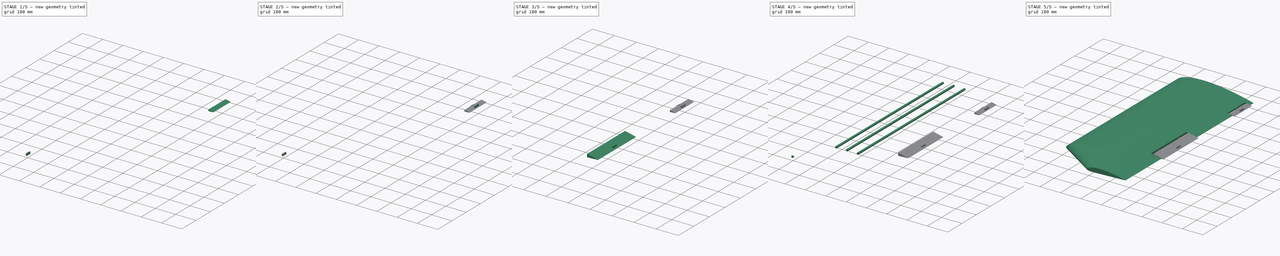
[diagram: build sequence overview — one tinted view per stage of 5, left to right]
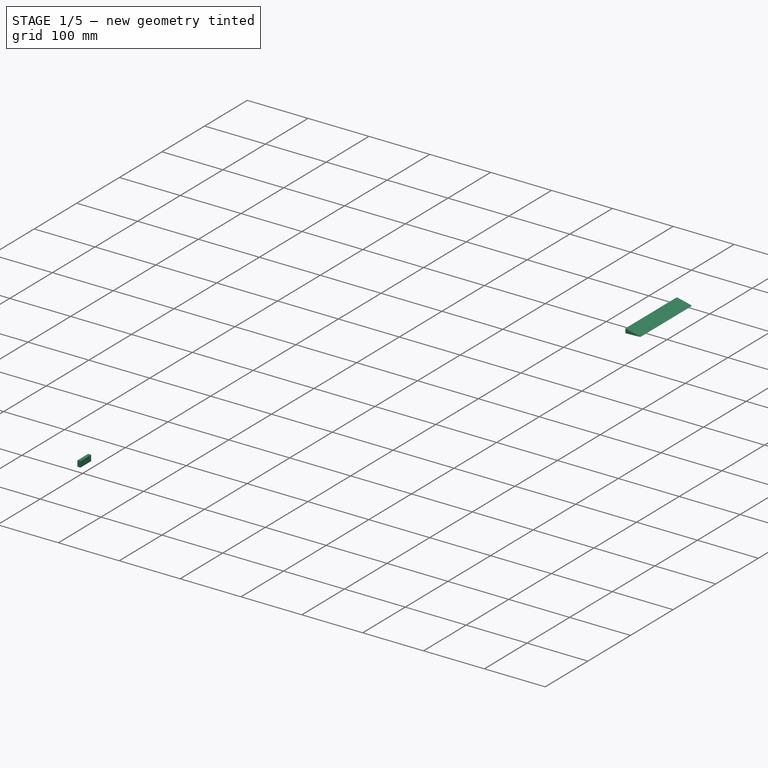
[diagram: stage 1 of 5 — iso view after this stage's code; geometry added in this stage tinted green]
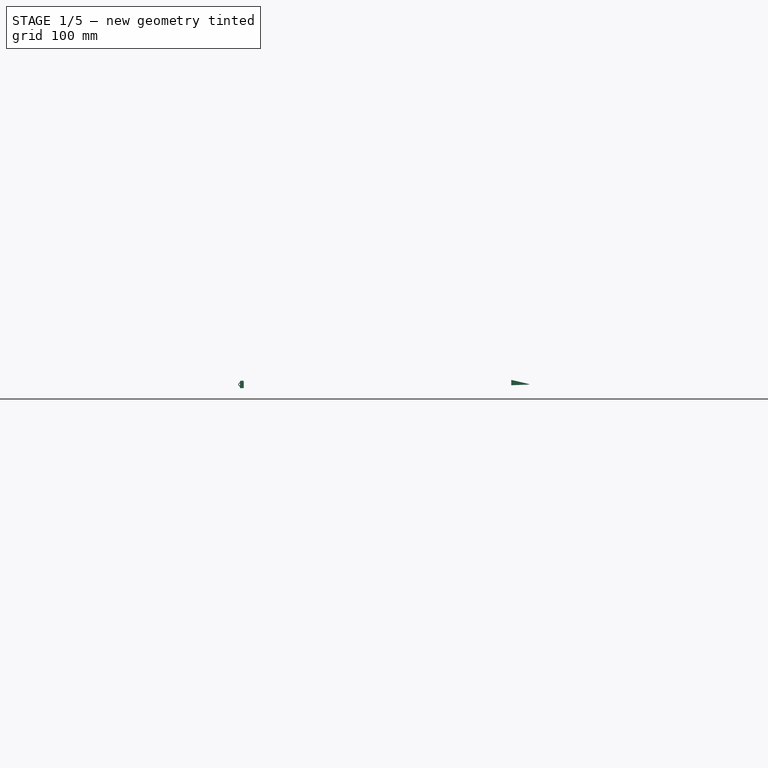
[diagram: stage 1 of 5 — front view after this stage's code; geometry added in this stage tinted green]
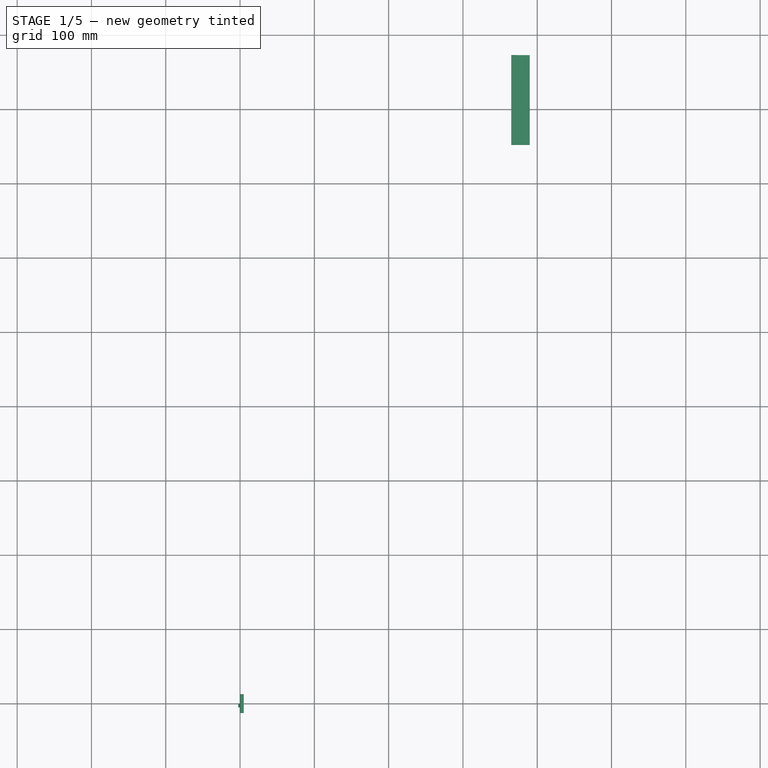
[diagram: stage 1 of 5 — top view after this stage's code; geometry added in this stage tinted green]
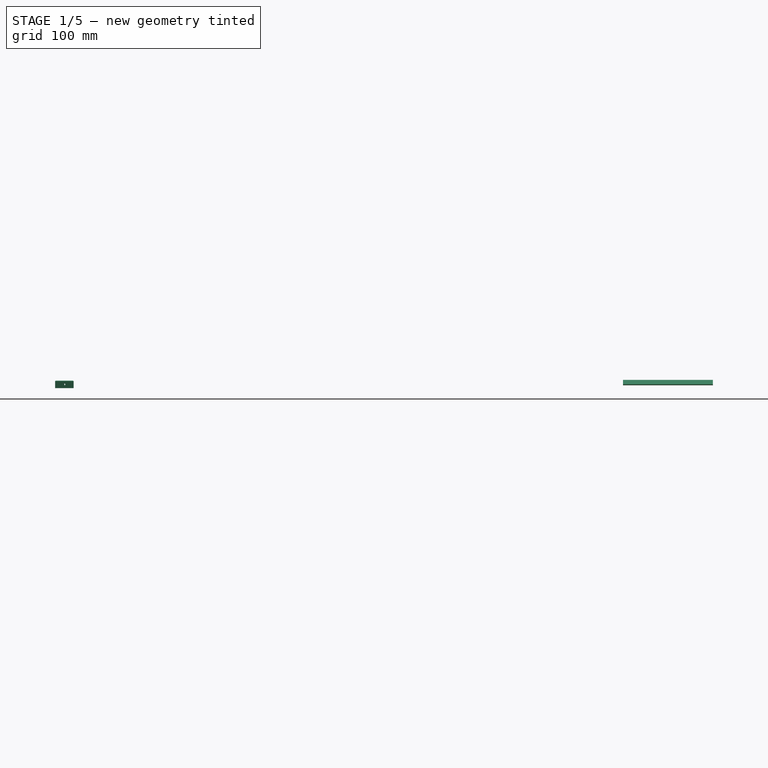
[diagram: stage 1 of 5 — right view after this stage's code; geometry added in this stage tinted green]
FCSTD DOCUMENT  (FreeCAD 1.0R39319 (Git))
Label: Unnamed
License: All rights reserved
LicenseURL: https://en.wikipedia.org/wiki/All_rights_reserved
objects: Sketcher::SketchObject×26, PartDesign::Body×19, PartDesign::Pad×13, PartDesign::Boolean×6, PartDesign::AdditiveLoft×3, PartDesign::AdditiveCylinder×3, PartDesign::Fillet×2
note: 146 computed .brp shape members not serialized (recipe doc carries the construction recipe); baked Part::Feature solids carry a one-line shape summary decoded from their .brp

FEATURE [Sketcher::SketchObject] Sketch015  label="flap_2"
  ArcFitTolerance = 1e-06
  FullyConstrained = false
  MakeInternals = false
  Placement = pos=(10,752,0) rot=(1,0,0;1.5708rad)
  sketch-geometry (14):
    g0: LineSegment StartX=357.2 StartY=5.55708 StartZ=0 EndX=364.8 EndY=3.80882 EndZ=0
    g1: LineSegment StartX=364.8 StartY=3.80882 StartZ=0 EndX=368.6 EndY=2.92098 EndZ=0
    g2: LineSegment StartX=368.6 StartY=2.92098 StartZ=0 EndX=372.4 EndY=2.02673 EndZ=0
    g3: LineSegment StartX=372.4 StartY=2.02673 StartZ=0 EndX=376.2 EndY=1.12822 EndZ=0
    g4: LineSegment StartX=376.2 StartY=1.12822 StartZ=0 EndX=380 EndY=0 EndZ=0
    g5: LineSegment StartX=357.2 StartY=-1.06506 StartZ=0 EndX=364.8 EndY=-0.785954 EndZ=0
    g6: LineSegment StartX=364.8 StartY=-0.785954 StartZ=0 EndX=368.6 EndY=-0.646418 EndZ=0
    g7: LineSegment StartX=368.6 StartY=-0.646418 StartZ=0 EndX=372.4 EndY=-0.506882 EndZ=0
    g8: LineSegment StartX=372.4 StartY=-0.506882 StartZ=0 EndX=376.2 EndY=-0.367308 EndZ=0
    g9: LineSegment StartX=376.2 StartY=-0.367308 StartZ=0 EndX=380 EndY=0 EndZ=0
    g10: GeomPoint X=380 Y=0 Z=0
    g11: LineSegment StartX=355.004 StartY=6.05036 StartZ=0 EndX=355.004 EndY=-1.14573 EndZ=0
    g12: LineSegment StartX=357.2 StartY=-1.06506 StartZ=0 EndX=355.004 EndY=-1.14573 EndZ=0
    g13: LineSegment StartX=357.2 StartY=5.55708 StartZ=0 EndX=355.004 EndY=6.05036 EndZ=0
  constraints (16):
    c: Coincident(g0,g1)
    c: Coincident(g1,g2)
    c: Coincident(g2,g3)
    c: Coincident(g3,g4)
    c: Coincident(g5,g6)
    c: Coincident(g6,g7)
    c: Coincident(g7,g8)
    c: Coincident(g8,g9)
    c: PointOnObject(g10,g-1)
    c: Coincident(g4,g10)
    c: Coincident(g4,g9)
    c: Vertical(g11)
    c: Coincident(g12,g5)
    c: Coincident(g12,g11)
    c: Coincident(g13,g0)
    c: Coincident(g13,g11)
FEATURE [PartDesign::AdditiveLoft] AdditiveLoft002
  Closed = false
  Placement = pos=(10,873,0) rot=(1,0,0;1.5708rad)
  Profile = -> Sketch013
  Refine = true
  Ruled = false
  Sections = -> [Sketch015]
  Suppressed = false
FEATURE [Sketcher::SketchObject] Sketch022
  ArcFitTolerance = 1e-06
  AttachmentOffset = pos=(0.02,0,0) rot=(0,0,1;0rad)
  AttachmentSupport = -> [XZ_Plane014]
  FullyConstrained = false
  MakeInternals = false
  MapMode = 5
  Placement = pos=(0.02,0,0) rot=(1,0,0;1.5708rad)
  sketch-geometry (12):
    g0: LineSegment StartX=0.683099 StartY=-4 StartZ=0 EndX=2.5 EndY=-4 EndZ=0
    g1: LineSegment StartX=2.5 StartY=-4 StartZ=0 EndX=2.5 EndY=4 EndZ=0
    g2: LineSegment StartX=2.5 StartY=4 StartZ=0 EndX=0.683099 EndY=4 EndZ=0
    g3: LineSegment StartX=-2.5 StartY=0.816901 StartZ=0 EndX=-2.5 EndY=-0.816901 EndZ=0
    g4: GeomPoint [constr] X=0 Y=0 Z=0
    g5: Circle CenterX=0 CenterY=0 CenterZ=0 NormalX=0 NormalY=0 NormalZ=1 AngleXU=0 Radius=1.5
    g6: ArcOfCircle [constr] CenterX=0.683099 CenterY=-0.816901 CenterZ=0 NormalX=0 NormalY=0 NormalZ=1 AngleXU=0 Radius=3.1831 StartAngle=3.14159 EndAngle=4.71239
    g7: GeomPoint [constr] X=-2.5 Y=-4 Z=0
    g8: LineSegment StartX=-2.5 StartY=-0.816901 StartZ=0 EndX=0.683099 EndY=-4 EndZ=0
    g9: ArcOfCircle [constr] CenterX=0.683099 CenterY=0.816901 CenterZ=0 NormalX=0 NormalY=0 NormalZ=1 AngleXU=0 Radius=3.1831 StartAngle=1.5708 EndAngle=3.14159
    g10: GeomPoint [constr] X=-2.5 Y=4 Z=0
    g11: LineSegment StartX=0.683099 StartY=4 StartZ=0 EndX=-2.5 EndY=0.816901 EndZ=0
  constraints (26):
    c: Coincident(g0,g1)
    c: Coincident(g1,g2)
    c: Horizontal(g0)
    c: Horizontal(g2)
    c: Vertical(g1)
    c: Vertical(g3)
    c: Symmetric(g2,g7,g4)
    c: Distance(g1,g7) = 5
    c: Distance(g7,g10) = 8
    c: Coincident(g4,g-1)
    c: Diameter(g5) = 3
    c: PointOnObject(g5,g-1)
    c: PointOnObject(g7,g0)
    c: PointOnObject(g7,g3)
    c: Tangent(g0,g6) = -1.5708
    c: Tangent(g3,g6) = -1.5708
    c: Coincident(g8,g0)
    c: Coincident(g8,g3)
    c: PointOnObject(g10,g2)
    c: PointOnObject(g10,g3)
    c: Tangent(g2,g9) = -1.5708
    c: Tangent(g3,g9) = -1.5708
    c: Coincident(g11,g2)
    c: Coincident(g11,g3)
    c: Distance(g9) = 5
    c: Distance(g6) = 5
FEATURE [PartDesign::Pad] Pad012
  Direction = (0,-1,2e-16)
  Length = 5
  Length2 = 10
  Placement = pos=(0,0,0) rot=(1,0,0;1.5708rad)
  Profile = -> Sketch022
  ReferenceAxis = -> Sketch022 [N_Axis]
  Refine = true
  Suppressed = false
  Type = 0
FEATURE [PartDesign::Body] Body014
  AllowCompound = false
  Group = -> [Sketch022,Pad012]
  Origin = -> Origin014
  Placement = pos=(362.5,817.5,2.5) rot=(0,0,1;0rad)
  Tip = -> Pad012
FEATURE [Sketcher::SketchObject] Sketch023
  ArcFitTolerance = 1e-06
  AttachmentOffset = pos=(0.02,0,0) rot=(0,0,1;0rad)
  AttachmentSupport = -> [XZ_Plane015]
  FullyConstrained = false
  MakeInternals = false
  MapMode = 5
  Placement = pos=(0.02,0,0) rot=(1,0,0;1.5708rad)
  sketch-geometry (12):
    g0: LineSegment StartX=0.683099 StartY=-4 StartZ=0 EndX=2.5 EndY=-4 EndZ=0
    g1: LineSegment StartX=2.5 StartY=-4 StartZ=0 EndX=2.5 EndY=4 EndZ=0
    g2: LineSegment StartX=2.5 StartY=4 StartZ=0 EndX=0.683099 EndY=4 EndZ=0
    g3: LineSegment StartX=-2.5 StartY=0.816901 StartZ=0 EndX=-2.5 EndY=-0.816901 EndZ=0
    g4: GeomPoint [constr] X=0 Y=0 Z=0
    g5: Circle CenterX=0 CenterY=0 CenterZ=0 NormalX=0 NormalY=0 NormalZ=1 AngleXU=0 Radius=1.5
    g6: ArcOfCircle [constr] CenterX=0.683099 CenterY=-0.816901 CenterZ=0 NormalX=0 NormalY=0 NormalZ=1 AngleXU=0 Radius=3.1831 StartAngle=3.14159 EndAngle=4.71239
    g7: GeomPoint [constr] X=-2.5 Y=-4 Z=0
    g8: LineSegment StartX=-2.5 StartY=-0.816901 StartZ=0 EndX=0.683099 EndY=-4 EndZ=0
    g9: ArcOfCircle [constr] CenterX=0.683099 CenterY=0.816901 CenterZ=0 NormalX=0 NormalY=0 NormalZ=1 AngleXU=0 Radius=3.1831 StartAngle=1.5708 EndAngle=3.14159
    g10: GeomPoint [constr] X=-2.5 Y=4 Z=0
    g11: LineSegment StartX=0.683099 StartY=4 StartZ=0 EndX=-2.5 EndY=0.816901 EndZ=0
  constraints (26):
    c: Coincident(g0,g1)
    c: Coincident(g1,g2)
    c: Horizontal(g0)
    c: Horizontal(g2)
    c: Vertical(g1)
    c: Vertical(g3)
    c: Symmetric(g2,g7,g4)
    c: Distance(g1,g7) = 5
    c: Distance(g7,g10) = 8
    c: Coincident(g4,g-1)
    c: Diameter(g5) = 3
    c: PointOnObject(g5,g-1)
    c: PointOnObject(g7,g0)
    c: PointOnObject(g7,g3)
    c: Tangent(g0,g6) = -1.5708
    c: Tangent(g3,g6) = -1.5708
    c: Coincident(g8,g0)
    c: Coincident(g8,g3)
    c: PointOnObject(g10,g2)
    c: PointOnObject(g10,g3)
    c: Tangent(g2,g9) = -1.5708
    c: Tangent(g3,g9) = -1.5708
    c: Coincident(g11,g2)
    c: Coincident(g11,g3)
    c: Distance(g9) = 5
    c: Distance(g6) = 5
FEATURE [PartDesign::Pad] Pad009
  Direction = (0,-1,2e-16)
  Length = 5
  Length2 = 10
  Placement = pos=(0,0,0) rot=(1,0,0;1.5708rad)
  Profile = -> Sketch023
  ReferenceAxis = -> Sketch023 [N_Axis]
  Refine = true
  Suppressed = false
  Type = 0
FEATURE [PartDesign::Body] Body017  label="hinge_aileron"
  AllowCompound = false
  Group = -> [Sketch025,Pad014,Fillet]
  Origin = -> Origin017
  Placement = pos=(375,375,5) rot=(0,0,1;0rad)
  Tip = -> Fillet
FEATURE [Sketcher::SketchObject] Sketch026
  ArcFitTolerance = 1e-06
  AttachmentSupport = -> [YZ_Plane018]
  FullyConstrained = true
  MakeInternals = false
  MapMode = 5
  Placement = pos=(0,0,0) rot=(0.57735,0.57735,0.57735;2.0944rad)
  sketch-geometry (6):
    g0: LineSegment StartX=-12.5 StartY=-5 StartZ=0 EndX=12.5 EndY=-5 EndZ=0
    g1: LineSegment StartX=12.5 StartY=-5 StartZ=0 EndX=12.5 EndY=5 EndZ=0
    g2: LineSegment StartX=12.5 StartY=5 StartZ=0 EndX=-12.5 EndY=5 EndZ=0
    g3: LineSegment StartX=-12.5 StartY=5 StartZ=0 EndX=-12.5 EndY=-5 EndZ=0
    g4: GeomPoint [constr] X=0 Y=0 Z=0
    g5: Circle CenterX=0 CenterY=0 CenterZ=0 NormalX=0 NormalY=0 NormalZ=1 AngleXU=0 Radius=1.25
  constraints (14):
    c: Coincident(g0,g1)
    c: Coincident(g1,g2)
    c: Coincident(g2,g3)
    c: Coincident(g3,g0)
    c: Horizontal(g0)
    c: Horizontal(g2)
    c: Vertical(g1)
    c: Vertical(g3)
    c: Symmetric(g2,g0,g4)
    c: Distance(g1,g3) = 25
    c: Distance(g0,g2) = 10
    c: Coincident(g4,g-1)
    c: Diameter(g5) = 2.5
    c: Coincident(g5,g4)
FEATURE [PartDesign::Pad] Pad015
  Direction = (1,0,0)
  Length = 5
  Length2 = 10
  Placement = pos=(0,0,0) rot=(1,1,1;2.0944rad)
  Profile = -> Sketch026
  ReferenceAxis = -> Sketch026 [N_Axis]
  Refine = true
  Suppressed = false
  Type = 0
FEATURE [PartDesign::Fillet] Fillet001
  Base = -> Pad015 [Face3]
  BaseFeature = -> Pad015
  Placement = pos=(0,0,0) rot=(1,1,1;2.0944rad)
  Radius = 1
  Refine = true
  SupportTransform = false
  Suppressed = false
  UseAllEdges = false
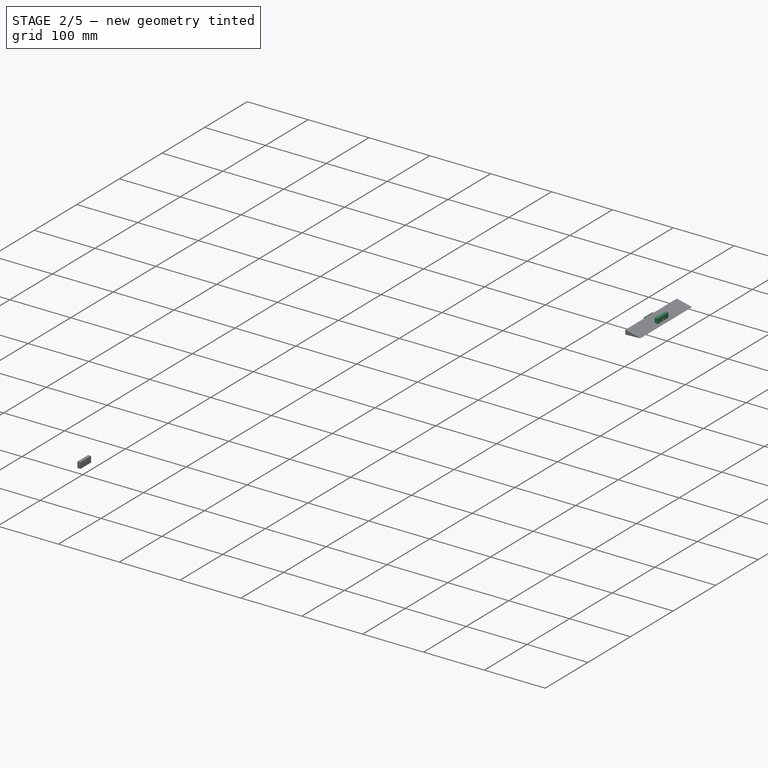
[diagram: stage 2 of 5 — iso view after this stage's code; geometry added in this stage tinted green]
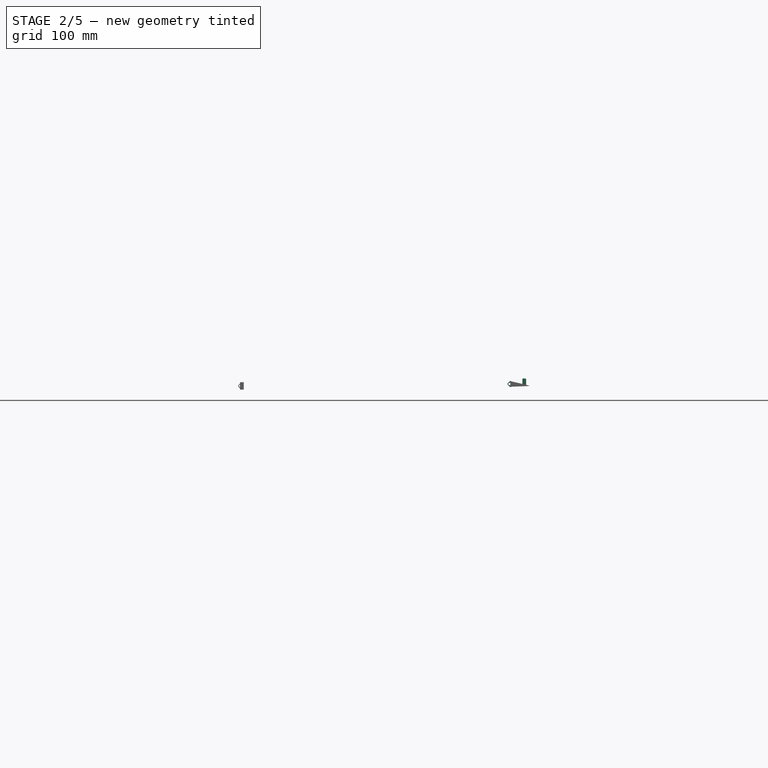
[diagram: stage 2 of 5 — front view after this stage's code; geometry added in this stage tinted green]
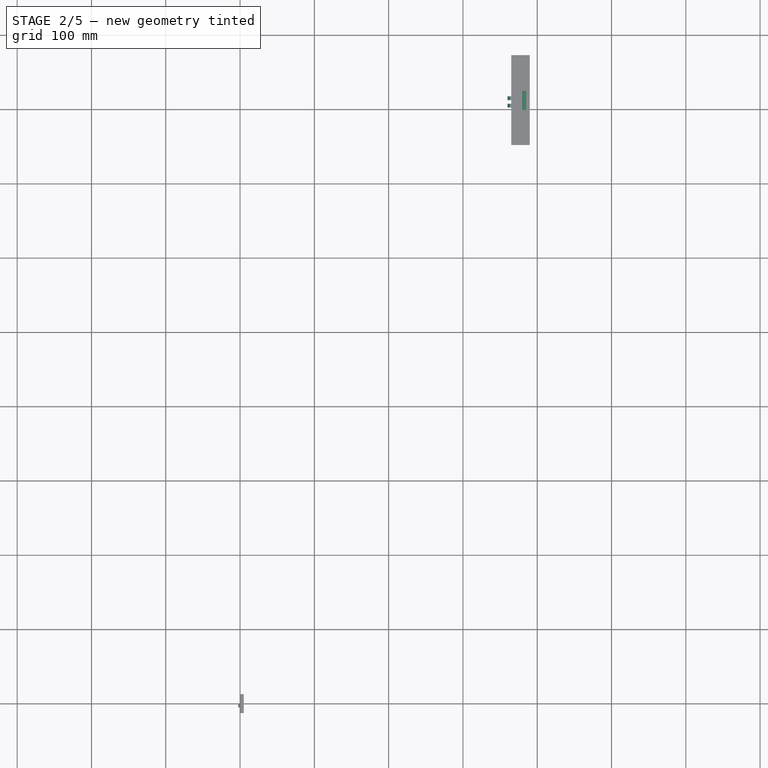
[diagram: stage 2 of 5 — top view after this stage's code; geometry added in this stage tinted green]
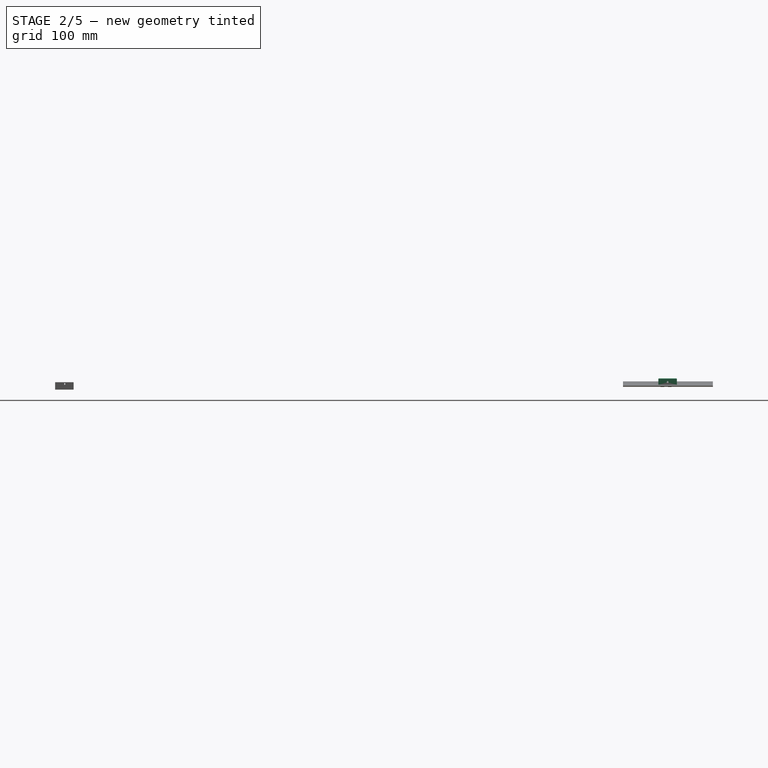
[diagram: stage 2 of 5 — right view after this stage's code; geometry added in this stage tinted green]
FEATURE [PartDesign::Body] Body012
  AllowCompound = false
  Group = -> [Sketch020,Pad005]
  Origin = -> Origin012
  Placement = pos=(337.5,453,4.5) rot=(0,0,1;0rad)
  Tip = -> Pad005
FEATURE [Sketcher::SketchObject] Sketch021
  ArcFitTolerance = 1e-06
  AttachmentOffset = pos=(0.02,0,0) rot=(0,0,1;0rad)
  AttachmentSupport = -> [XZ_Plane013]
  FullyConstrained = false
  MakeInternals = false
  MapMode = 5
  Placement = pos=(0.02,0,0) rot=(1,0,0;1.5708rad)
  sketch-geometry (12):
    g0: LineSegment StartX=0.683099 StartY=-4 StartZ=0 EndX=2.5 EndY=-4 EndZ=0
    g1: LineSegment StartX=2.5 StartY=-4 StartZ=0 EndX=2.5 EndY=4 EndZ=0
    g2: LineSegment StartX=2.5 StartY=4 StartZ=0 EndX=0.683099 EndY=4 EndZ=0
    g3: LineSegment StartX=-2.5 StartY=0.816901 StartZ=0 EndX=-2.5 EndY=-0.816901 EndZ=0
    g4: GeomPoint [constr] X=0 Y=0 Z=0
    g5: Circle CenterX=0 CenterY=0 CenterZ=0 NormalX=0 NormalY=0 NormalZ=1 AngleXU=0 Radius=1.5
    g6: ArcOfCircle [constr] CenterX=0.683099 CenterY=-0.816901 CenterZ=0 NormalX=0 NormalY=0 NormalZ=1 AngleXU=0 Radius=3.1831 StartAngle=3.14159 EndAngle=4.71239
    g7: GeomPoint [constr] X=-2.5 Y=-4 Z=0
    g8: LineSegment StartX=-2.5 StartY=-0.816901 StartZ=0 EndX=0.683099 EndY=-4 EndZ=0
    g9: ArcOfCircle [constr] CenterX=0.683099 CenterY=0.816901 CenterZ=0 NormalX=0 NormalY=0 NormalZ=1 AngleXU=0 Radius=3.1831 StartAngle=1.5708 EndAngle=3.14159
    g10: GeomPoint [constr] X=-2.5 Y=4 Z=0
    g11: LineSegment StartX=0.683099 StartY=4 StartZ=0 EndX=-2.5 EndY=0.816901 EndZ=0
  constraints (26):
    c: Coincident(g0,g1)
    c: Coincident(g1,g2)
    c: Horizontal(g0)
    c: Horizontal(g2)
    c: Vertical(g1)
    c: Vertical(g3)
    c: Symmetric(g2,g7,g4)
    c: Distance(g1,g7) = 5
    c: Distance(g7,g10) = 8
    c: Coincident(g4,g-1)
    c: Diameter(g5) = 3
    c: PointOnObject(g5,g-1)
    c: PointOnObject(g7,g0)
    c: PointOnObject(g7,g3)
    c: Tangent(g0,g6) = -1.5708
    c: Tangent(g3,g6) = -1.5708
    c: Coincident(g8,g0)
    c: Coincident(g8,g3)
    c: PointOnObject(g10,g2)
    c: PointOnObject(g10,g3)
    c: Tangent(g2,g9) = -1.5708
    c: Tangent(g3,g9) = -1.5708
    c: Coincident(g11,g2)
    c: Coincident(g11,g3)
    c: Distance(g9) = 5
    c: Distance(g6) = 5
FEATURE [PartDesign::Pad] Pad007
  Direction = (0,-1,2e-16)
  Length = 5
  Length2 = 10
  Placement = pos=(0,0,0) rot=(1,0,0;1.5708rad)
  Profile = -> Sketch021
  ReferenceAxis = -> Sketch021 [N_Axis]
  Refine = true
  Suppressed = false
  Type = 0
FEATURE [PartDesign::Body] Body013
  AllowCompound = false
  Group = -> [Sketch021,Pad007]
  Origin = -> Origin013
  Placement = pos=(337.5,443,4.5) rot=(0,0,1;0rad)
  Tip = -> Pad007
FEATURE [PartDesign::Pad] Pad008
  Direction = (0,-1,2e-16)
  Length = 5
  Length2 = 10
  Placement = pos=(0,0,0) rot=(1,0,0;1.5708rad)
  Profile = -> Sketch017
  ReferenceAxis = -> Sketch017 [N_Axis]
  Refine = true
  Suppressed = false
  Type = 0
FEATURE [PartDesign::Body] Body
  AllowCompound = false
  Group = -> [Sketch010,Sketch001,Sketch002,Sketch003,Sketch004,Sketch005,Sketch006,Sketch007,Sketch008,AdditiveLoft,Boolean,Boolean001]
  Origin = -> Origin
  Tip = -> Boolean001
FEATURE [PartDesign::Boolean] Boolean003
  BaseFeature = -> AdditiveLoft002
  Group = -> [Body015,Body014]
  Refine = true
  Suppressed = false
  Type = 0
  UsePlacement = true
FEATURE [Sketcher::SketchObject] Sketch025
  ArcFitTolerance = 1e-06
  AttachmentSupport = -> [YZ_Plane017]
  FullyConstrained = false
  MakeInternals = false
  MapMode = 5
  Placement = pos=(0,0,0) rot=(0.57735,0.57735,0.57735;2.0944rad)
  sketch-geometry (6):
    g0: LineSegment StartX=-12.5 StartY=-5 StartZ=0 EndX=12.5 EndY=-5 EndZ=0
    g1: LineSegment StartX=12.5 StartY=-5 StartZ=0 EndX=12.5 EndY=5 EndZ=0
    g2: LineSegment StartX=12.5 StartY=5 StartZ=0 EndX=-12.5 EndY=5 EndZ=0
    g3: LineSegment StartX=-12.5 StartY=5 StartZ=0 EndX=-12.5 EndY=-5 EndZ=0
    g4: GeomPoint [constr] X=0 Y=0 Z=0
    g5: Circle CenterX=0 CenterY=2.49899 CenterZ=0 NormalX=0 NormalY=0 NormalZ=1 AngleXU=0 Radius=1.25
  constraints (14):
    c: Coincident(g0,g1)
    c: Coincident(g1,g2)
    c: Coincident(g2,g3)
    c: Coincident(g3,g0)
    c: Horizontal(g0)
    c: Horizontal(g2)
    c: Vertical(g1)
    c: Vertical(g3)
    c: Symmetric(g2,g0,g4)
    c: Distance(g1,g3) = 25
    c: Distance(g0,g2) = 10
    c: Coincident(g4,g-1)
    c: Diameter(g5) = 2.5
    c: PointOnObject(g5,g-2)
FEATURE [PartDesign::Pad] Pad014
  Direction = (1,0,0)
  Length = 5
  Length2 = 10
  Placement = pos=(0,0,0) rot=(1,1,1;2.0944rad)
  Profile = -> Sketch025
  ReferenceAxis = -> Sketch025 [N_Axis]
  Refine = true
  Suppressed = false
  Type = 0
FEATURE [PartDesign::Fillet] Fillet
  Base = -> Pad014 [Face3]
  BaseFeature = -> Pad014
  Placement = pos=(0,0,0) rot=(1,1,1;2.0944rad)
  Radius = 0.5
  Refine = true
  SupportTransform = false
  Suppressed = false
  UseAllEdges = false
FEATURE [PartDesign::Body] Body003  label="aileron"
  AllowCompound = false
  Group = -> [Sketch012,Sketch014,AdditiveLoft001,Boolean002,Boolean004]
  Origin = -> Origin003
  Tip = -> Boolean004
FEATURE [PartDesign::Boolean] Boolean005
  BaseFeature = -> Boolean003
  Group = -> [Body018]
  Refine = true
  Suppressed = false
  Type = 0
  UsePlacement = true
FEATURE [PartDesign::Body] Body004  label="flap"
  AllowCompound = false
  Group = -> [Sketch013,Sketch015,AdditiveLoft002,Boolean003,Boolean005]
  Origin = -> Origin004
  Tip = -> Boolean005
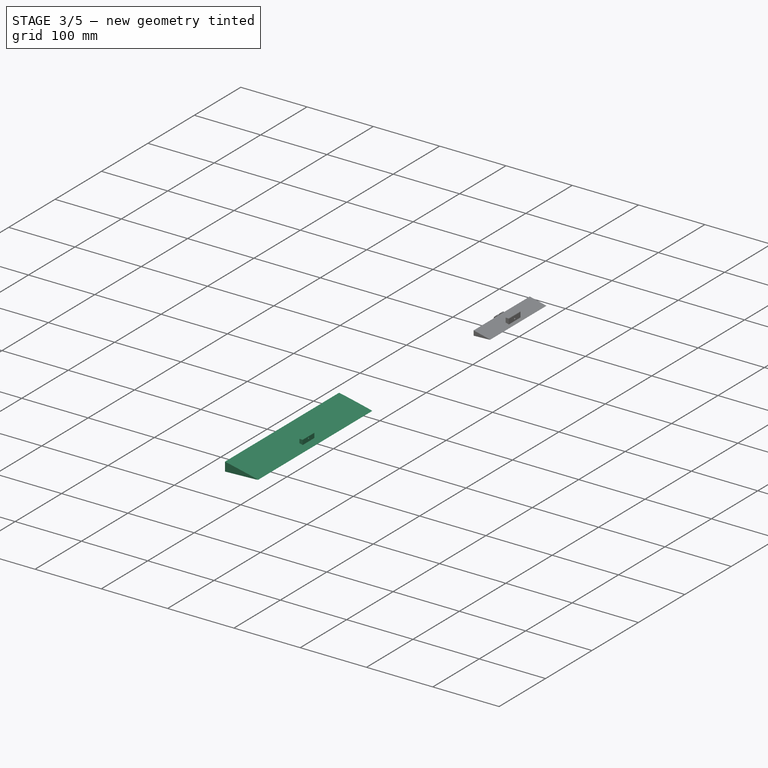
[diagram: stage 3 of 5 — iso view after this stage's code; geometry added in this stage tinted green]
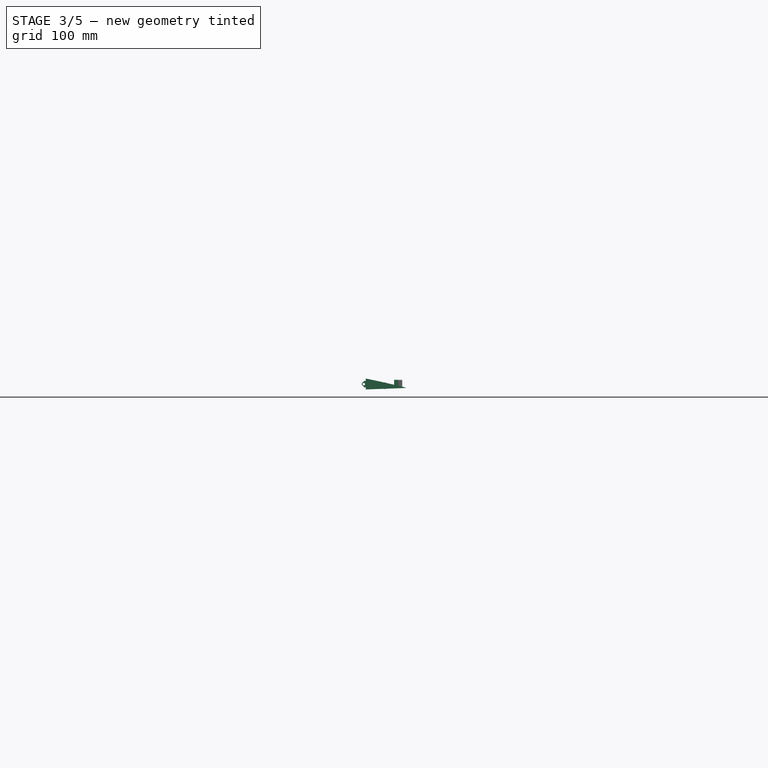
[diagram: stage 3 of 5 — front view after this stage's code; geometry added in this stage tinted green]
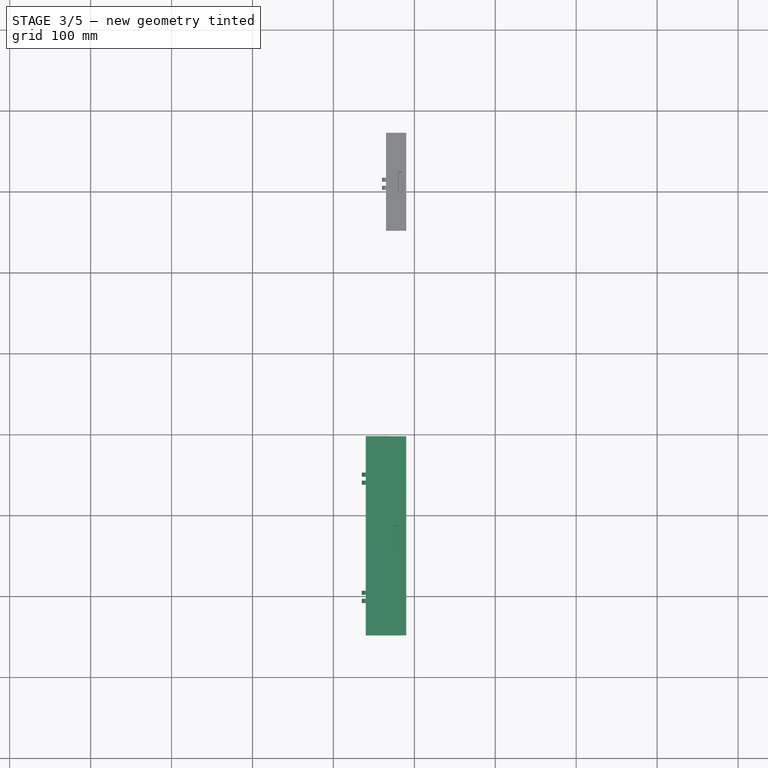
[diagram: stage 3 of 5 — top view after this stage's code; geometry added in this stage tinted green]
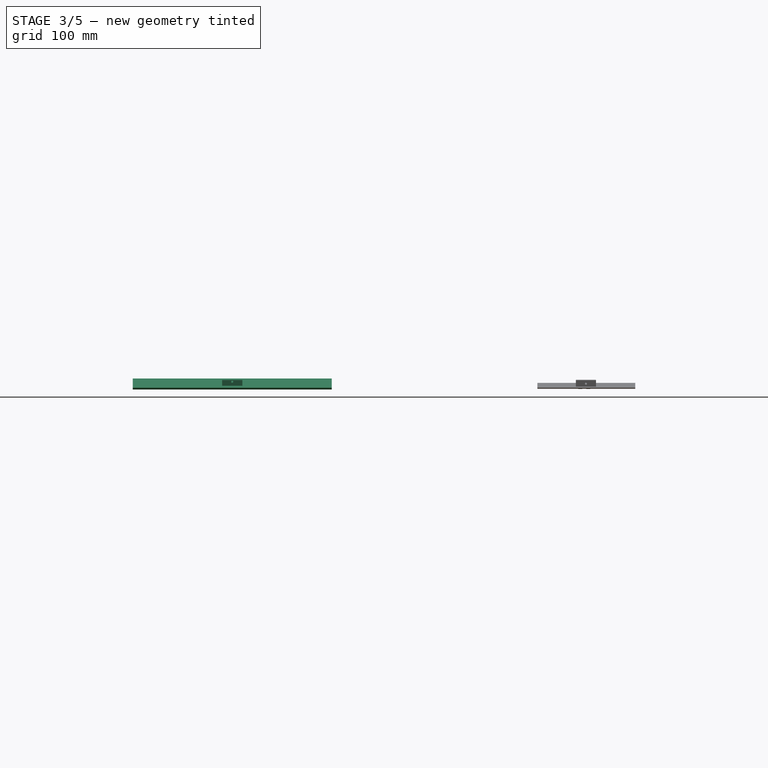
[diagram: stage 3 of 5 — right view after this stage's code; geometry added in this stage tinted green]
FEATURE [PartDesign::Body] Body001  label="Aileron"
  AllowCompound = false
  Group = -> [Sketch,Pad]
  Origin = -> Origin001
  Tip = -> Pad
FEATURE [Sketcher::SketchObject] Sketch012  label="aileron_1"
  ArcFitTolerance = 1e-06
  FullyConstrained = false
  MakeInternals = false
  Placement = pos=(10,498,0) rot=(1,0,0;1.5708rad)
  sketch-geometry (20):
    g0: LineSegment StartX=334.393 StartY=10.5261 StartZ=0 EndX=342 EndY=8.93095 EndZ=0
    g1: LineSegment StartX=342 StartY=8.93095 StartZ=0 EndX=349.6 EndY=7.26393 EndZ=0
    g2: LineSegment StartX=349.6 StartY=7.26393 StartZ=0 EndX=357.2 EndY=5.55708 EndZ=0
    g3: LineSegment StartX=357.2 StartY=5.55708 StartZ=0 EndX=364.8 EndY=3.80882 EndZ=0
    g4: LineSegment StartX=364.8 StartY=3.80882 StartZ=0 EndX=368.6 EndY=2.92098 EndZ=0
    g5: LineSegment StartX=368.6 StartY=2.92098 StartZ=0 EndX=372.4 EndY=2.02673 EndZ=0
    g6: LineSegment StartX=372.4 StartY=2.02673 StartZ=0 EndX=376.2 EndY=1.12822 EndZ=0
    g7: LineSegment StartX=376.2 StartY=1.12822 StartZ=0 EndX=380 EndY=0 EndZ=0
    g8: LineSegment StartX=334.4 StartY=-1.90239 StartZ=0 EndX=342 EndY=-1.62328 EndZ=0
    g9: LineSegment StartX=342 StartY=-1.62328 StartZ=0 EndX=349.6 EndY=-1.34417 EndZ=0
    g10: LineSegment StartX=349.6 StartY=-1.34417 StartZ=0 EndX=357.2 EndY=-1.06506 EndZ=0
    g11: LineSegment StartX=357.2 StartY=-1.06506 StartZ=0 EndX=364.8 EndY=-0.785954 EndZ=0
    g12: LineSegment StartX=364.8 StartY=-0.785954 StartZ=0 EndX=368.6 EndY=-0.646418 EndZ=0
    g13: LineSegment StartX=368.6 StartY=-0.646418 StartZ=0 EndX=372.4 EndY=-0.506882 EndZ=0
    g14: LineSegment StartX=372.4 StartY=-0.506882 StartZ=0 EndX=376.2 EndY=-0.367308 EndZ=0
    g15: LineSegment StartX=376.2 StartY=-0.367308 StartZ=0 EndX=380 EndY=0 EndZ=0
    g16: GeomPoint X=380 Y=0 Z=0
    g17: LineSegment StartX=330.016 StartY=-2.06341 StartZ=0 EndX=330.016 EndY=11.4347 EndZ=0
    g18: LineSegment StartX=334.4 StartY=-1.90239 StartZ=0 EndX=330.016 EndY=-2.06341 EndZ=0
    g19: LineSegment StartX=334.393 StartY=10.5261 StartZ=0 EndX=330.016 EndY=11.4347 EndZ=0
  constraints (22):
    c: Coincident(g0,g1)
    c: Coincident(g1,g2)
    c: Coincident(g2,g3)
    c: Coincident(g3,g4)
    c: Coincident(g4,g5)
    c: Coincident(g5,g6)
    c: Coincident(g6,g7)
    c: Coincident(g8,g9)
    c: Coincident(g9,g10)
    c: Coincident(g10,g11)
    c: Coincident(g11,g12)
    c: Coincident(g12,g13)
    c: Coincident(g13,g14)
    c: Coincident(g14,g15)
    c: PointOnObject(g16,g-1)
    c: Coincident(g7,g16)
    c: Coincident(g7,g15)
    c: Vertical(g17)
    c: Coincident(g18,g8)
    c: Coincident(g18,g17)
    c: Coincident(g19,g0)
    c: Coincident(g19,g17)
FEATURE [Sketcher::SketchObject] Sketch013  label="flap_1"
  ArcFitTolerance = 1e-06
  FullyConstrained = false
  MakeInternals = false
  Placement = pos=(10,873,0) rot=(1,0,0;1.5708rad)
  sketch-geometry (14):
    g0: LineSegment StartX=357.2 StartY=5.55708 StartZ=0 EndX=364.8 EndY=3.80882 EndZ=0
    g1: LineSegment StartX=364.8 StartY=3.80882 StartZ=0 EndX=368.6 EndY=2.92098 EndZ=0
    g2: LineSegment StartX=368.6 StartY=2.92098 StartZ=0 EndX=372.4 EndY=2.02673 EndZ=0
    g3: LineSegment StartX=372.4 StartY=2.02673 StartZ=0 EndX=376.2 EndY=1.12822 EndZ=0
    g4: LineSegment StartX=376.2 StartY=1.12822 StartZ=0 EndX=380 EndY=0 EndZ=0
    g5: LineSegment StartX=357.2 StartY=-1.06506 StartZ=0 EndX=364.8 EndY=-0.785954 EndZ=0
    g6: LineSegment StartX=364.8 StartY=-0.785954 StartZ=0 EndX=368.6 EndY=-0.646418 EndZ=0
    g7: LineSegment StartX=368.6 StartY=-0.646418 StartZ=0 EndX=372.4 EndY=-0.506882 EndZ=0
    g8: LineSegment StartX=372.4 StartY=-0.506882 StartZ=0 EndX=376.2 EndY=-0.367308 EndZ=0
    g9: LineSegment StartX=376.2 StartY=-0.367308 StartZ=0 EndX=380 EndY=0 EndZ=0
    g10: GeomPoint X=380 Y=0 Z=0
    g11: LineSegment StartX=355.004 StartY=6.05036 StartZ=0 EndX=355.004 EndY=-1.14573 EndZ=0
    g12: LineSegment StartX=357.2 StartY=-1.06506 StartZ=0 EndX=355.004 EndY=-1.14573 EndZ=0
    g13: LineSegment StartX=357.2 StartY=5.55708 StartZ=0 EndX=355.004 EndY=6.05036 EndZ=0
  constraints (16):
    c: Coincident(g0,g1)
    c: Coincident(g1,g2)
    c: Coincident(g2,g3)
    c: Coincident(g3,g4)
    c: Coincident(g5,g6)
    c: Coincident(g6,g7)
    c: Coincident(g7,g8)
    c: Coincident(g8,g9)
    c: PointOnObject(g10,g-1)
    c: Coincident(g4,g10)
    c: Coincident(g4,g9)
    c: Vertical(g11)
    c: Coincident(g12,g5)
    c: Coincident(g12,g11)
    c: Coincident(g13,g0)
    c: Coincident(g13,g11)
FEATURE [Sketcher::SketchObject] Sketch014  label="aileron_2"
  ArcFitTolerance = 1e-06
  FullyConstrained = false
  MakeInternals = false
  Placement = pos=(10,252,0) rot=(1,0,0;1.5708rad)
  sketch-geometry (20):
    g0: LineSegment StartX=334.393 StartY=10.5261 StartZ=0 EndX=342 EndY=8.93095 EndZ=0
    g1: LineSegment StartX=342 StartY=8.93095 StartZ=0 EndX=349.6 EndY=7.26393 EndZ=0
    g2: LineSegment StartX=349.6 StartY=7.26393 StartZ=0 EndX=357.2 EndY=5.55708 EndZ=0
    g3: LineSegment StartX=357.2 StartY=5.55708 StartZ=0 EndX=364.8 EndY=3.80882 EndZ=0
    g4: LineSegment StartX=364.8 StartY=3.80882 StartZ=0 EndX=368.6 EndY=2.92098 EndZ=0
    g5: LineSegment StartX=368.6 StartY=2.92098 StartZ=0 EndX=372.4 EndY=2.02673 EndZ=0
    g6: LineSegment StartX=372.4 StartY=2.02673 StartZ=0 EndX=376.2 EndY=1.12822 EndZ=0
    g7: LineSegment StartX=376.2 StartY=1.12822 StartZ=0 EndX=380 EndY=0 EndZ=0
    g8: LineSegment StartX=334.4 StartY=-1.90239 StartZ=0 EndX=342 EndY=-1.62328 EndZ=0
    g9: LineSegment StartX=342 StartY=-1.62328 StartZ=0 EndX=349.6 EndY=-1.34417 EndZ=0
    g10: LineSegment StartX=349.6 StartY=-1.34417 StartZ=0 EndX=357.2 EndY=-1.06506 EndZ=0
    g11: LineSegment StartX=357.2 StartY=-1.06506 StartZ=0 EndX=364.8 EndY=-0.785954 EndZ=0
    g12: LineSegment StartX=364.8 StartY=-0.785954 StartZ=0 EndX=368.6 EndY=-0.646418 EndZ=0
    g13: LineSegment StartX=368.6 StartY=-0.646418 StartZ=0 EndX=372.4 EndY=-0.506882 EndZ=0
    g14: LineSegment StartX=372.4 StartY=-0.506882 StartZ=0 EndX=376.2 EndY=-0.367308 EndZ=0
    g15: LineSegment StartX=376.2 StartY=-0.367308 StartZ=0 EndX=380 EndY=0 EndZ=0
    g16: GeomPoint X=380 Y=0 Z=0
    g17: LineSegment StartX=330.016 StartY=-2.06341 StartZ=0 EndX=330.016 EndY=11.4347 EndZ=0
    g18: LineSegment StartX=334.4 StartY=-1.90239 StartZ=0 EndX=330.016 EndY=-2.06341 EndZ=0
    g19: LineSegment StartX=334.393 StartY=10.5261 StartZ=0 EndX=330.016 EndY=11.4347 EndZ=0
  constraints (22):
    c: Coincident(g0,g1)
    c: Coincident(g1,g2)
    c: Coincident(g2,g3)
    c: Coincident(g3,g4)
    c: Coincident(g4,g5)
    c: Coincident(g5,g6)
    c: Coincident(g6,g7)
    c: Coincident(g8,g9)
    c: Coincident(g9,g10)
    c: Coincident(g10,g11)
    c: Coincident(g11,g12)
    c: Coincident(g12,g13)
    c: Coincident(g13,g14)
    c: Coincident(g14,g15)
    c: PointOnObject(g16,g-1)
    c: Coincident(g7,g16)
    c: Coincident(g7,g15)
    c: Vertical(g17)
    c: Coincident(g18,g8)
    c: Coincident(g18,g17)
    c: Coincident(g19,g0)
    c: Coincident(g19,g17)
FEATURE [PartDesign::AdditiveLoft] AdditiveLoft001
  Closed = false
  Placement = pos=(10,498,0) rot=(1,0,0;1.5708rad)
  Profile = -> Sketch012
  Refine = true
  Ruled = false
  Sections = -> [Sketch014]
  Suppressed = false
FEATURE [PartDesign::Body] Body008  label="wing_body1"
  AllowCompound = false
  Group = -> [Sketch016,Pad003]
  Origin = -> Origin008
  Placement = pos=(335,302,4.5) rot=(0,0,1;0rad)
  Tip = -> Pad003
FEATURE [Sketcher::SketchObject] Sketch018
  ArcFitTolerance = 1e-06
  AttachmentOffset = pos=(0.02,0,0) rot=(0,0,1;0rad)
  AttachmentSupport = -> [XZ_Plane010]
  FullyConstrained = false
  MakeInternals = false
  MapMode = 5
  Placement = pos=(0.02,0,0) rot=(1,0,0;1.5708rad)
  sketch-geometry (12):
    g0: LineSegment StartX=0.683099 StartY=-4 StartZ=0 EndX=2.5 EndY=-4 EndZ=0
    g1: LineSegment StartX=2.5 StartY=-4 StartZ=0 EndX=2.5 EndY=4 EndZ=0
    g2: LineSegment StartX=2.5 StartY=4 StartZ=0 EndX=0.683099 EndY=4 EndZ=0
    g3: LineSegment StartX=-2.5 StartY=0.816901 StartZ=0 EndX=-2.5 EndY=-0.816901 EndZ=0
    g4: GeomPoint [constr] X=0 Y=0 Z=0
    g5: Circle CenterX=0 CenterY=0 CenterZ=0 NormalX=0 NormalY=0 NormalZ=1 AngleXU=0 Radius=1.5
    g6: ArcOfCircle [constr] CenterX=0.683099 CenterY=-0.816901 CenterZ=0 NormalX=0 NormalY=0 NormalZ=1 AngleXU=0 Radius=3.1831 StartAngle=3.14159 EndAngle=4.71239
    g7: GeomPoint [constr] X=-2.5 Y=-4 Z=0
    g8: LineSegment StartX=-2.5 StartY=-0.816901 StartZ=0 EndX=0.683099 EndY=-4 EndZ=0
    g9: ArcOfCircle [constr] CenterX=0.683099 CenterY=0.816901 CenterZ=0 NormalX=0 NormalY=0 NormalZ=1 AngleXU=0 Radius=3.1831 StartAngle=1.5708 EndAngle=3.14159
    g10: GeomPoint [constr] X=-2.5 Y=4 Z=0
    g11: LineSegment StartX=0.683099 StartY=4 StartZ=0 EndX=-2.5 EndY=0.816901 EndZ=0
  constraints (26):
    c: Coincident(g0,g1)
    c: Coincident(g1,g2)
    c: Horizontal(g0)
    c: Horizontal(g2)
    c: Vertical(g1)
    c: Vertical(g3)
    c: Symmetric(g2,g7,g4)
    c: Distance(g1,g7) = 5
    c: Distance(g7,g10) = 8
    c: Coincident(g4,g-1)
    c: Diameter(g5) = 3
    c: PointOnObject(g5,g-1)
    c: PointOnObject(g7,g0)
    c: PointOnObject(g7,g3)
    c: Tangent(g0,g6) = -1.5708
    c: Tangent(g3,g6) = -1.5708
    c: Coincident(g8,g0)
    c: Coincident(g8,g3)
    c: PointOnObject(g10,g2)
    c: PointOnObject(g10,g3)
    c: Tangent(g2,g9) = -1.5708
    c: Tangent(g3,g9) = -1.5708
    c: Coincident(g11,g2)
    c: Coincident(g11,g3)
    c: Distance(g9) = 5
    c: Distance(g6) = 5
FEATURE [PartDesign::Pad] Pad004
  Direction = (0,-1,2e-16)
  Length = 5
  Length2 = 10
  Placement = pos=(0,0,0) rot=(1,0,0;1.5708rad)
  Profile = -> Sketch018
  ReferenceAxis = -> Sketch018 [N_Axis]
  Refine = true
  Suppressed = false
  Type = 0
FEATURE [PartDesign::Body] Body011  label="wing_body002"
  AllowCompound = false
  Group = -> [Sketch019,Pad006]
  Origin = -> Origin011
  Placement = pos=(335,448,4.5) rot=(0,0,1;0rad)
  Tip = -> Pad006
FEATURE [Sketcher::SketchObject] Sketch020
  ArcFitTolerance = 1e-06
  AttachmentOffset = pos=(0.02,0,0) rot=(0,0,1;0rad)
  AttachmentSupport = -> [XZ_Plane012]
  FullyConstrained = false
  MakeInternals = false
  MapMode = 5
  Placement = pos=(0.02,0,0) rot=(1,0,0;1.5708rad)
  sketch-geometry (12):
    g0: LineSegment StartX=0.683099 StartY=-4 StartZ=0 EndX=2.5 EndY=-4 EndZ=0
    g1: LineSegment StartX=2.5 StartY=-4 StartZ=0 EndX=2.5 EndY=4 EndZ=0
    g2: LineSegment StartX=2.5 StartY=4 StartZ=0 EndX=0.683099 EndY=4 EndZ=0
    g3: LineSegment StartX=-2.5 StartY=0.816901 StartZ=0 EndX=-2.5 EndY=-0.816901 EndZ=0
    g4: GeomPoint [constr] X=0 Y=0 Z=0
    g5: Circle CenterX=0 CenterY=0 CenterZ=0 NormalX=0 NormalY=0 NormalZ=1 AngleXU=0 Radius=1.5
    g6: ArcOfCircle [constr] CenterX=0.683099 CenterY=-0.816901 CenterZ=0 NormalX=0 NormalY=0 NormalZ=1 AngleXU=0 Radius=3.1831 StartAngle=3.14159 EndAngle=4.71239
    g7: GeomPoint [constr] X=-2.5 Y=-4 Z=0
    g8: LineSegment StartX=-2.5 StartY=-0.816901 StartZ=0 EndX=0.683099 EndY=-4 EndZ=0
    g9: ArcOfCircle [constr] CenterX=0.683099 CenterY=0.816901 CenterZ=0 NormalX=0 NormalY=0 NormalZ=1 AngleXU=0 Radius=3.1831 StartAngle=1.5708 EndAngle=3.14159
    g10: GeomPoint [constr] X=-2.5 Y=4 Z=0
    g11: LineSegment StartX=0.683099 StartY=4 StartZ=0 EndX=-2.5 EndY=0.816901 EndZ=0
  constraints (26):
    c: Coincident(g0,g1)
    c: Coincident(g1,g2)
    c: Horizontal(g0)
    c: Horizontal(g2)
    c: Vertical(g1)
    c: Vertical(g3)
    c: Symmetric(g2,g7,g4)
    c: Distance(g1,g7) = 5
    c: Distance(g7,g10) = 8
    c: Coincident(g4,g-1)
    c: Diameter(g5) = 3
    c: PointOnObject(g5,g-1)
    c: PointOnObject(g7,g0)
    c: PointOnObject(g7,g3)
    c: Tangent(g0,g6) = -1.5708
    c: Tangent(g3,g6) = -1.5708
    c: Coincident(g8,g0)
    c: Coincident(g8,g3)
    c: PointOnObject(g10,g2)
    c: PointOnObject(g10,g3)
    c: Tangent(g2,g9) = -1.5708
    c: Tangent(g3,g9) = -1.5708
    c: Coincident(g11,g2)
    c: Coincident(g11,g3)
    c: Distance(g9) = 5
    c: Distance(g6) = 5
FEATURE [PartDesign::Pad] Pad005
  Direction = (0,-1,2e-16)
  Length = 5
  Length2 = 10
  Placement = pos=(0,0,0) rot=(1,0,0;1.5708rad)
  Profile = -> Sketch020
  ReferenceAxis = -> Sketch020 [N_Axis]
  Refine = true
  Suppressed = false
  Type = 0
FEATURE [PartDesign::Body] Body009
  AllowCompound = false
  Group = -> [Sketch017,Pad008]
  Origin = -> Origin009
  Placement = pos=(337.5,307,4.5) rot=(0,0,1;0rad)
  Tip = -> Pad008
FEATURE [PartDesign::Boolean] Boolean002
  BaseFeature = -> AdditiveLoft001
  Group = -> [Body012,Body013,Body010,Body009]
  Refine = true
  Suppressed = false
  Type = 0
  UsePlacement = true
FEATURE [PartDesign::Body] Body018  label="hinge_flap"
  AllowCompound = false
  Group = -> [Sketch026,Pad015,Fillet001]
  Origin = -> Origin018
  Placement = pos=(380,812,5) rot=(0,0,1;0rad)
  Tip = -> Fillet001
FEATURE [PartDesign::Boolean] Boolean004
  BaseFeature = -> Boolean002
  Group = -> [Body017]
  Refine = true
  Suppressed = false
  Type = 0
  UsePlacement = true
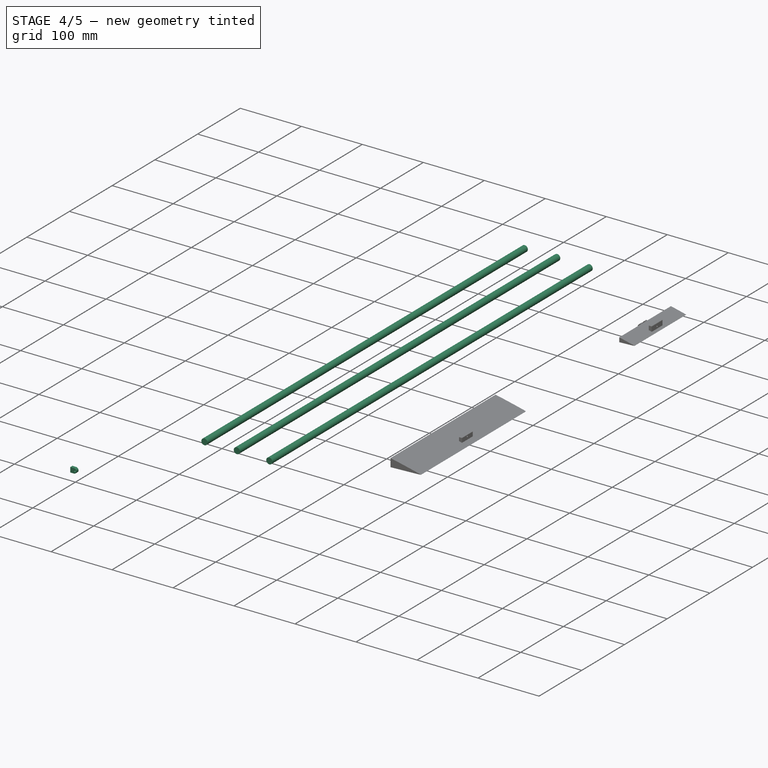
[diagram: stage 4 of 5 — iso view after this stage's code; geometry added in this stage tinted green]
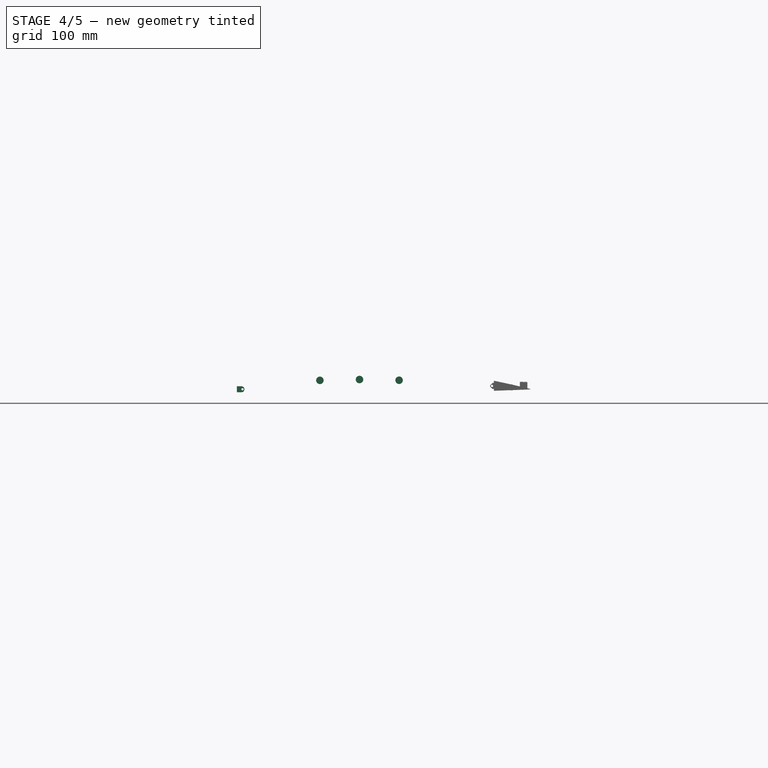
[diagram: stage 4 of 5 — front view after this stage's code; geometry added in this stage tinted green]
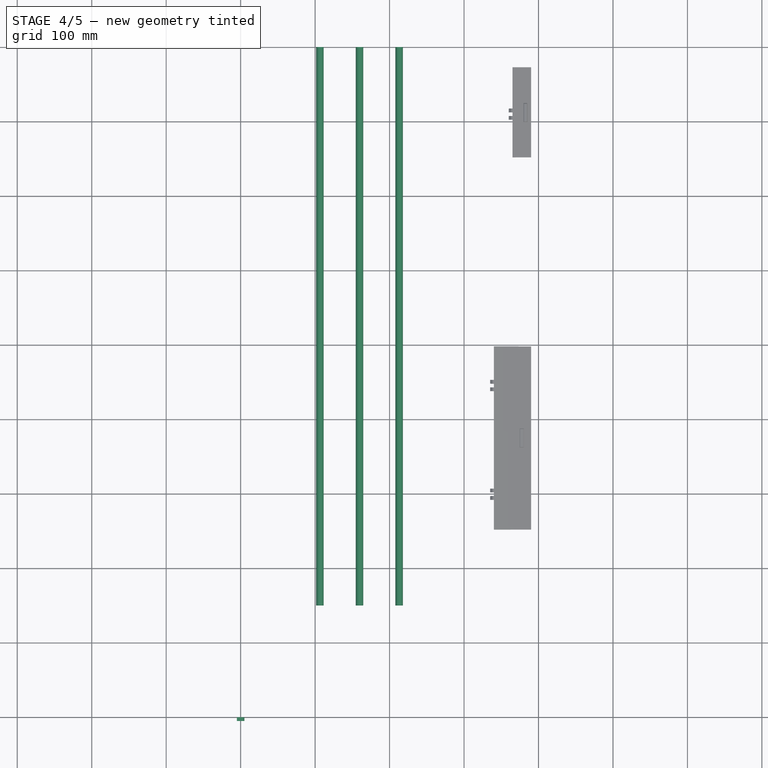
[diagram: stage 4 of 5 — top view after this stage's code; geometry added in this stage tinted green]
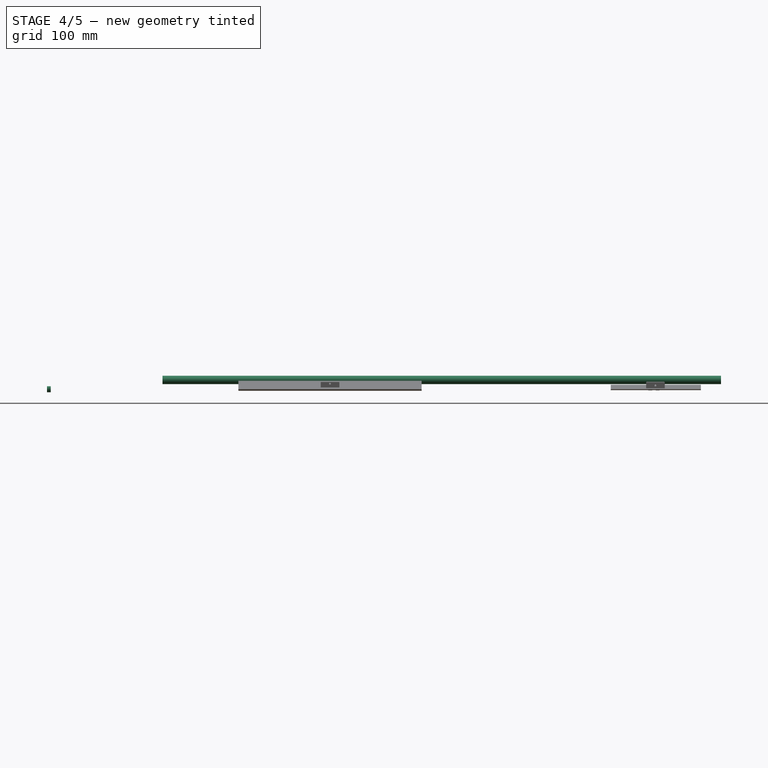
[diagram: stage 4 of 5 — right view after this stage's code; geometry added in this stage tinted green]
FEATURE [PartDesign::AdditiveCylinder] Cylinder
  Angle = 360
  AttacherType = Attacher::AttachEngine3D
  AttachmentOffset = pos=(106.4,11.96,-900) rot=(0,0,1;0rad)
  AttachmentSupport = -> [XZ_Plane005]
  FirstAngle = 0
  Height = 750
  MapMode = 5
  Placement = pos=(106.4,900,11.96) rot=(1,0,0;1.5708rad)
  Radius = 5.05
  Refine = true
  SecondAngle = 0
  Suppressed = false
FEATURE [PartDesign::Body] Body005
  AllowCompound = false
  Group = -> [Cylinder]
  Origin = -> Origin005
  Tip = -> Cylinder
FEATURE [PartDesign::AdditiveCylinder] Cylinder001
  Angle = 360
  AttacherType = Attacher::AttachEngine3D
  AttachmentOffset = pos=(212.8,12.08,-900) rot=(0,0,1;0rad)
  AttachmentSupport = -> [XZ_Plane006]
  FirstAngle = 0
  Height = 750
  MapMode = 5
  Placement = pos=(212.8,900,12.08) rot=(1,0,0;1.5708rad)
  Radius = 5.05
  Refine = true
  SecondAngle = 0
  Suppressed = false
FEATURE [PartDesign::Body] Body006
  AllowCompound = false
  Group = -> [Cylinder001]
  Origin = -> Origin006
  Tip = -> Cylinder001
FEATURE [PartDesign::AdditiveCylinder] Cylinder002
  Angle = 360
  AttacherType = Attacher::AttachEngine3D
  AttachmentOffset = pos=(159.6,13.05,-900) rot=(0,0,1;0rad)
  AttachmentSupport = -> [XZ_Plane007]
  FirstAngle = 0
  Height = 750
  MapMode = 5
  Placement = pos=(159.6,900,13.05) rot=(1,0,0;1.5708rad)
  Radius = 5.05
  Refine = true
  SecondAngle = 0
  Suppressed = false
FEATURE [Sketcher::SketchObject] Sketch016
  ArcFitTolerance = 1e-06
  AttachmentSupport = -> [XZ_Plane008]
  FullyConstrained = false
  MakeInternals = false
  MapMode = 5
  Placement = pos=(0,0,0) rot=(1,0,0;1.5708rad)
  sketch-geometry (10):
    g0: LineSegment StartX=-5 StartY=-4 StartZ=0 EndX=1.18028 EndY=-4 EndZ=0
    g1: LineSegment StartX=5 StartY=-0.180281 StartZ=0 EndX=5 EndY=0.180281 EndZ=0
    g2: LineSegment StartX=1.18028 StartY=4 StartZ=0 EndX=-5 EndY=4 EndZ=0
    g3: LineSegment StartX=-5 StartY=4 StartZ=0 EndX=-5 EndY=-4 EndZ=0
    g4: GeomPoint [constr] X=0 Y=0 Z=0
    g5: Circle CenterX=2.50159 CenterY=0 CenterZ=0 NormalX=0 NormalY=0 NormalZ=1 AngleXU=0 Radius=1.5
    g6: ArcOfCircle CenterX=1.18028 CenterY=0.180281 CenterZ=0 NormalX=0 NormalY=0 NormalZ=1 AngleXU=0 Radius=3.81972 StartAngle=-8.53e-14 EndAngle=1.5708
    g7: GeomPoint [constr] X=5 Y=4 Z=0
    g8: ArcOfCircle CenterX=1.18028 CenterY=-0.180281 CenterZ=0 NormalX=0 NormalY=0 NormalZ=1 AngleXU=0 Radius=3.81972 StartAngle=4.71239 EndAngle=6.28319
    g9: GeomPoint [constr] X=5 Y=-4 Z=0
  constraints (22):
    c: Coincident(g2,g3)
    c: Coincident(g3,g0)
    c: Horizontal(g0)
    c: Horizontal(g2)
    c: Vertical(g1)
    c: Vertical(g3)
    c: Symmetric(g7,g0,g4)
    c: Distance(g9,g3) = 10
    c: Distance(g0,g2) = 8
    c: Coincident(g4,g-1)
    c: Diameter(g5) = 3
    c: PointOnObject(g5,g-1)
    c: PointOnObject(g7,g1)
    c: PointOnObject(g7,g2)
    c: Tangent(g1,g6) = -1.5708
    c: Tangent(g2,g6) = -1.5708
    c: PointOnObject(g9,g0)
    c: PointOnObject(g9,g1)
    c: Tangent(g0,g8) = -1.5708
    c: Tangent(g1,g8) = -1.5708
    c: Distance(g8) = 6
    c: Distance(g6) = 6
FEATURE [Sketcher::SketchObject] Sketch017
  ArcFitTolerance = 1e-06
  AttachmentOffset = pos=(0.02,0,0) rot=(0,0,1;0rad)
  AttachmentSupport = -> [XZ_Plane009]
  FullyConstrained = false
  MakeInternals = false
  MapMode = 5
  Placement = pos=(0.02,0,0) rot=(1,0,0;1.5708rad)
  sketch-geometry (12):
    g0: LineSegment StartX=0.683099 StartY=-4 StartZ=0 EndX=2.5 EndY=-4 EndZ=0
    g1: LineSegment StartX=2.5 StartY=-4 StartZ=0 EndX=2.5 EndY=4 EndZ=0
    g2: LineSegment StartX=2.5 StartY=4 StartZ=0 EndX=0.683099 EndY=4 EndZ=0
    g3: LineSegment StartX=-2.5 StartY=0.816901 StartZ=0 EndX=-2.5 EndY=-0.816901 EndZ=0
    g4: GeomPoint [constr] X=0 Y=0 Z=0
    g5: Circle CenterX=0 CenterY=0 CenterZ=0 NormalX=0 NormalY=0 NormalZ=1 AngleXU=0 Radius=1.5
    g6: ArcOfCircle [constr] CenterX=0.683099 CenterY=-0.816901 CenterZ=0 NormalX=0 NormalY=0 NormalZ=1 AngleXU=0 Radius=3.1831 StartAngle=3.14159 EndAngle=4.71239
    g7: GeomPoint [constr] X=-2.5 Y=-4 Z=0
    g8: LineSegment StartX=-2.5 StartY=-0.816901 StartZ=0 EndX=0.683099 EndY=-4 EndZ=0
    g9: ArcOfCircle [constr] CenterX=0.683099 CenterY=0.816901 CenterZ=0 NormalX=0 NormalY=0 NormalZ=1 AngleXU=0 Radius=3.1831 StartAngle=1.5708 EndAngle=3.14159
    g10: GeomPoint [constr] X=-2.5 Y=4 Z=0
    g11: LineSegment StartX=0.683099 StartY=4 StartZ=0 EndX=-2.5 EndY=0.816901 EndZ=0
  constraints (26):
    c: Coincident(g0,g1)
    c: Coincident(g1,g2)
    c: Horizontal(g0)
    c: Horizontal(g2)
    c: Vertical(g1)
    c: Vertical(g3)
    c: Symmetric(g2,g7,g4)
    c: Distance(g1,g7) = 5
    c: Distance(g7,g10) = 8
    c: Coincident(g4,g-1)
    c: Diameter(g5) = 3
    c: PointOnObject(g5,g-1)
    c: PointOnObject(g7,g0)
    c: PointOnObject(g7,g3)
    c: Tangent(g0,g6) = -1.5708
    c: Tangent(g3,g6) = -1.5708
    c: Coincident(g8,g0)
    c: Coincident(g8,g3)
    c: PointOnObject(g10,g2)
    c: PointOnObject(g10,g3)
    c: Tangent(g2,g9) = -1.5708
    c: Tangent(g3,g9) = -1.5708
    c: Coincident(g11,g2)
    c: Coincident(g11,g3)
    c: Distance(g9) = 5
    c: Distance(g6) = 5
FEATURE [PartDesign::Pad] Pad003
  Direction = (0,-1,2e-16)
  Length = 5
  Length2 = 10
  Placement = pos=(0,0,0) rot=(1,0,0;1.5708rad)
  Profile = -> Sketch016
  ReferenceAxis = -> Sketch016 [N_Axis]
  Refine = true
  Suppressed = false
  Type = 0
FEATURE [PartDesign::Body] Body010
  AllowCompound = false
  Group = -> [Sketch018,Pad004]
  Origin = -> Origin010
  Placement = pos=(337.5,297,4.5) rot=(0,0,1;0rad)
  Tip = -> Pad004
FEATURE [Sketcher::SketchObject] Sketch019
  ArcFitTolerance = 1e-06
  AttachmentSupport = -> [XZ_Plane011]
  FullyConstrained = false
  MakeInternals = false
  MapMode = 5
  Placement = pos=(0,0,0) rot=(1,0,0;1.5708rad)
  sketch-geometry (10):
    g0: LineSegment StartX=-5 StartY=-4 StartZ=0 EndX=1.18028 EndY=-4 EndZ=0
    g1: LineSegment StartX=5 StartY=-0.180281 StartZ=0 EndX=5 EndY=0.180281 EndZ=0
    g2: LineSegment StartX=1.18028 StartY=4 StartZ=0 EndX=-5 EndY=4 EndZ=0
    g3: LineSegment StartX=-5 StartY=4 StartZ=0 EndX=-5 EndY=-4 EndZ=0
    g4: GeomPoint [constr] X=0 Y=0 Z=0
    g5: Circle CenterX=2.50159 CenterY=0 CenterZ=0 NormalX=0 NormalY=0 NormalZ=1 AngleXU=0 Radius=1.5
    g6: ArcOfCircle CenterX=1.18028 CenterY=0.180281 CenterZ=0 NormalX=0 NormalY=0 NormalZ=1 AngleXU=0 Radius=3.81972 StartAngle=-8.53e-14 EndAngle=1.5708
    g7: GeomPoint [constr] X=5 Y=4 Z=0
    g8: ArcOfCircle CenterX=1.18028 CenterY=-0.180281 CenterZ=0 NormalX=0 NormalY=0 NormalZ=1 AngleXU=0 Radius=3.81972 StartAngle=4.71239 EndAngle=6.28319
    g9: GeomPoint [constr] X=5 Y=-4 Z=0
  constraints (22):
    c: Coincident(g2,g3)
    c: Coincident(g3,g0)
    c: Horizontal(g0)
    c: Horizontal(g2)
    c: Vertical(g1)
    c: Vertical(g3)
    c: Symmetric(g7,g0,g4)
    c: Distance(g9,g3) = 10
    c: Distance(g0,g2) = 8
    c: Coincident(g4,g-1)
    c: Diameter(g5) = 3
    c: PointOnObject(g5,g-1)
    c: PointOnObject(g7,g1)
    c: PointOnObject(g7,g2)
    c: Tangent(g1,g6) = -1.5708
    c: Tangent(g2,g6) = -1.5708
    c: PointOnObject(g9,g0)
    c: PointOnObject(g9,g1)
    c: Tangent(g0,g8) = -1.5708
    c: Tangent(g1,g8) = -1.5708
    c: Distance(g8) = 6
    c: Distance(g6) = 6
FEATURE [PartDesign::Pad] Pad006
  Direction = (0,-1,2e-16)
  Length = 5
  Length2 = 10
  Placement = pos=(0,0,0) rot=(1,0,0;1.5708rad)
  Profile = -> Sketch019
  ReferenceAxis = -> Sketch019 [N_Axis]
  Refine = true
  Suppressed = false
  Type = 0
FEATURE [PartDesign::Body] Body015
  AllowCompound = false
  Group = -> [Sketch023,Pad009]
  Origin = -> Origin015
  Placement = pos=(362.5,807.5,2.5) rot=(0,0,1;0rad)
  Tip = -> Pad009
FEATURE [Sketcher::SketchObject] Sketch024
  ArcFitTolerance = 1e-06
  AttachmentSupport = -> [XZ_Plane016]
  FullyConstrained = false
  MakeInternals = false
  MapMode = 5
  Placement = pos=(0,0,0) rot=(1,0,0;1.5708rad)
  sketch-geometry (10):
    g0: LineSegment StartX=-5 StartY=-4 StartZ=0 EndX=1.18028 EndY=-4 EndZ=0
    g1: LineSegment StartX=5 StartY=-0.180281 StartZ=0 EndX=5 EndY=0.180281 EndZ=0
    g2: LineSegment StartX=1.18028 StartY=4 StartZ=0 EndX=-5 EndY=4 EndZ=0
    g3: LineSegment StartX=-5 StartY=4 StartZ=0 EndX=-5 EndY=-4 EndZ=0
    g4: GeomPoint [constr] X=0 Y=0 Z=0
    g5: Circle CenterX=2.50159 CenterY=0 CenterZ=0 NormalX=0 NormalY=0 NormalZ=1 AngleXU=0 Radius=1.5
    g6: ArcOfCircle CenterX=1.18028 CenterY=0.180281 CenterZ=0 NormalX=0 NormalY=0 NormalZ=1 AngleXU=0 Radius=3.81972 StartAngle=-8.53e-14 EndAngle=1.5708
    g7: GeomPoint [constr] X=5 Y=4 Z=0
    g8: ArcOfCircle CenterX=1.18028 CenterY=-0.180281 CenterZ=0 NormalX=0 NormalY=0 NormalZ=1 AngleXU=0 Radius=3.81972 StartAngle=4.71239 EndAngle=6.28319
    g9: GeomPoint [constr] X=5 Y=-4 Z=0
  constraints (22):
    c: Coincident(g2,g3)
    c: Coincident(g3,g0)
    c: Horizontal(g0)
    c: Horizontal(g2)
    c: Vertical(g1)
    c: Vertical(g3)
    c: Symmetric(g7,g0,g4)
    c: Distance(g9,g3) = 10
    c: Distance(g0,g2) = 8
    c: Coincident(g4,g-1)
    c: Diameter(g5) = 3
    c: PointOnObject(g5,g-1)
    c: PointOnObject(g7,g1)
    c: PointOnObject(g7,g2)
    c: Tangent(g1,g6) = -1.5708
    c: Tangent(g2,g6) = -1.5708
    c: PointOnObject(g9,g0)
    c: PointOnObject(g9,g1)
    c: Tangent(g0,g8) = -1.5708
    c: Tangent(g1,g8) = -1.5708
    c: Distance(g8) = 6
    c: Distance(g6) = 6
FEATURE [PartDesign::Pad] Pad013
  Direction = (0,-1,2e-16)
  Length = 5
  Length2 = 10
  Placement = pos=(0,0,0) rot=(1,0,0;1.5708rad)
  Profile = -> Sketch024
  ReferenceAxis = -> Sketch024 [N_Axis]
  Refine = true
  Suppressed = false
  Type = 0
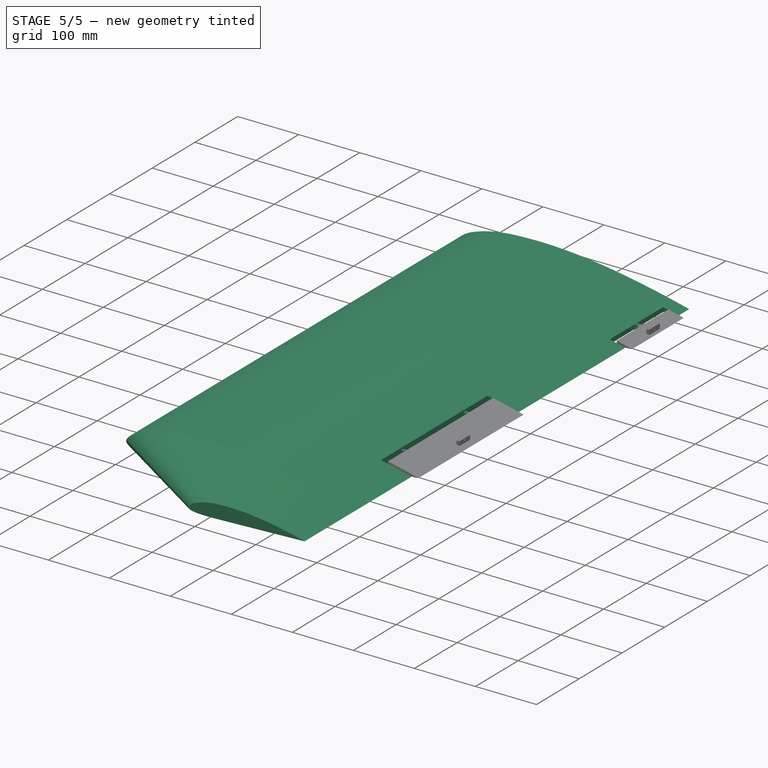
[diagram: stage 5 of 5 — iso view after this stage's code; geometry added in this stage tinted green]
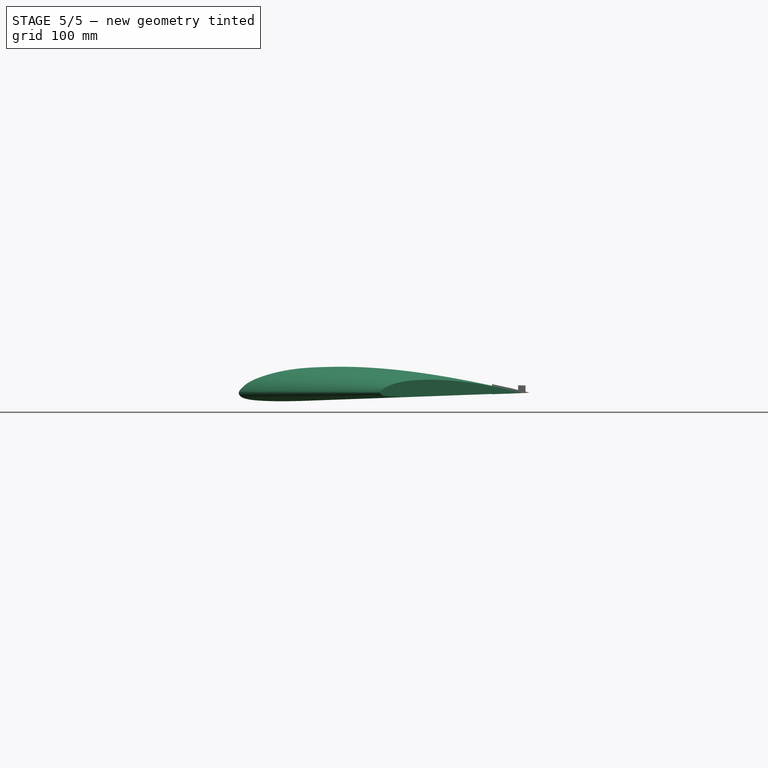
[diagram: stage 5 of 5 — front view after this stage's code; geometry added in this stage tinted green]
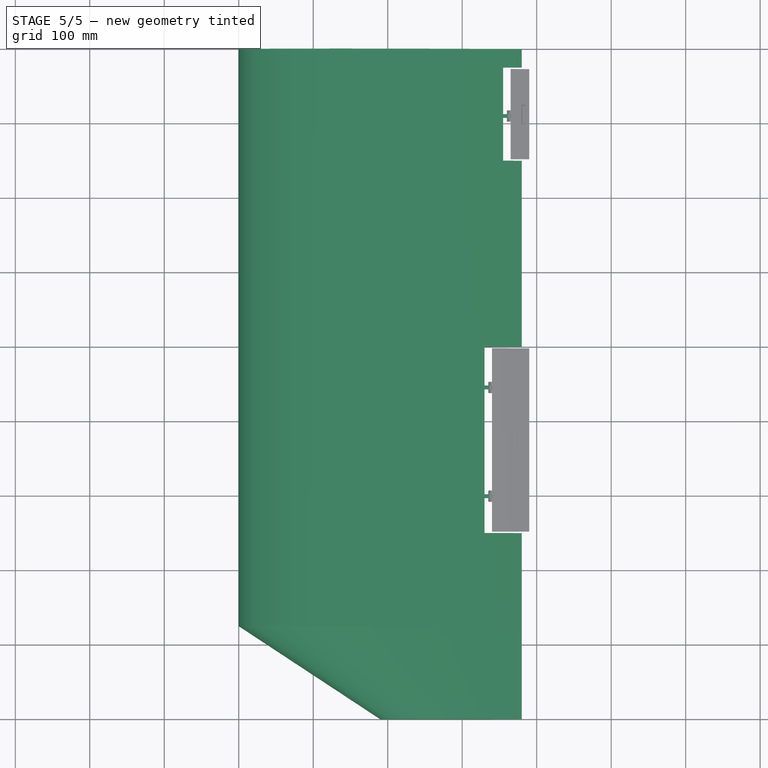
[diagram: stage 5 of 5 — top view after this stage's code; geometry added in this stage tinted green]
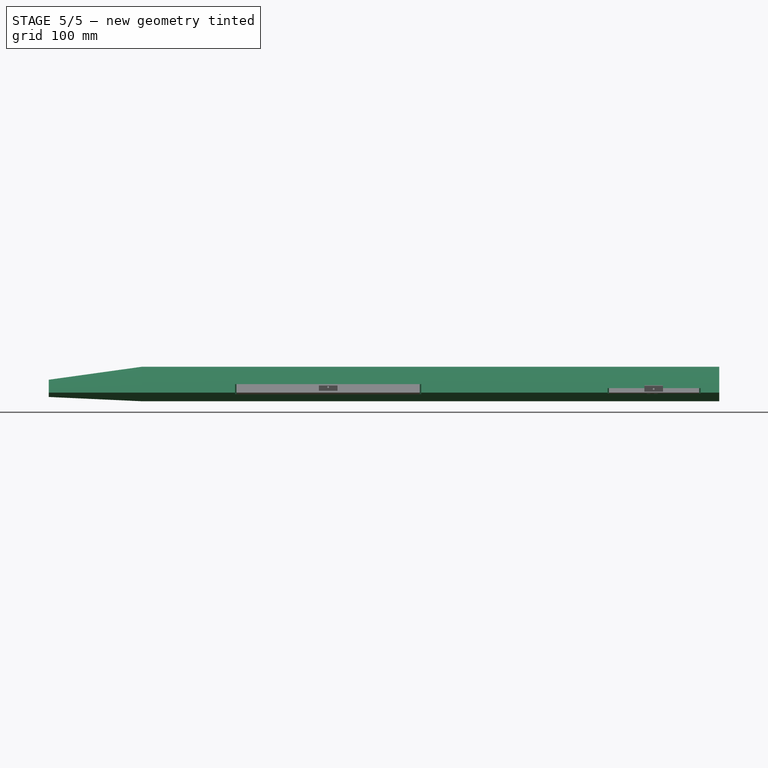
[diagram: stage 5 of 5 — right view after this stage's code; geometry added in this stage tinted green]
FEATURE [Sketcher::SketchObject] Sketch001  label="Wing2"
  ArcFitTolerance = 1e-06
  FullyConstrained = false
  MakeInternals = false
  Placement = pos=(0,125,0) rot=(1,0,0;1.5708rad)
  sketch-geometry (121):
    g0: LineSegment StartX=0 StartY=0 StartZ=0 EndX=0.19 EndY=0.88882 EndZ=0
    g1: LineSegment StartX=0.19 StartY=0.88882 StartZ=0 EndX=0.38 EndY=1.4163 EndZ=0
    g2: LineSegment StartX=0.38 StartY=1.4163 StartZ=0 EndX=0.76 EndY=2.20495 EndZ=0
    g3: LineSegment StartX=0.76 StartY=2.20495 StartZ=0 EndX=1.52 EndY=3.39104 EndZ=0
    g4: LineSegment StartX=1.52 StartY=3.39104 StartZ=0 EndX=3.04 EndY=5.2193 EndZ=0
    g5: LineSegment StartX=3.04 StartY=5.2193 StartZ=0 EndX=4.56 EndY=6.78608 EndZ=0
    g6: LineSegment StartX=4.56 StartY=6.78608 StartZ=0 EndX=7.6 EndY=9.64193 EndZ=0
    g7: LineSegment StartX=7.6 StartY=9.64193 StartZ=0 EndX=11.4 EndY=12.5482 EndZ=0
    g8: LineSegment StartX=11.4 StartY=12.5482 StartZ=0 EndX=15.2 EndY=14.8688 EndZ=0
    g9: LineSegment StartX=15.2 StartY=14.8688 StartZ=0 EndX=19 EndY=16.8246 EndZ=0
    g10: LineSegment StartX=19 StartY=16.8246 StartZ=0 EndX=22.8 EndY=18.5277 EndZ=0
    g11: LineSegment StartX=22.8 StartY=18.5277 StartZ=0 EndX=30.4 EndY=21.4437 EndZ=0
    g12: LineSegment StartX=30.4 StartY=21.4437 StartZ=0 EndX=38 EndY=23.9393 EndZ=0
    g13: LineSegment StartX=38 StartY=23.9393 StartZ=0 EndX=45.6 EndY=26.0758 EndZ=0
    g14: LineSegment StartX=45.6 StartY=26.0758 StartZ=0 EndX=53.2 EndY=27.9057 EndZ=0
    g15: LineSegment StartX=53.2 StartY=27.9057 StartZ=0 EndX=60.8 EndY=29.4769 EndZ=0
    g16: LineSegment StartX=60.8 StartY=29.4769 StartZ=0 EndX=68.4 EndY=30.8061 EndZ=0
    g17: LineSegment StartX=68.4 StartY=30.8061 StartZ=0 EndX=76 EndY=31.8897 EndZ=0
    g18: LineSegment StartX=76 StartY=31.8897 StartZ=0 EndX=83.6 EndY=32.7345 EndZ=0
    g19: LineSegment StartX=83.6 StartY=32.7345 StartZ=0 EndX=91.2 EndY=33.3757 EndZ=0
    g20: LineSegment StartX=91.2 StartY=33.3757 StartZ=0 EndX=98.8 EndY=33.8519 EndZ=0
    g21: LineSegment StartX=98.8 StartY=33.8519 StartZ=0 EndX=106.4 EndY=34.2006 EndZ=0
    g22: LineSegment StartX=106.4 StartY=34.2006 StartZ=0 EndX=114 EndY=34.4586 EndZ=0
    g23: LineSegment StartX=114 StartY=34.4586 StartZ=0 EndX=121.6 EndY=34.6506 EndZ=0
    g24: LineSegment StartX=121.6 StartY=34.6506 StartZ=0 EndX=129.2 EndY=34.773 EndZ=0
    g25: LineSegment StartX=129.2 StartY=34.773 StartZ=0 EndX=136.8 EndY=34.8181 EndZ=0
    g26: LineSegment StartX=136.8 StartY=34.8181 StartZ=0 EndX=144.4 EndY=34.7781 EndZ=0
    g27: LineSegment StartX=144.4 StartY=34.7781 StartZ=0 EndX=152 EndY=34.6451 EndZ=0
    g28: LineSegment StartX=152 StartY=34.6451 StartZ=0 EndX=159.6 EndY=34.415 EndZ=0
    g29: LineSegment StartX=159.6 StartY=34.415 StartZ=0 EndX=167.2 EndY=34.0926 EndZ=0
    g30: LineSegment StartX=167.2 StartY=34.0926 StartZ=0 EndX=174.8 EndY=33.6842 EndZ=0
    g31: LineSegment StartX=174.8 StartY=33.6842 StartZ=0 EndX=182.4 EndY=33.1957 EndZ=0
    g32: LineSegment StartX=182.4 StartY=33.1957 StartZ=0 EndX=190 EndY=32.6333 EndZ=0
    g33: LineSegment StartX=190 StartY=32.6333 StartZ=0 EndX=197.6 EndY=32.0015 EndZ=0
    g34: LineSegment StartX=197.6 StartY=32.0015 StartZ=0 EndX=205.2 EndY=31.3011 EndZ=0
    g35: LineSegment StartX=205.2 StartY=31.3011 StartZ=0 EndX=212.8 EndY=30.5322 EndZ=0
    g36: LineSegment StartX=212.8 StartY=30.5322 StartZ=0 EndX=220.4 EndY=29.6951 EndZ=0
    g37: LineSegment StartX=220.4 StartY=29.6951 StartZ=0 EndX=228 EndY=28.7901 EndZ=0
    g38: LineSegment StartX=228 StartY=28.7901 StartZ=0 EndX=235.6 EndY=27.8181 EndZ=0
    g39: LineSegment StartX=235.6 StartY=27.8181 StartZ=0 EndX=243.2 EndY=26.7832 EndZ=0
    g40: LineSegment StartX=243.2 StartY=26.7832 StartZ=0 EndX=250.8 EndY=25.6897 EndZ=0
    g41: LineSegment StartX=250.8 StartY=25.6897 StartZ=0 EndX=258.4 EndY=24.542 EndZ=0
    g42: LineSegment StartX=258.4 StartY=24.542 StartZ=0 EndX=266 EndY=23.3445 EndZ=0
    g43: LineSegment StartX=266 StartY=23.3445 StartZ=0 EndX=273.6 EndY=22.1008 EndZ=0
    g44: LineSegment StartX=273.6 StartY=22.1008 StartZ=0 EndX=281.2 EndY=20.8117 EndZ=0
    g45: LineSegment StartX=281.2 StartY=20.8117 StartZ=0 EndX=288.8 EndY=19.4775 EndZ=0
    g46: LineSegment StartX=288.8 StartY=19.4775 StartZ=0 EndX=296.4 EndY=18.0987 EndZ=0
    g47: LineSegment StartX=296.4 StartY=18.0987 StartZ=0 EndX=304 EndY=16.6758 EndZ=0
    g48: LineSegment StartX=304 StartY=16.6758 StartZ=0 EndX=311.6 EndY=15.2093 EndZ=0
    g49: LineSegment StartX=311.6 StartY=15.2093 StartZ=0 EndX=319.2 EndY=13.7004 EndZ=0
    g50: LineSegment StartX=319.2 StartY=13.7004 StartZ=0 EndX=326.8 EndY=12.1501 EndZ=0
    g51: LineSegment StartX=326.8 StartY=12.1501 StartZ=0 EndX=334.4 EndY=10.5599 EndZ=0
    g52: LineSegment StartX=334.4 StartY=10.5599 StartZ=0 EndX=342 EndY=8.93095 EndZ=0
    g53: LineSegment StartX=342 StartY=8.93095 StartZ=0 EndX=349.6 EndY=7.26393 EndZ=0
    g54: LineSegment StartX=349.6 StartY=7.26393 StartZ=0 EndX=357.2 EndY=5.55708 EndZ=0
    g55: LineSegment StartX=357.2 StartY=5.55708 StartZ=0 EndX=364.8 EndY=3.80882 EndZ=0
    g56: LineSegment StartX=364.8 StartY=3.80882 StartZ=0 EndX=368.6 EndY=2.92098 EndZ=0
    g57: LineSegment StartX=368.6 StartY=2.92098 StartZ=0 EndX=372.4 EndY=2.02673 EndZ=0
    g58: LineSegment StartX=372.4 StartY=2.02673 StartZ=0 EndX=376.2 EndY=1.12822 EndZ=0
    g59: LineSegment StartX=376.2 StartY=1.12822 StartZ=0 EndX=380 EndY=0 EndZ=0
    g60: LineSegment StartX=0 StartY=0 StartZ=0 EndX=0.19 EndY=-1.7746 EndZ=0
    g61: LineSegment StartX=0.19 StartY=-1.7746 StartZ=0 EndX=0.38 EndY=-2.25788 EndZ=0
    g62: LineSegment StartX=0.38 StartY=-2.25788 StartZ=0 EndX=0.76 EndY=-2.96829 EndZ=0
    g63: LineSegment StartX=0.76 StartY=-2.96829 StartZ=0 EndX=1.52 EndY=-3.99479 EndZ=0
    g64: LineSegment StartX=1.52 StartY=-3.99479 StartZ=0 EndX=3.04 EndY=-5.42876 EndZ=0
    g65: LineSegment StartX=3.04 StartY=-5.42876 StartZ=0 EndX=4.56 EndY=-6.44985 EndZ=0
    g66: LineSegment StartX=4.56 StartY=-6.44985 StartZ=0 EndX=7.6 EndY=-7.70347 EndZ=0
    g67: LineSegment StartX=7.6 StartY=-7.70347 StartZ=0 EndX=11.4 EndY=-8.59013 EndZ=0
    g68: LineSegment StartX=11.4 StartY=-8.59013 StartZ=0 EndX=15.2 EndY=-9.31802 EndZ=0
    g69: LineSegment StartX=15.2 StartY=-9.31802 StartZ=0 EndX=19 EndY=-9.89718 EndZ=0
    g70: LineSegment StartX=19 StartY=-9.89718 StartZ=0 EndX=22.8 EndY=-10.3085 EndZ=0
    g71: LineSegment StartX=22.8 StartY=-10.3085 StartZ=0 EndX=30.4 EndY=-10.8146 EndZ=0
    g72: LineSegment StartX=30.4 StartY=-10.8146 StartZ=0 EndX=38 EndY=-11.1639 EndZ=0
    g73: LineSegment StartX=38 StartY=-11.1639 StartZ=0 EndX=45.6 EndY=-11.3861 EndZ=0
    g74: LineSegment StartX=45.6 StartY=-11.3861 StartZ=0 EndX=53.2 EndY=-11.4914 EndZ=0
    g75: LineSegment StartX=53.2 StartY=-11.4914 StartZ=0 EndX=60.8 EndY=-11.4967 EndZ=0
    g76: LineSegment StartX=60.8 StartY=-11.4967 StartZ=0 EndX=68.4 EndY=-11.4186 EndZ=0
    g77: LineSegment StartX=68.4 StartY=-11.4186 StartZ=0 EndX=76 EndY=-11.2729 EndZ=0
    g78: LineSegment StartX=76 StartY=-11.2729 StartZ=0 EndX=83.6 EndY=-11.0749 EndZ=0
    g79: LineSegment StartX=83.6 StartY=-11.0749 StartZ=0 EndX=91.2 EndY=-10.8369 EndZ=0
    g80: LineSegment StartX=91.2 StartY=-10.8369 StartZ=0 EndX=98.8 EndY=-10.5702 EndZ=0
    g81: LineSegment StartX=98.8 StartY=-10.5702 StartZ=0 EndX=106.4 EndY=-10.2864 EndZ=0
    g82: LineSegment StartX=106.4 StartY=-10.2864 StartZ=0 EndX=114 EndY=-9.997 EndZ=0
    g83: LineSegment StartX=114 StartY=-9.997 StartZ=0 EndX=121.6 EndY=-9.71147 EndZ=0
    g84: LineSegment StartX=121.6 StartY=-9.71147 StartZ=0 EndX=129.2 EndY=-9.43069 EndZ=0
    g85: LineSegment StartX=129.2 StartY=-9.43069 StartZ=0 EndX=136.8 EndY=-9.15306 EndZ=0
    g86: LineSegment StartX=136.8 StartY=-9.15306 StartZ=0 EndX=144.4 EndY=-8.87703 EndZ=0
    g87: LineSegment StartX=144.4 StartY=-8.87703 StartZ=0 EndX=152 EndY=-8.60096 EndZ=0
    g88: LineSegment StartX=152 StartY=-8.60096 StartZ=0 EndX=159.6 EndY=-8.3236 EndZ=0
    g89: LineSegment StartX=159.6 StartY=-8.3236 StartZ=0 EndX=167.2 EndY=-8.0449 EndZ=0
    g90: LineSegment StartX=167.2 StartY=-8.0449 StartZ=0 EndX=174.8 EndY=-7.76541 EndZ=0
    g91: LineSegment StartX=174.8 StartY=-7.76541 StartZ=0 EndX=182.4 EndY=-7.48547 EndZ=0
    g92: LineSegment StartX=182.4 StartY=-7.48547 StartZ=0 EndX=190 EndY=-7.20552 EndZ=0
    g93: LineSegment StartX=190 StartY=-7.20552 StartZ=0 EndX=197.6 EndY=-6.92596 EndZ=0
    g94: LineSegment StartX=197.6 StartY=-6.92596 StartZ=0 EndX=205.2 EndY=-6.64673 EndZ=0
    g95: LineSegment StartX=205.2 StartY=-6.64673 StartZ=0 EndX=212.8 EndY=-6.36774 EndZ=0
    g96: LineSegment StartX=212.8 StartY=-6.36774 StartZ=0 EndX=220.4 EndY=-6.08882 EndZ=0
    g97: LineSegment StartX=220.4 StartY=-6.08882 StartZ=0 EndX=228 EndY=-5.80993 EndZ=0
    g98: LineSegment StartX=228 StartY=-5.80993 StartZ=0 EndX=235.6 EndY=-5.53094 EndZ=0
    g99: LineSegment StartX=235.6 StartY=-5.53094 StartZ=0 EndX=243.2 EndY=-5.25187 EndZ=0
    g100: LineSegment StartX=243.2 StartY=-5.25187 StartZ=0 EndX=250.8 EndY=-4.97276 EndZ=0
    g101: LineSegment StartX=250.8 StartY=-4.97276 StartZ=0 EndX=258.4 EndY=-4.69357 EndZ=0
    g102: LineSegment StartX=258.4 StartY=-4.69357 StartZ=0 EndX=266 EndY=-4.41442 EndZ=0
    g103: LineSegment StartX=266 StartY=-4.41442 StartZ=0 EndX=273.6 EndY=-4.13527 EndZ=0
    g104: LineSegment StartX=273.6 StartY=-4.13527 StartZ=0 EndX=281.2 EndY=-3.85616 EndZ=0
    g105: LineSegment StartX=281.2 StartY=-3.85616 StartZ=0 EndX=288.8 EndY=-3.57705 EndZ=0
    g106: LineSegment StartX=288.8 StartY=-3.57705 StartZ=0 EndX=296.4 EndY=-3.29794 EndZ=0
    g107: LineSegment StartX=296.4 StartY=-3.29794 StartZ=0 EndX=304 EndY=-3.01883 EndZ=0
    g108: LineSegment StartX=304 StartY=-3.01883 StartZ=0 EndX=311.6 EndY=-2.73972 EndZ=0
    g109: LineSegment StartX=311.6 StartY=-2.73972 StartZ=0 EndX=319.2 EndY=-2.46061 EndZ=0
    g110: LineSegment StartX=319.2 StartY=-2.46061 StartZ=0 EndX=326.8 EndY=-2.1815 EndZ=0
    g111: LineSegment StartX=326.8 StartY=-2.1815 StartZ=0 EndX=334.4 EndY=-1.90239 EndZ=0
    g112: LineSegment StartX=334.4 StartY=-1.90239 StartZ=0 EndX=342 EndY=-1.62328 EndZ=0
    g113: LineSegment StartX=342 StartY=-1.62328 StartZ=0 EndX=349.6 EndY=-1.34417 EndZ=0
    g114: LineSegment StartX=349.6 StartY=-1.34417 StartZ=0 EndX=357.2 EndY=-1.06506 EndZ=0
    g115: LineSegment StartX=357.2 StartY=-1.06506 StartZ=0 EndX=364.8 EndY=-0.785954 EndZ=0
    g116: LineSegment StartX=364.8 StartY=-0.785954 StartZ=0 EndX=368.6 EndY=-0.646418 EndZ=0
    g117: LineSegment StartX=368.6 StartY=-0.646418 StartZ=0 EndX=372.4 EndY=-0.506882 EndZ=0
    g118: LineSegment StartX=372.4 StartY=-0.506882 StartZ=0 EndX=376.2 EndY=-0.367308 EndZ=0
    g119: LineSegment StartX=376.2 StartY=-0.367308 StartZ=0 EndX=380 EndY=0 EndZ=0
    g120: GeomPoint X=380 Y=0 Z=0
  constraints (123):
    c: Coincident(g0,g1)
    c: Coincident(g1,g2)
    c: Coincident(g2,g3)
    c: Coincident(g3,g4)
    c: Coincident(g4,g5)
    c: Coincident(g5,g6)
    c: Coincident(g6,g7)
    c: Coincident(g7,g8)
    c: Coincident(g8,g9)
    c: Coincident(g9,g10)
    c: Coincident(g10,g11)
    c: Coincident(g11,g12)
    c: Coincident(g12,g13)
    c: Coincident(g13,g14)
    c: Coincident(g14,g15)
    c: Coincident(g15,g16)
    c: Coincident(g16,g17)
    c: Coincident(g17,g18)
    c: Coincident(g18,g19)
    c: Coincident(g19,g20)
    c: Coincident(g20,g21)
    c: Coincident(g21,g22)
    c: Coincident(g22,g23)
    c: Coincident(g23,g24)
    c: Coincident(g24,g25)
    c: Coincident(g25,g26)
    c: Coincident(g26,g27)
    c: Coincident(g27,g28)
    c: Coincident(g28,g29)
    c: Coincident(g29,g30)
    c: Coincident(g30,g31)
    c: Coincident(g31,g32)
    c: Coincident(g32,g33)
    c: Coincident(g33,g34)
    c: Coincident(g34,g35)
    c: Coincident(g35,g36)
    c: Coincident(g36,g37)
    c: Coincident(g37,g38)
    c: Coincident(g38,g39)
    c: Coincident(g39,g40)
    c: Coincident(g40,g41)
    c: Coincident(g41,g42)
    c: Coincident(g42,g43)
    c: Coincident(g43,g44)
    c: Coincident(g44,g45)
    c: Coincident(g45,g46)
    c: Coincident(g46,g47)
    c: Coincident(g47,g48)
    c: Coincident(g48,g49)
    c: Coincident(g49,g50)
    c: Coincident(g50,g51)
    c: Coincident(g51,g52)
    c: Coincident(g52,g53)
    c: Coincident(g53,g54)
    c: Coincident(g54,g55)
    c: Coincident(g55,g56)
    c: Coincident(g56,g57)
    c: Coincident(g57,g58)
    c: Coincident(g58,g59)
    c: Coincident(g60,g61)
    c: Coincident(g61,g62)
    c: Coincident(g62,g63)
    c: Coincident(g63,g64)
    c: Coincident(g64,g65)
    c: Coincident(g65,g66)
    c: Coincident(g66,g67)
    c: Coincident(g67,g68)
    c: Coincident(g68,g69)
    c: Coincident(g69,g70)
    c: Coincident(g70,g71)
    c: Coincident(g71,g72)
    c: Coincident(g72,g73)
    c: Coincident(g73,g74)
    c: Coincident(g74,g75)
    c: Coincident(g75,g76)
    c: Coincident(g76,g77)
    c: Coincident(g77,g78)
    c: Coincident(g78,g79)
    c: Coincident(g79,g80)
    c: Coincident(g80,g81)
    c: Coincident(g81,g82)
    c: Coincident(g82,g83)
    c: Coincident(g83,g84)
    c: Coincident(g84,g85)
    c: Coincident(g85,g86)
    c: Coincident(g86,g87)
    c: Coincident(g87,g88)
    c: Coincident(g88,g89)
    c: Coincident(g89,g90)
    c: Coincident(g90,g91)
    c: Coincident(g91,g92)
    c: Coincident(g92,g93)
    c: Coincident(g93,g94)
    c: Coincident(g94,g95)
    c: Coincident(g95,g96)
    c: Coincident(g96,g97)
    c: Coincident(g97,g98)
    c: Coincident(g98,g99)
    c: Coincident(g99,g100)
    c: Coincident(g100,g101)
    c: Coincident(g101,g102)
    c: Coincident(g102,g103)
    c: Coincident(g103,g104)
    c: Coincident(g104,g105)
    c: Coincident(g105,g106)
    c: Coincident(g106,g107)
    c: Coincident(g107,g108)
    c: Coincident(g108,g109)
    c: Coincident(g109,g110)
    c: Coincident(g110,g111)
    c: Coincident(g111,g112)
    c: Coincident(g112,g113)
    c: Coincident(g113,g114)
    c: Coincident(g114,g115)
    c: Coincident(g115,g116)
    c: Coincident(g116,g117)
    c: Coincident(g117,g118)
    c: Coincident(g118,g119)
    c: PointOnObject(g120,g-1)
    c: Coincident(g59,g120)
    c: Coincident(g59,g119)
    c: Coincident(g0,g60)
    c: Coincident(g0,g-1)
FEATURE [Sketcher::SketchObject] Sketch002  label="Wing3"
  ArcFitTolerance = 1e-06
  FullyConstrained = false
  MakeInternals = false
  Placement = pos=(0,250,0) rot=(1,0,0;1.5708rad)
  sketch-geometry (121):
    g0: LineSegment StartX=0 StartY=0 StartZ=0 EndX=0.19 EndY=0.88882 EndZ=0
    g1: LineSegment StartX=0.19 StartY=0.88882 StartZ=0 EndX=0.38 EndY=1.4163 EndZ=0
    g2: LineSegment StartX=0.38 StartY=1.4163 StartZ=0 EndX=0.76 EndY=2.20495 EndZ=0
    g3: LineSegment StartX=0.76 StartY=2.20495 StartZ=0 EndX=1.52 EndY=3.39104 EndZ=0
    g4: LineSegment StartX=1.52 StartY=3.39104 StartZ=0 EndX=3.04 EndY=5.2193 EndZ=0
    g5: LineSegment StartX=3.04 StartY=5.2193 StartZ=0 EndX=4.56 EndY=6.78608 EndZ=0
    g6: LineSegment StartX=4.56 StartY=6.78608 StartZ=0 EndX=7.6 EndY=9.64193 EndZ=0
    g7: LineSegment StartX=7.6 StartY=9.64193 StartZ=0 EndX=11.4 EndY=12.5482 EndZ=0
    g8: LineSegment StartX=11.4 StartY=12.5482 StartZ=0 EndX=15.2 EndY=14.8688 EndZ=0
    g9: LineSegment StartX=15.2 StartY=14.8688 StartZ=0 EndX=19 EndY=16.8246 EndZ=0
    g10: LineSegment StartX=19 StartY=16.8246 StartZ=0 EndX=22.8 EndY=18.5277 EndZ=0
    g11: LineSegment StartX=22.8 StartY=18.5277 StartZ=0 EndX=30.4 EndY=21.4437 EndZ=0
    g12: LineSegment StartX=30.4 StartY=21.4437 StartZ=0 EndX=38 EndY=23.9393 EndZ=0
    g13: LineSegment StartX=38 StartY=23.9393 StartZ=0 EndX=45.6 EndY=26.0758 EndZ=0
    g14: LineSegment StartX=45.6 StartY=26.0758 StartZ=0 EndX=53.2 EndY=27.9057 EndZ=0
    g15: LineSegment StartX=53.2 StartY=27.9057 StartZ=0 EndX=60.8 EndY=29.4769 EndZ=0
    g16: LineSegment StartX=60.8 StartY=29.4769 StartZ=0 EndX=68.4 EndY=30.8061 EndZ=0
    g17: LineSegment StartX=68.4 StartY=30.8061 StartZ=0 EndX=76 EndY=31.8897 EndZ=0
    g18: LineSegment StartX=76 StartY=31.8897 StartZ=0 EndX=83.6 EndY=32.7345 EndZ=0
    g19: LineSegment StartX=83.6 StartY=32.7345 StartZ=0 EndX=91.2 EndY=33.3757 EndZ=0
    g20: LineSegment StartX=91.2 StartY=33.3757 StartZ=0 EndX=98.8 EndY=33.8519 EndZ=0
    g21: LineSegment StartX=98.8 StartY=33.8519 StartZ=0 EndX=106.4 EndY=34.2006 EndZ=0
    g22: LineSegment StartX=106.4 StartY=34.2006 StartZ=0 EndX=114 EndY=34.4586 EndZ=0
    g23: LineSegment StartX=114 StartY=34.4586 StartZ=0 EndX=121.6 EndY=34.6506 EndZ=0
    g24: LineSegment StartX=121.6 StartY=34.6506 StartZ=0 EndX=129.2 EndY=34.773 EndZ=0
    g25: LineSegment StartX=129.2 StartY=34.773 StartZ=0 EndX=136.8 EndY=34.8181 EndZ=0
    g26: LineSegment StartX=136.8 StartY=34.8181 StartZ=0 EndX=144.4 EndY=34.7781 EndZ=0
    g27: LineSegment StartX=144.4 StartY=34.7781 StartZ=0 EndX=152 EndY=34.6451 EndZ=0
    g28: LineSegment StartX=152 StartY=34.6451 StartZ=0 EndX=159.6 EndY=34.415 EndZ=0
    g29: LineSegment StartX=159.6 StartY=34.415 StartZ=0 EndX=167.2 EndY=34.0926 EndZ=0
    g30: LineSegment StartX=167.2 StartY=34.0926 StartZ=0 EndX=174.8 EndY=33.6842 EndZ=0
    g31: LineSegment StartX=174.8 StartY=33.6842 StartZ=0 EndX=182.4 EndY=33.1957 EndZ=0
    g32: LineSegment StartX=182.4 StartY=33.1957 StartZ=0 EndX=190 EndY=32.6333 EndZ=0
    g33: LineSegment StartX=190 StartY=32.6333 StartZ=0 EndX=197.6 EndY=32.0015 EndZ=0
    g34: LineSegment StartX=197.6 StartY=32.0015 StartZ=0 EndX=205.2 EndY=31.3011 EndZ=0
    g35: LineSegment StartX=205.2 StartY=31.3011 StartZ=0 EndX=212.8 EndY=30.5322 EndZ=0
    g36: LineSegment StartX=212.8 StartY=30.5322 StartZ=0 EndX=220.4 EndY=29.6951 EndZ=0
    g37: LineSegment StartX=220.4 StartY=29.6951 StartZ=0 EndX=228 EndY=28.7901 EndZ=0
    g38: LineSegment StartX=228 StartY=28.7901 StartZ=0 EndX=235.6 EndY=27.8181 EndZ=0
    g39: LineSegment StartX=235.6 StartY=27.8181 StartZ=0 EndX=243.2 EndY=26.7832 EndZ=0
    g40: LineSegment StartX=243.2 StartY=26.7832 StartZ=0 EndX=250.8 EndY=25.6897 EndZ=0
    g41: LineSegment StartX=250.8 StartY=25.6897 StartZ=0 EndX=258.4 EndY=24.542 EndZ=0
    g42: LineSegment StartX=258.4 StartY=24.542 StartZ=0 EndX=266 EndY=23.3445 EndZ=0
    g43: LineSegment StartX=266 StartY=23.3445 StartZ=0 EndX=273.6 EndY=22.1008 EndZ=0
    g44: LineSegment StartX=273.6 StartY=22.1008 StartZ=0 EndX=281.2 EndY=20.8117 EndZ=0
    g45: LineSegment StartX=281.2 StartY=20.8117 StartZ=0 EndX=288.8 EndY=19.4775 EndZ=0
    g46: LineSegment StartX=288.8 StartY=19.4775 StartZ=0 EndX=296.4 EndY=18.0987 EndZ=0
    g47: LineSegment StartX=296.4 StartY=18.0987 StartZ=0 EndX=304 EndY=16.6758 EndZ=0
    g48: LineSegment StartX=304 StartY=16.6758 StartZ=0 EndX=311.6 EndY=15.2093 EndZ=0
    g49: LineSegment StartX=311.6 StartY=15.2093 StartZ=0 EndX=319.2 EndY=13.7004 EndZ=0
    g50: LineSegment StartX=319.2 StartY=13.7004 StartZ=0 EndX=326.8 EndY=12.1501 EndZ=0
    g51: LineSegment StartX=326.8 StartY=12.1501 StartZ=0 EndX=334.4 EndY=10.5599 EndZ=0
    g52: LineSegment StartX=334.4 StartY=10.5599 StartZ=0 EndX=342 EndY=8.93095 EndZ=0
    g53: LineSegment StartX=342 StartY=8.93095 StartZ=0 EndX=349.6 EndY=7.26393 EndZ=0
    g54: LineSegment StartX=349.6 StartY=7.26393 StartZ=0 EndX=357.2 EndY=5.55708 EndZ=0
    g55: LineSegment StartX=357.2 StartY=5.55708 StartZ=0 EndX=364.8 EndY=3.80882 EndZ=0
    g56: LineSegment StartX=364.8 StartY=3.80882 StartZ=0 EndX=368.6 EndY=2.92098 EndZ=0
    g57: LineSegment StartX=368.6 StartY=2.92098 StartZ=0 EndX=372.4 EndY=2.02673 EndZ=0
    g58: LineSegment StartX=372.4 StartY=2.02673 StartZ=0 EndX=376.2 EndY=1.12822 EndZ=0
    g59: LineSegment StartX=376.2 StartY=1.12822 StartZ=0 EndX=380 EndY=0 EndZ=0
    g60: LineSegment StartX=0 StartY=0 StartZ=0 EndX=0.19 EndY=-1.7746 EndZ=0
    g61: LineSegment StartX=0.19 StartY=-1.7746 StartZ=0 EndX=0.38 EndY=-2.25788 EndZ=0
    g62: LineSegment StartX=0.38 StartY=-2.25788 StartZ=0 EndX=0.76 EndY=-2.96829 EndZ=0
    g63: LineSegment StartX=0.76 StartY=-2.96829 StartZ=0 EndX=1.52 EndY=-3.99479 EndZ=0
    g64: LineSegment StartX=1.52 StartY=-3.99479 StartZ=0 EndX=3.04 EndY=-5.42876 EndZ=0
    g65: LineSegment StartX=3.04 StartY=-5.42876 StartZ=0 EndX=4.56 EndY=-6.44985 EndZ=0
    g66: LineSegment StartX=4.56 StartY=-6.44985 StartZ=0 EndX=7.6 EndY=-7.70347 EndZ=0
    g67: LineSegment StartX=7.6 StartY=-7.70347 StartZ=0 EndX=11.4 EndY=-8.59013 EndZ=0
    g68: LineSegment StartX=11.4 StartY=-8.59013 StartZ=0 EndX=15.2 EndY=-9.31802 EndZ=0
    g69: LineSegment StartX=15.2 StartY=-9.31802 StartZ=0 EndX=19 EndY=-9.89718 EndZ=0
    g70: LineSegment StartX=19 StartY=-9.89718 StartZ=0 EndX=22.8 EndY=-10.3085 EndZ=0
    g71: LineSegment StartX=22.8 StartY=-10.3085 StartZ=0 EndX=30.4 EndY=-10.8146 EndZ=0
    g72: LineSegment StartX=30.4 StartY=-10.8146 StartZ=0 EndX=38 EndY=-11.1639 EndZ=0
    g73: LineSegment StartX=38 StartY=-11.1639 StartZ=0 EndX=45.6 EndY=-11.3861 EndZ=0
    g74: LineSegment StartX=45.6 StartY=-11.3861 StartZ=0 EndX=53.2 EndY=-11.4914 EndZ=0
    g75: LineSegment StartX=53.2 StartY=-11.4914 StartZ=0 EndX=60.8 EndY=-11.4967 EndZ=0
    g76: LineSegment StartX=60.8 StartY=-11.4967 StartZ=0 EndX=68.4 EndY=-11.4186 EndZ=0
    g77: LineSegment StartX=68.4 StartY=-11.4186 StartZ=0 EndX=76 EndY=-11.2729 EndZ=0
    g78: LineSegment StartX=76 StartY=-11.2729 StartZ=0 EndX=83.6 EndY=-11.0749 EndZ=0
    g79: LineSegment StartX=83.6 StartY=-11.0749 StartZ=0 EndX=91.2 EndY=-10.8369 EndZ=0
    g80: LineSegment StartX=91.2 StartY=-10.8369 StartZ=0 EndX=98.8 EndY=-10.5702 EndZ=0
    g81: LineSegment StartX=98.8 StartY=-10.5702 StartZ=0 EndX=106.4 EndY=-10.2864 EndZ=0
    g82: LineSegment StartX=106.4 StartY=-10.2864 StartZ=0 EndX=114 EndY=-9.997 EndZ=0
    g83: LineSegment StartX=114 StartY=-9.997 StartZ=0 EndX=121.6 EndY=-9.71147 EndZ=0
    g84: LineSegment StartX=121.6 StartY=-9.71147 StartZ=0 EndX=129.2 EndY=-9.43069 EndZ=0
    g85: LineSegment StartX=129.2 StartY=-9.43069 StartZ=0 EndX=136.8 EndY=-9.15306 EndZ=0
    g86: LineSegment StartX=136.8 StartY=-9.15306 StartZ=0 EndX=144.4 EndY=-8.87703 EndZ=0
    g87: LineSegment StartX=144.4 StartY=-8.87703 StartZ=0 EndX=152 EndY=-8.60096 EndZ=0
    g88: LineSegment StartX=152 StartY=-8.60096 StartZ=0 EndX=159.6 EndY=-8.3236 EndZ=0
    g89: LineSegment StartX=159.6 StartY=-8.3236 StartZ=0 EndX=167.2 EndY=-8.0449 EndZ=0
    g90: LineSegment StartX=167.2 StartY=-8.0449 StartZ=0 EndX=174.8 EndY=-7.76541 EndZ=0
    g91: LineSegment StartX=174.8 StartY=-7.76541 StartZ=0 EndX=182.4 EndY=-7.48547 EndZ=0
    g92: LineSegment StartX=182.4 StartY=-7.48547 StartZ=0 EndX=190 EndY=-7.20552 EndZ=0
    g93: LineSegment StartX=190 StartY=-7.20552 StartZ=0 EndX=197.6 EndY=-6.92596 EndZ=0
    g94: LineSegment StartX=197.6 StartY=-6.92596 StartZ=0 EndX=205.2 EndY=-6.64673 EndZ=0
    g95: LineSegment StartX=205.2 StartY=-6.64673 StartZ=0 EndX=212.8 EndY=-6.36774 EndZ=0
    g96: LineSegment StartX=212.8 StartY=-6.36774 StartZ=0 EndX=220.4 EndY=-6.08882 EndZ=0
    g97: LineSegment StartX=220.4 StartY=-6.08882 StartZ=0 EndX=228 EndY=-5.80993 EndZ=0
    g98: LineSegment StartX=228 StartY=-5.80993 StartZ=0 EndX=235.6 EndY=-5.53094 EndZ=0
    g99: LineSegment StartX=235.6 StartY=-5.53094 StartZ=0 EndX=243.2 EndY=-5.25187 EndZ=0
    g100: LineSegment StartX=243.2 StartY=-5.25187 StartZ=0 EndX=250.8 EndY=-4.97276 EndZ=0
    g101: LineSegment StartX=250.8 StartY=-4.97276 StartZ=0 EndX=258.4 EndY=-4.69357 EndZ=0
    g102: LineSegment StartX=258.4 StartY=-4.69357 StartZ=0 EndX=266 EndY=-4.41442 EndZ=0
    g103: LineSegment StartX=266 StartY=-4.41442 StartZ=0 EndX=273.6 EndY=-4.13527 EndZ=0
    g104: LineSegment StartX=273.6 StartY=-4.13527 StartZ=0 EndX=281.2 EndY=-3.85616 EndZ=0
    g105: LineSegment StartX=281.2 StartY=-3.85616 StartZ=0 EndX=288.8 EndY=-3.57705 EndZ=0
    g106: LineSegment StartX=288.8 StartY=-3.57705 StartZ=0 EndX=296.4 EndY=-3.29794 EndZ=0
    g107: LineSegment StartX=296.4 StartY=-3.29794 StartZ=0 EndX=304 EndY=-3.01883 EndZ=0
    g108: LineSegment StartX=304 StartY=-3.01883 StartZ=0 EndX=311.6 EndY=-2.73972 EndZ=0
    g109: LineSegment StartX=311.6 StartY=-2.73972 StartZ=0 EndX=319.2 EndY=-2.46061 EndZ=0
    g110: LineSegment StartX=319.2 StartY=-2.46061 StartZ=0 EndX=326.8 EndY=-2.1815 EndZ=0
    g111: LineSegment StartX=326.8 StartY=-2.1815 StartZ=0 EndX=334.4 EndY=-1.90239 EndZ=0
    g112: LineSegment StartX=334.4 StartY=-1.90239 StartZ=0 EndX=342 EndY=-1.62328 EndZ=0
    g113: LineSegment StartX=342 StartY=-1.62328 StartZ=0 EndX=349.6 EndY=-1.34417 EndZ=0
    g114: LineSegment StartX=349.6 StartY=-1.34417 StartZ=0 EndX=357.2 EndY=-1.06506 EndZ=0
    g115: LineSegment StartX=357.2 StartY=-1.06506 StartZ=0 EndX=364.8 EndY=-0.785954 EndZ=0
    g116: LineSegment StartX=364.8 StartY=-0.785954 StartZ=0 EndX=368.6 EndY=-0.646418 EndZ=0
    g117: LineSegment StartX=368.6 StartY=-0.646418 StartZ=0 EndX=372.4 EndY=-0.506882 EndZ=0
    g118: LineSegment StartX=372.4 StartY=-0.506882 StartZ=0 EndX=376.2 EndY=-0.367308 EndZ=0
    g119: LineSegment StartX=376.2 StartY=-0.367308 StartZ=0 EndX=380 EndY=0 EndZ=0
    g120: GeomPoint X=380 Y=0 Z=0
  constraints (123):
    c: Coincident(g0,g1)
    c: Coincident(g1,g2)
    c: Coincident(g2,g3)
    c: Coincident(g3,g4)
    c: Coincident(g4,g5)
    c: Coincident(g5,g6)
    c: Coincident(g6,g7)
    c: Coincident(g7,g8)
    c: Coincident(g8,g9)
    c: Coincident(g9,g10)
    c: Coincident(g10,g11)
    c: Coincident(g11,g12)
    c: Coincident(g12,g13)
    c: Coincident(g13,g14)
    c: Coincident(g14,g15)
    c: Coincident(g15,g16)
    c: Coincident(g16,g17)
    c: Coincident(g17,g18)
    c: Coincident(g18,g19)
    c: Coincident(g19,g20)
    c: Coincident(g20,g21)
    c: Coincident(g21,g22)
    c: Coincident(g22,g23)
    c: Coincident(g23,g24)
    c: Coincident(g24,g25)
    c: Coincident(g25,g26)
    c: Coincident(g26,g27)
    c: Coincident(g27,g28)
    c: Coincident(g28,g29)
    c: Coincident(g29,g30)
    c: Coincident(g30,g31)
    c: Coincident(g31,g32)
    c: Coincident(g32,g33)
    c: Coincident(g33,g34)
    c: Coincident(g34,g35)
    c: Coincident(g35,g36)
    c: Coincident(g36,g37)
    c: Coincident(g37,g38)
    c: Coincident(g38,g39)
    c: Coincident(g39,g40)
    c: Coincident(g40,g41)
    c: Coincident(g41,g42)
    c: Coincident(g42,g43)
    c: Coincident(g43,g44)
    c: Coincident(g44,g45)
    c: Coincident(g45,g46)
    c: Coincident(g46,g47)
    c: Coincident(g47,g48)
    c: Coincident(g48,g49)
    c: Coincident(g49,g50)
    c: Coincident(g50,g51)
    c: Coincident(g51,g52)
    c: Coincident(g52,g53)
    c: Coincident(g53,g54)
    c: Coincident(g54,g55)
    c: Coincident(g55,g56)
    c: Coincident(g56,g57)
    c: Coincident(g57,g58)
    c: Coincident(g58,g59)
    c: Coincident(g60,g61)
    c: Coincident(g61,g62)
    c: Coincident(g62,g63)
    c: Coincident(g63,g64)
    c: Coincident(g64,g65)
    c: Coincident(g65,g66)
    c: Coincident(g66,g67)
    c: Coincident(g67,g68)
    c: Coincident(g68,g69)
    c: Coincident(g69,g70)
    c: Coincident(g70,g71)
    c: Coincident(g71,g72)
    c: Coincident(g72,g73)
    c: Coincident(g73,g74)
    c: Coincident(g74,g75)
    c: Coincident(g75,g76)
    c: Coincident(g76,g77)
    c: Coincident(g77,g78)
    c: Coincident(g78,g79)
    c: Coincident(g79,g80)
    c: Coincident(g80,g81)
    c: Coincident(g81,g82)
    c: Coincident(g82,g83)
    c: Coincident(g83,g84)
    c: Coincident(g84,g85)
    c: Coincident(g85,g86)
    c: Coincident(g86,g87)
    c: Coincident(g87,g88)
    c: Coincident(g88,g89)
    c: Coincident(g89,g90)
    c: Coincident(g90,g91)
    c: Coincident(g91,g92)
    c: Coincident(g92,g93)
    c: Coincident(g93,g94)
    c: Coincident(g94,g95)
    c: Coincident(g95,g96)
    c: Coincident(g96,g97)
    c: Coincident(g97,g98)
    c: Coincident(g98,g99)
    c: Coincident(g99,g100)
    c: Coincident(g100,g101)
    c: Coincident(g101,g102)
    c: Coincident(g102,g103)
    c: Coincident(g103,g104)
    c: Coincident(g104,g105)
    c: Coincident(g105,g106)
    c: Coincident(g106,g107)
    c: Coincident(g107,g108)
    c: Coincident(g108,g109)
    c: Coincident(g109,g110)
    c: Coincident(g110,g111)
    c: Coincident(g111,g112)
    c: Coincident(g112,g113)
    c: Coincident(g113,g114)
    c: Coincident(g114,g115)
    c: Coincident(g115,g116)
    c: Coincident(g116,g117)
    c: Coincident(g117,g118)
    c: Coincident(g118,g119)
    c: PointOnObject(g120,g-1)
    c: Coincident(g59,g120)
    c: Coincident(g59,g119)
    c: Coincident(g0,g60)
    c: Coincident(g0,g-1)
FEATURE [Sketcher::SketchObject] Sketch003  label="Wing4"
  ArcFitTolerance = 1e-06
  FullyConstrained = false
  MakeInternals = false
  Placement = pos=(0,375,0) rot=(1,0,0;1.5708rad)
  sketch-geometry (121):
    g0: LineSegment StartX=0 StartY=0 StartZ=0 EndX=0.19 EndY=0.88882 EndZ=0
    g1: LineSegment StartX=0.19 StartY=0.88882 StartZ=0 EndX=0.38 EndY=1.4163 EndZ=0
    g2: LineSegment StartX=0.38 StartY=1.4163 StartZ=0 EndX=0.76 EndY=2.20495 EndZ=0
    g3: LineSegment StartX=0.76 StartY=2.20495 StartZ=0 EndX=1.52 EndY=3.39104 EndZ=0
    g4: LineSegment StartX=1.52 StartY=3.39104 StartZ=0 EndX=3.04 EndY=5.2193 EndZ=0
    g5: LineSegment StartX=3.04 StartY=5.2193 StartZ=0 EndX=4.56 EndY=6.78608 EndZ=0
    g6: LineSegment StartX=4.56 StartY=6.78608 StartZ=0 EndX=7.6 EndY=9.64193 EndZ=0
    g7: LineSegment StartX=7.6 StartY=9.64193 StartZ=0 EndX=11.4 EndY=12.5482 EndZ=0
    g8: LineSegment StartX=11.4 StartY=12.5482 StartZ=0 EndX=15.2 EndY=14.8688 EndZ=0
    g9: LineSegment StartX=15.2 StartY=14.8688 StartZ=0 EndX=19 EndY=16.8246 EndZ=0
    g10: LineSegment StartX=19 StartY=16.8246 StartZ=0 EndX=22.8 EndY=18.5277 EndZ=0
    g11: LineSegment StartX=22.8 StartY=18.5277 StartZ=0 EndX=30.4 EndY=21.4437 EndZ=0
    g12: LineSegment StartX=30.4 StartY=21.4437 StartZ=0 EndX=38 EndY=23.9393 EndZ=0
    g13: LineSegment StartX=38 StartY=23.9393 StartZ=0 EndX=45.6 EndY=26.0758 EndZ=0
    g14: LineSegment StartX=45.6 StartY=26.0758 StartZ=0 EndX=53.2 EndY=27.9057 EndZ=0
    g15: LineSegment StartX=53.2 StartY=27.9057 StartZ=0 EndX=60.8 EndY=29.4769 EndZ=0
    g16: LineSegment StartX=60.8 StartY=29.4769 StartZ=0 EndX=68.4 EndY=30.8061 EndZ=0
    g17: LineSegment StartX=68.4 StartY=30.8061 StartZ=0 EndX=76 EndY=31.8897 EndZ=0
    g18: LineSegment StartX=76 StartY=31.8897 StartZ=0 EndX=83.6 EndY=32.7345 EndZ=0
    g19: LineSegment StartX=83.6 StartY=32.7345 StartZ=0 EndX=91.2 EndY=33.3757 EndZ=0
    g20: LineSegment StartX=91.2 StartY=33.3757 StartZ=0 EndX=98.8 EndY=33.8519 EndZ=0
    g21: LineSegment StartX=98.8 StartY=33.8519 StartZ=0 EndX=106.4 EndY=34.2006 EndZ=0
    g22: LineSegment StartX=106.4 StartY=34.2006 StartZ=0 EndX=114 EndY=34.4586 EndZ=0
    g23: LineSegment StartX=114 StartY=34.4586 StartZ=0 EndX=121.6 EndY=34.6506 EndZ=0
    g24: LineSegment StartX=121.6 StartY=34.6506 StartZ=0 EndX=129.2 EndY=34.773 EndZ=0
    g25: LineSegment StartX=129.2 StartY=34.773 StartZ=0 EndX=136.8 EndY=34.8181 EndZ=0
    g26: LineSegment StartX=136.8 StartY=34.8181 StartZ=0 EndX=144.4 EndY=34.7781 EndZ=0
    g27: LineSegment StartX=144.4 StartY=34.7781 StartZ=0 EndX=152 EndY=34.6451 EndZ=0
    g28: LineSegment StartX=152 StartY=34.6451 StartZ=0 EndX=159.6 EndY=34.415 EndZ=0
    g29: LineSegment StartX=159.6 StartY=34.415 StartZ=0 EndX=167.2 EndY=34.0926 EndZ=0
    g30: LineSegment StartX=167.2 StartY=34.0926 StartZ=0 EndX=174.8 EndY=33.6842 EndZ=0
    g31: LineSegment StartX=174.8 StartY=33.6842 StartZ=0 EndX=182.4 EndY=33.1957 EndZ=0
    g32: LineSegment StartX=182.4 StartY=33.1957 StartZ=0 EndX=190 EndY=32.6333 EndZ=0
    g33: LineSegment StartX=190 StartY=32.6333 StartZ=0 EndX=197.6 EndY=32.0015 EndZ=0
    g34: LineSegment StartX=197.6 StartY=32.0015 StartZ=0 EndX=205.2 EndY=31.3011 EndZ=0
    g35: LineSegment StartX=205.2 StartY=31.3011 StartZ=0 EndX=212.8 EndY=30.5322 EndZ=0
    g36: LineSegment StartX=212.8 StartY=30.5322 StartZ=0 EndX=220.4 EndY=29.6951 EndZ=0
    g37: LineSegment StartX=220.4 StartY=29.6951 StartZ=0 EndX=228 EndY=28.7901 EndZ=0
    g38: LineSegment StartX=228 StartY=28.7901 StartZ=0 EndX=235.6 EndY=27.8181 EndZ=0
    g39: LineSegment StartX=235.6 StartY=27.8181 StartZ=0 EndX=243.2 EndY=26.7832 EndZ=0
    g40: LineSegment StartX=243.2 StartY=26.7832 StartZ=0 EndX=250.8 EndY=25.6897 EndZ=0
    g41: LineSegment StartX=250.8 StartY=25.6897 StartZ=0 EndX=258.4 EndY=24.542 EndZ=0
    g42: LineSegment StartX=258.4 StartY=24.542 StartZ=0 EndX=266 EndY=23.3445 EndZ=0
    g43: LineSegment StartX=266 StartY=23.3445 StartZ=0 EndX=273.6 EndY=22.1008 EndZ=0
    g44: LineSegment StartX=273.6 StartY=22.1008 StartZ=0 EndX=281.2 EndY=20.8117 EndZ=0
    g45: LineSegment StartX=281.2 StartY=20.8117 StartZ=0 EndX=288.8 EndY=19.4775 EndZ=0
    g46: LineSegment StartX=288.8 StartY=19.4775 StartZ=0 EndX=296.4 EndY=18.0987 EndZ=0
    g47: LineSegment StartX=296.4 StartY=18.0987 StartZ=0 EndX=304 EndY=16.6758 EndZ=0
    g48: LineSegment StartX=304 StartY=16.6758 StartZ=0 EndX=311.6 EndY=15.2093 EndZ=0
    g49: LineSegment StartX=311.6 StartY=15.2093 StartZ=0 EndX=319.2 EndY=13.7004 EndZ=0
    g50: LineSegment StartX=319.2 StartY=13.7004 StartZ=0 EndX=326.8 EndY=12.1501 EndZ=0
    g51: LineSegment StartX=326.8 StartY=12.1501 StartZ=0 EndX=334.4 EndY=10.5599 EndZ=0
    g52: LineSegment StartX=334.4 StartY=10.5599 StartZ=0 EndX=342 EndY=8.93095 EndZ=0
    g53: LineSegment StartX=342 StartY=8.93095 StartZ=0 EndX=349.6 EndY=7.26393 EndZ=0
    g54: LineSegment StartX=349.6 StartY=7.26393 StartZ=0 EndX=357.2 EndY=5.55708 EndZ=0
    g55: LineSegment StartX=357.2 StartY=5.55708 StartZ=0 EndX=364.8 EndY=3.80882 EndZ=0
    g56: LineSegment StartX=364.8 StartY=3.80882 StartZ=0 EndX=368.6 EndY=2.92098 EndZ=0
    g57: LineSegment StartX=368.6 StartY=2.92098 StartZ=0 EndX=372.4 EndY=2.02673 EndZ=0
    g58: LineSegment StartX=372.4 StartY=2.02673 StartZ=0 EndX=376.2 EndY=1.12822 EndZ=0
    g59: LineSegment StartX=376.2 StartY=1.12822 StartZ=0 EndX=380 EndY=0 EndZ=0
    g60: LineSegment StartX=0 StartY=0 StartZ=0 EndX=0.19 EndY=-1.7746 EndZ=0
    g61: LineSegment StartX=0.19 StartY=-1.7746 StartZ=0 EndX=0.38 EndY=-2.25788 EndZ=0
    g62: LineSegment StartX=0.38 StartY=-2.25788 StartZ=0 EndX=0.76 EndY=-2.96829 EndZ=0
    g63: LineSegment StartX=0.76 StartY=-2.96829 StartZ=0 EndX=1.52 EndY=-3.99479 EndZ=0
    g64: LineSegment StartX=1.52 StartY=-3.99479 StartZ=0 EndX=3.04 EndY=-5.42876 EndZ=0
    g65: LineSegment StartX=3.04 StartY=-5.42876 StartZ=0 EndX=4.56 EndY=-6.44985 EndZ=0
    g66: LineSegment StartX=4.56 StartY=-6.44985 StartZ=0 EndX=7.6 EndY=-7.70347 EndZ=0
    g67: LineSegment StartX=7.6 StartY=-7.70347 StartZ=0 EndX=11.4 EndY=-8.59013 EndZ=0
    g68: LineSegment StartX=11.4 StartY=-8.59013 StartZ=0 EndX=15.2 EndY=-9.31802 EndZ=0
    g69: LineSegment StartX=15.2 StartY=-9.31802 StartZ=0 EndX=19 EndY=-9.89718 EndZ=0
    g70: LineSegment StartX=19 StartY=-9.89718 StartZ=0 EndX=22.8 EndY=-10.3085 EndZ=0
    g71: LineSegment StartX=22.8 StartY=-10.3085 StartZ=0 EndX=30.4 EndY=-10.8146 EndZ=0
    g72: LineSegment StartX=30.4 StartY=-10.8146 StartZ=0 EndX=38 EndY=-11.1639 EndZ=0
    g73: LineSegment StartX=38 StartY=-11.1639 StartZ=0 EndX=45.6 EndY=-11.3861 EndZ=0
    g74: LineSegment StartX=45.6 StartY=-11.3861 StartZ=0 EndX=53.2 EndY=-11.4914 EndZ=0
    g75: LineSegment StartX=53.2 StartY=-11.4914 StartZ=0 EndX=60.8 EndY=-11.4967 EndZ=0
    g76: LineSegment StartX=60.8 StartY=-11.4967 StartZ=0 EndX=68.4 EndY=-11.4186 EndZ=0
    g77: LineSegment StartX=68.4 StartY=-11.4186 StartZ=0 EndX=76 EndY=-11.2729 EndZ=0
    g78: LineSegment StartX=76 StartY=-11.2729 StartZ=0 EndX=83.6 EndY=-11.0749 EndZ=0
    g79: LineSegment StartX=83.6 StartY=-11.0749 StartZ=0 EndX=91.2 EndY=-10.8369 EndZ=0
    g80: LineSegment StartX=91.2 StartY=-10.8369 StartZ=0 EndX=98.8 EndY=-10.5702 EndZ=0
    g81: LineSegment StartX=98.8 StartY=-10.5702 StartZ=0 EndX=106.4 EndY=-10.2864 EndZ=0
    g82: LineSegment StartX=106.4 StartY=-10.2864 StartZ=0 EndX=114 EndY=-9.997 EndZ=0
    g83: LineSegment StartX=114 StartY=-9.997 StartZ=0 EndX=121.6 EndY=-9.71147 EndZ=0
    g84: LineSegment StartX=121.6 StartY=-9.71147 StartZ=0 EndX=129.2 EndY=-9.43069 EndZ=0
    g85: LineSegment StartX=129.2 StartY=-9.43069 StartZ=0 EndX=136.8 EndY=-9.15306 EndZ=0
    g86: LineSegment StartX=136.8 StartY=-9.15306 StartZ=0 EndX=144.4 EndY=-8.87703 EndZ=0
    g87: LineSegment StartX=144.4 StartY=-8.87703 StartZ=0 EndX=152 EndY=-8.60096 EndZ=0
    g88: LineSegment StartX=152 StartY=-8.60096 StartZ=0 EndX=159.6 EndY=-8.3236 EndZ=0
    g89: LineSegment StartX=159.6 StartY=-8.3236 StartZ=0 EndX=167.2 EndY=-8.0449 EndZ=0
    g90: LineSegment StartX=167.2 StartY=-8.0449 StartZ=0 EndX=174.8 EndY=-7.76541 EndZ=0
    g91: LineSegment StartX=174.8 StartY=-7.76541 StartZ=0 EndX=182.4 EndY=-7.48547 EndZ=0
    g92: LineSegment StartX=182.4 StartY=-7.48547 StartZ=0 EndX=190 EndY=-7.20552 EndZ=0
    g93: LineSegment StartX=190 StartY=-7.20552 StartZ=0 EndX=197.6 EndY=-6.92596 EndZ=0
    g94: LineSegment StartX=197.6 StartY=-6.92596 StartZ=0 EndX=205.2 EndY=-6.64673 EndZ=0
    g95: LineSegment StartX=205.2 StartY=-6.64673 StartZ=0 EndX=212.8 EndY=-6.36774 EndZ=0
    g96: LineSegment StartX=212.8 StartY=-6.36774 StartZ=0 EndX=220.4 EndY=-6.08882 EndZ=0
    g97: LineSegment StartX=220.4 StartY=-6.08882 StartZ=0 EndX=228 EndY=-5.80993 EndZ=0
    g98: LineSegment StartX=228 StartY=-5.80993 StartZ=0 EndX=235.6 EndY=-5.53094 EndZ=0
    g99: LineSegment StartX=235.6 StartY=-5.53094 StartZ=0 EndX=243.2 EndY=-5.25187 EndZ=0
    g100: LineSegment StartX=243.2 StartY=-5.25187 StartZ=0 EndX=250.8 EndY=-4.97276 EndZ=0
    g101: LineSegment StartX=250.8 StartY=-4.97276 StartZ=0 EndX=258.4 EndY=-4.69357 EndZ=0
    g102: LineSegment StartX=258.4 StartY=-4.69357 StartZ=0 EndX=266 EndY=-4.41442 EndZ=0
    g103: LineSegment StartX=266 StartY=-4.41442 StartZ=0 EndX=273.6 EndY=-4.13527 EndZ=0
    g104: LineSegment StartX=273.6 StartY=-4.13527 StartZ=0 EndX=281.2 EndY=-3.85616 EndZ=0
    g105: LineSegment StartX=281.2 StartY=-3.85616 StartZ=0 EndX=288.8 EndY=-3.57705 EndZ=0
    g106: LineSegment StartX=288.8 StartY=-3.57705 StartZ=0 EndX=296.4 EndY=-3.29794 EndZ=0
    g107: LineSegment StartX=296.4 StartY=-3.29794 StartZ=0 EndX=304 EndY=-3.01883 EndZ=0
    g108: LineSegment StartX=304 StartY=-3.01883 StartZ=0 EndX=311.6 EndY=-2.73972 EndZ=0
    g109: LineSegment StartX=311.6 StartY=-2.73972 StartZ=0 EndX=319.2 EndY=-2.46061 EndZ=0
    g110: LineSegment StartX=319.2 StartY=-2.46061 StartZ=0 EndX=326.8 EndY=-2.1815 EndZ=0
    g111: LineSegment StartX=326.8 StartY=-2.1815 StartZ=0 EndX=334.4 EndY=-1.90239 EndZ=0
    g112: LineSegment StartX=334.4 StartY=-1.90239 StartZ=0 EndX=342 EndY=-1.62328 EndZ=0
    g113: LineSegment StartX=342 StartY=-1.62328 StartZ=0 EndX=349.6 EndY=-1.34417 EndZ=0
    g114: LineSegment StartX=349.6 StartY=-1.34417 StartZ=0 EndX=357.2 EndY=-1.06506 EndZ=0
    g115: LineSegment StartX=357.2 StartY=-1.06506 StartZ=0 EndX=364.8 EndY=-0.785954 EndZ=0
    g116: LineSegment StartX=364.8 StartY=-0.785954 StartZ=0 EndX=368.6 EndY=-0.646418 EndZ=0
    g117: LineSegment StartX=368.6 StartY=-0.646418 StartZ=0 EndX=372.4 EndY=-0.506882 EndZ=0
    g118: LineSegment StartX=372.4 StartY=-0.506882 StartZ=0 EndX=376.2 EndY=-0.367308 EndZ=0
    g119: LineSegment StartX=376.2 StartY=-0.367308 StartZ=0 EndX=380 EndY=0 EndZ=0
    g120: GeomPoint X=380 Y=0 Z=0
  constraints (123):
    c: Coincident(g0,g1)
    c: Coincident(g1,g2)
    c: Coincident(g2,g3)
    c: Coincident(g3,g4)
    c: Coincident(g4,g5)
    c: Coincident(g5,g6)
    c: Coincident(g6,g7)
    c: Coincident(g7,g8)
    c: Coincident(g8,g9)
    c: Coincident(g9,g10)
    c: Coincident(g10,g11)
    c: Coincident(g11,g12)
    c: Coincident(g12,g13)
    c: Coincident(g13,g14)
    c: Coincident(g14,g15)
    c: Coincident(g15,g16)
    c: Coincident(g16,g17)
    c: Coincident(g17,g18)
    c: Coincident(g18,g19)
    c: Coincident(g19,g20)
    c: Coincident(g20,g21)
    c: Coincident(g21,g22)
    c: Coincident(g22,g23)
    c: Coincident(g23,g24)
    c: Coincident(g24,g25)
    c: Coincident(g25,g26)
    c: Coincident(g26,g27)
    c: Coincident(g27,g28)
    c: Coincident(g28,g29)
    c: Coincident(g29,g30)
    c: Coincident(g30,g31)
    c: Coincident(g31,g32)
    c: Coincident(g32,g33)
    c: Coincident(g33,g34)
    c: Coincident(g34,g35)
    c: Coincident(g35,g36)
    c: Coincident(g36,g37)
    c: Coincident(g37,g38)
    c: Coincident(g38,g39)
    c: Coincident(g39,g40)
    c: Coincident(g40,g41)
    c: Coincident(g41,g42)
    c: Coincident(g42,g43)
    c: Coincident(g43,g44)
    c: Coincident(g44,g45)
    c: Coincident(g45,g46)
    c: Coincident(g46,g47)
    c: Coincident(g47,g48)
    c: Coincident(g48,g49)
    c: Coincident(g49,g50)
    c: Coincident(g50,g51)
    c: Coincident(g51,g52)
    c: Coincident(g52,g53)
    c: Coincident(g53,g54)
    c: Coincident(g54,g55)
    c: Coincident(g55,g56)
    c: Coincident(g56,g57)
    c: Coincident(g57,g58)
    c: Coincident(g58,g59)
    c: Coincident(g60,g61)
    c: Coincident(g61,g62)
    c: Coincident(g62,g63)
    c: Coincident(g63,g64)
    c: Coincident(g64,g65)
    c: Coincident(g65,g66)
    c: Coincident(g66,g67)
    c: Coincident(g67,g68)
    c: Coincident(g68,g69)
    c: Coincident(g69,g70)
    c: Coincident(g70,g71)
    c: Coincident(g71,g72)
    c: Coincident(g72,g73)
    c: Coincident(g73,g74)
    c: Coincident(g74,g75)
    c: Coincident(g75,g76)
    c: Coincident(g76,g77)
    c: Coincident(g77,g78)
    c: Coincident(g78,g79)
    c: Coincident(g79,g80)
    c: Coincident(g80,g81)
    c: Coincident(g81,g82)
    c: Coincident(g82,g83)
    c: Coincident(g83,g84)
    c: Coincident(g84,g85)
    c: Coincident(g85,g86)
    c: Coincident(g86,g87)
    c: Coincident(g87,g88)
    c: Coincident(g88,g89)
    c: Coincident(g89,g90)
    c: Coincident(g90,g91)
    c: Coincident(g91,g92)
    c: Coincident(g92,g93)
    c: Coincident(g93,g94)
    c: Coincident(g94,g95)
    c: Coincident(g95,g96)
    c: Coincident(g96,g97)
    c: Coincident(g97,g98)
    c: Coincident(g98,g99)
    c: Coincident(g99,g100)
    c: Coincident(g100,g101)
    c: Coincident(g101,g102)
    c: Coincident(g102,g103)
    c: Coincident(g103,g104)
    c: Coincident(g104,g105)
    c: Coincident(g105,g106)
    c: Coincident(g106,g107)
    c: Coincident(g107,g108)
    c: Coincident(g108,g109)
    c: Coincident(g109,g110)
    c: Coincident(g110,g111)
    c: Coincident(g111,g112)
    c: Coincident(g112,g113)
    c: Coincident(g113,g114)
    c: Coincident(g114,g115)
    c: Coincident(g115,g116)
    c: Coincident(g116,g117)
    c: Coincident(g117,g118)
    c: Coincident(g118,g119)
    c: PointOnObject(g120,g-1)
    c: Coincident(g59,g120)
    c: Coincident(g59,g119)
    c: Coincident(g0,g60)
    c: Coincident(g0,g-1)
FEATURE [Sketcher::SketchObject] Sketch004  label="Wing5"
  ArcFitTolerance = 1e-06
  FullyConstrained = false
  MakeInternals = false
  Placement = pos=(0,500,0) rot=(1,0,0;1.5708rad)
  sketch-geometry (121):
    g0: LineSegment StartX=0 StartY=0 StartZ=0 EndX=0.19 EndY=0.88882 EndZ=0
    g1: LineSegment StartX=0.19 StartY=0.88882 StartZ=0 EndX=0.38 EndY=1.4163 EndZ=0
    g2: LineSegment StartX=0.38 StartY=1.4163 StartZ=0 EndX=0.76 EndY=2.20495 EndZ=0
    g3: LineSegment StartX=0.76 StartY=2.20495 StartZ=0 EndX=1.52 EndY=3.39104 EndZ=0
    g4: LineSegment StartX=1.52 StartY=3.39104 StartZ=0 EndX=3.04 EndY=5.2193 EndZ=0
    g5: LineSegment StartX=3.04 StartY=5.2193 StartZ=0 EndX=4.56 EndY=6.78608 EndZ=0
    g6: LineSegment StartX=4.56 StartY=6.78608 StartZ=0 EndX=7.6 EndY=9.64193 EndZ=0
    g7: LineSegment StartX=7.6 StartY=9.64193 StartZ=0 EndX=11.4 EndY=12.5482 EndZ=0
    g8: LineSegment StartX=11.4 StartY=12.5482 StartZ=0 EndX=15.2 EndY=14.8688 EndZ=0
    g9: LineSegment StartX=15.2 StartY=14.8688 StartZ=0 EndX=19 EndY=16.8246 EndZ=0
    g10: LineSegment StartX=19 StartY=16.8246 StartZ=0 EndX=22.8 EndY=18.5277 EndZ=0
    g11: LineSegment StartX=22.8 StartY=18.5277 StartZ=0 EndX=30.4 EndY=21.4437 EndZ=0
    g12: LineSegment StartX=30.4 StartY=21.4437 StartZ=0 EndX=38 EndY=23.9393 EndZ=0
    g13: LineSegment StartX=38 StartY=23.9393 StartZ=0 EndX=45.6 EndY=26.0758 EndZ=0
    g14: LineSegment StartX=45.6 StartY=26.0758 StartZ=0 EndX=53.2 EndY=27.9057 EndZ=0
    g15: LineSegment StartX=53.2 StartY=27.9057 StartZ=0 EndX=60.8 EndY=29.4769 EndZ=0
    g16: LineSegment StartX=60.8 StartY=29.4769 StartZ=0 EndX=68.4 EndY=30.8061 EndZ=0
    g17: LineSegment StartX=68.4 StartY=30.8061 StartZ=0 EndX=76 EndY=31.8897 EndZ=0
    g18: LineSegment StartX=76 StartY=31.8897 StartZ=0 EndX=83.6 EndY=32.7345 EndZ=0
    g19: LineSegment StartX=83.6 StartY=32.7345 StartZ=0 EndX=91.2 EndY=33.3757 EndZ=0
    g20: LineSegment StartX=91.2 StartY=33.3757 StartZ=0 EndX=98.8 EndY=33.8519 EndZ=0
    g21: LineSegment StartX=98.8 StartY=33.8519 StartZ=0 EndX=106.4 EndY=34.2006 EndZ=0
    g22: LineSegment StartX=106.4 StartY=34.2006 StartZ=0 EndX=114 EndY=34.4586 EndZ=0
    g23: LineSegment StartX=114 StartY=34.4586 StartZ=0 EndX=121.6 EndY=34.6506 EndZ=0
    g24: LineSegment StartX=121.6 StartY=34.6506 StartZ=0 EndX=129.2 EndY=34.773 EndZ=0
    g25: LineSegment StartX=129.2 StartY=34.773 StartZ=0 EndX=136.8 EndY=34.8181 EndZ=0
    g26: LineSegment StartX=136.8 StartY=34.8181 StartZ=0 EndX=144.4 EndY=34.7781 EndZ=0
    g27: LineSegment StartX=144.4 StartY=34.7781 StartZ=0 EndX=152 EndY=34.6451 EndZ=0
    g28: LineSegment StartX=152 StartY=34.6451 StartZ=0 EndX=159.6 EndY=34.415 EndZ=0
    g29: LineSegment StartX=159.6 StartY=34.415 StartZ=0 EndX=167.2 EndY=34.0926 EndZ=0
    g30: LineSegment StartX=167.2 StartY=34.0926 StartZ=0 EndX=174.8 EndY=33.6842 EndZ=0
    g31: LineSegment StartX=174.8 StartY=33.6842 StartZ=0 EndX=182.4 EndY=33.1957 EndZ=0
    g32: LineSegment StartX=182.4 StartY=33.1957 StartZ=0 EndX=190 EndY=32.6333 EndZ=0
    g33: LineSegment StartX=190 StartY=32.6333 StartZ=0 EndX=197.6 EndY=32.0015 EndZ=0
    g34: LineSegment StartX=197.6 StartY=32.0015 StartZ=0 EndX=205.2 EndY=31.3011 EndZ=0
    g35: LineSegment StartX=205.2 StartY=31.3011 StartZ=0 EndX=212.8 EndY=30.5322 EndZ=0
    g36: LineSegment StartX=212.8 StartY=30.5322 StartZ=0 EndX=220.4 EndY=29.6951 EndZ=0
    g37: LineSegment StartX=220.4 StartY=29.6951 StartZ=0 EndX=228 EndY=28.7901 EndZ=0
    g38: LineSegment StartX=228 StartY=28.7901 StartZ=0 EndX=235.6 EndY=27.8181 EndZ=0
    g39: LineSegment StartX=235.6 StartY=27.8181 StartZ=0 EndX=243.2 EndY=26.7832 EndZ=0
    g40: LineSegment StartX=243.2 StartY=26.7832 StartZ=0 EndX=250.8 EndY=25.6897 EndZ=0
    g41: LineSegment StartX=250.8 StartY=25.6897 StartZ=0 EndX=258.4 EndY=24.542 EndZ=0
    g42: LineSegment StartX=258.4 StartY=24.542 StartZ=0 EndX=266 EndY=23.3445 EndZ=0
    g43: LineSegment StartX=266 StartY=23.3445 StartZ=0 EndX=273.6 EndY=22.1008 EndZ=0
    g44: LineSegment StartX=273.6 StartY=22.1008 StartZ=0 EndX=281.2 EndY=20.8117 EndZ=0
    g45: LineSegment StartX=281.2 StartY=20.8117 StartZ=0 EndX=288.8 EndY=19.4775 EndZ=0
    g46: LineSegment StartX=288.8 StartY=19.4775 StartZ=0 EndX=296.4 EndY=18.0987 EndZ=0
    g47: LineSegment StartX=296.4 StartY=18.0987 StartZ=0 EndX=304 EndY=16.6758 EndZ=0
    g48: LineSegment StartX=304 StartY=16.6758 StartZ=0 EndX=311.6 EndY=15.2093 EndZ=0
    g49: LineSegment StartX=311.6 StartY=15.2093 StartZ=0 EndX=319.2 EndY=13.7004 EndZ=0
    g50: LineSegment StartX=319.2 StartY=13.7004 StartZ=0 EndX=326.8 EndY=12.1501 EndZ=0
    g51: LineSegment StartX=326.8 StartY=12.1501 StartZ=0 EndX=334.4 EndY=10.5599 EndZ=0
    g52: LineSegment StartX=334.4 StartY=10.5599 StartZ=0 EndX=342 EndY=8.93095 EndZ=0
    g53: LineSegment StartX=342 StartY=8.93095 StartZ=0 EndX=349.6 EndY=7.26393 EndZ=0
    g54: LineSegment StartX=349.6 StartY=7.26393 StartZ=0 EndX=357.2 EndY=5.55708 EndZ=0
    g55: LineSegment StartX=357.2 StartY=5.55708 StartZ=0 EndX=364.8 EndY=3.80882 EndZ=0
    g56: LineSegment StartX=364.8 StartY=3.80882 StartZ=0 EndX=368.6 EndY=2.92098 EndZ=0
    g57: LineSegment StartX=368.6 StartY=2.92098 StartZ=0 EndX=372.4 EndY=2.02673 EndZ=0
    g58: LineSegment StartX=372.4 StartY=2.02673 StartZ=0 EndX=376.2 EndY=1.12822 EndZ=0
    g59: LineSegment StartX=376.2 StartY=1.12822 StartZ=0 EndX=380 EndY=0 EndZ=0
    g60: LineSegment StartX=0 StartY=0 StartZ=0 EndX=0.19 EndY=-1.7746 EndZ=0
    g61: LineSegment StartX=0.19 StartY=-1.7746 StartZ=0 EndX=0.38 EndY=-2.25788 EndZ=0
    g62: LineSegment StartX=0.38 StartY=-2.25788 StartZ=0 EndX=0.76 EndY=-2.96829 EndZ=0
    g63: LineSegment StartX=0.76 StartY=-2.96829 StartZ=0 EndX=1.52 EndY=-3.99479 EndZ=0
    g64: LineSegment StartX=1.52 StartY=-3.99479 StartZ=0 EndX=3.04 EndY=-5.42876 EndZ=0
    g65: LineSegment StartX=3.04 StartY=-5.42876 StartZ=0 EndX=4.56 EndY=-6.44985 EndZ=0
    g66: LineSegment StartX=4.56 StartY=-6.44985 StartZ=0 EndX=7.6 EndY=-7.70347 EndZ=0
    g67: LineSegment StartX=7.6 StartY=-7.70347 StartZ=0 EndX=11.4 EndY=-8.59013 EndZ=0
    g68: LineSegment StartX=11.4 StartY=-8.59013 StartZ=0 EndX=15.2 EndY=-9.31802 EndZ=0
    g69: LineSegment StartX=15.2 StartY=-9.31802 StartZ=0 EndX=19 EndY=-9.89718 EndZ=0
    g70: LineSegment StartX=19 StartY=-9.89718 StartZ=0 EndX=22.8 EndY=-10.3085 EndZ=0
    g71: LineSegment StartX=22.8 StartY=-10.3085 StartZ=0 EndX=30.4 EndY=-10.8146 EndZ=0
    g72: LineSegment StartX=30.4 StartY=-10.8146 StartZ=0 EndX=38 EndY=-11.1639 EndZ=0
    g73: LineSegment StartX=38 StartY=-11.1639 StartZ=0 EndX=45.6 EndY=-11.3861 EndZ=0
    g74: LineSegment StartX=45.6 StartY=-11.3861 StartZ=0 EndX=53.2 EndY=-11.4914 EndZ=0
    g75: LineSegment StartX=53.2 StartY=-11.4914 StartZ=0 EndX=60.8 EndY=-11.4967 EndZ=0
    g76: LineSegment StartX=60.8 StartY=-11.4967 StartZ=0 EndX=68.4 EndY=-11.4186 EndZ=0
    g77: LineSegment StartX=68.4 StartY=-11.4186 StartZ=0 EndX=76 EndY=-11.2729 EndZ=0
    g78: LineSegment StartX=76 StartY=-11.2729 StartZ=0 EndX=83.6 EndY=-11.0749 EndZ=0
    g79: LineSegment StartX=83.6 StartY=-11.0749 StartZ=0 EndX=91.2 EndY=-10.8369 EndZ=0
    g80: LineSegment StartX=91.2 StartY=-10.8369 StartZ=0 EndX=98.8 EndY=-10.5702 EndZ=0
    g81: LineSegment StartX=98.8 StartY=-10.5702 StartZ=0 EndX=106.4 EndY=-10.2864 EndZ=0
    g82: LineSegment StartX=106.4 StartY=-10.2864 StartZ=0 EndX=114 EndY=-9.997 EndZ=0
    g83: LineSegment StartX=114 StartY=-9.997 StartZ=0 EndX=121.6 EndY=-9.71147 EndZ=0
    g84: LineSegment StartX=121.6 StartY=-9.71147 StartZ=0 EndX=129.2 EndY=-9.43069 EndZ=0
    g85: LineSegment StartX=129.2 StartY=-9.43069 StartZ=0 EndX=136.8 EndY=-9.15306 EndZ=0
    g86: LineSegment StartX=136.8 StartY=-9.15306 StartZ=0 EndX=144.4 EndY=-8.87703 EndZ=0
    g87: LineSegment StartX=144.4 StartY=-8.87703 StartZ=0 EndX=152 EndY=-8.60096 EndZ=0
    g88: LineSegment StartX=152 StartY=-8.60096 StartZ=0 EndX=159.6 EndY=-8.3236 EndZ=0
    g89: LineSegment StartX=159.6 StartY=-8.3236 StartZ=0 EndX=167.2 EndY=-8.0449 EndZ=0
    g90: LineSegment StartX=167.2 StartY=-8.0449 StartZ=0 EndX=174.8 EndY=-7.76541 EndZ=0
    g91: LineSegment StartX=174.8 StartY=-7.76541 StartZ=0 EndX=182.4 EndY=-7.48547 EndZ=0
    g92: LineSegment StartX=182.4 StartY=-7.48547 StartZ=0 EndX=190 EndY=-7.20552 EndZ=0
    g93: LineSegment StartX=190 StartY=-7.20552 StartZ=0 EndX=197.6 EndY=-6.92596 EndZ=0
    g94: LineSegment StartX=197.6 StartY=-6.92596 StartZ=0 EndX=205.2 EndY=-6.64673 EndZ=0
    g95: LineSegment StartX=205.2 StartY=-6.64673 StartZ=0 EndX=212.8 EndY=-6.36774 EndZ=0
    g96: LineSegment StartX=212.8 StartY=-6.36774 StartZ=0 EndX=220.4 EndY=-6.08882 EndZ=0
    g97: LineSegment StartX=220.4 StartY=-6.08882 StartZ=0 EndX=228 EndY=-5.80993 EndZ=0
    g98: LineSegment StartX=228 StartY=-5.80993 StartZ=0 EndX=235.6 EndY=-5.53094 EndZ=0
    g99: LineSegment StartX=235.6 StartY=-5.53094 StartZ=0 EndX=243.2 EndY=-5.25187 EndZ=0
    g100: LineSegment StartX=243.2 StartY=-5.25187 StartZ=0 EndX=250.8 EndY=-4.97276 EndZ=0
    g101: LineSegment StartX=250.8 StartY=-4.97276 StartZ=0 EndX=258.4 EndY=-4.69357 EndZ=0
    g102: LineSegment StartX=258.4 StartY=-4.69357 StartZ=0 EndX=266 EndY=-4.41442 EndZ=0
    g103: LineSegment StartX=266 StartY=-4.41442 StartZ=0 EndX=273.6 EndY=-4.13527 EndZ=0
    g104: LineSegment StartX=273.6 StartY=-4.13527 StartZ=0 EndX=281.2 EndY=-3.85616 EndZ=0
    g105: LineSegment StartX=281.2 StartY=-3.85616 StartZ=0 EndX=288.8 EndY=-3.57705 EndZ=0
    g106: LineSegment StartX=288.8 StartY=-3.57705 StartZ=0 EndX=296.4 EndY=-3.29794 EndZ=0
    g107: LineSegment StartX=296.4 StartY=-3.29794 StartZ=0 EndX=304 EndY=-3.01883 EndZ=0
    g108: LineSegment StartX=304 StartY=-3.01883 StartZ=0 EndX=311.6 EndY=-2.73972 EndZ=0
    g109: LineSegment StartX=311.6 StartY=-2.73972 StartZ=0 EndX=319.2 EndY=-2.46061 EndZ=0
    g110: LineSegment StartX=319.2 StartY=-2.46061 StartZ=0 EndX=326.8 EndY=-2.1815 EndZ=0
    g111: LineSegment StartX=326.8 StartY=-2.1815 StartZ=0 EndX=334.4 EndY=-1.90239 EndZ=0
    g112: LineSegment StartX=334.4 StartY=-1.90239 StartZ=0 EndX=342 EndY=-1.62328 EndZ=0
    g113: LineSegment StartX=342 StartY=-1.62328 StartZ=0 EndX=349.6 EndY=-1.34417 EndZ=0
    g114: LineSegment StartX=349.6 StartY=-1.34417 StartZ=0 EndX=357.2 EndY=-1.06506 EndZ=0
    g115: LineSegment StartX=357.2 StartY=-1.06506 StartZ=0 EndX=364.8 EndY=-0.785954 EndZ=0
    g116: LineSegment StartX=364.8 StartY=-0.785954 StartZ=0 EndX=368.6 EndY=-0.646418 EndZ=0
    g117: LineSegment StartX=368.6 StartY=-0.646418 StartZ=0 EndX=372.4 EndY=-0.506882 EndZ=0
    g118: LineSegment StartX=372.4 StartY=-0.506882 StartZ=0 EndX=376.2 EndY=-0.367308 EndZ=0
    g119: LineSegment StartX=376.2 StartY=-0.367308 StartZ=0 EndX=380 EndY=0 EndZ=0
    g120: GeomPoint X=380 Y=0 Z=0
  constraints (123):
    c: Coincident(g0,g1)
    c: Coincident(g1,g2)
    c: Coincident(g2,g3)
    c: Coincident(g3,g4)
    c: Coincident(g4,g5)
    c: Coincident(g5,g6)
    c: Coincident(g6,g7)
    c: Coincident(g7,g8)
    c: Coincident(g8,g9)
    c: Coincident(g9,g10)
    c: Coincident(g10,g11)
    c: Coincident(g11,g12)
    c: Coincident(g12,g13)
    c: Coincident(g13,g14)
    c: Coincident(g14,g15)
    c: Coincident(g15,g16)
    c: Coincident(g16,g17)
    c: Coincident(g17,g18)
    c: Coincident(g18,g19)
    c: Coincident(g19,g20)
    c: Coincident(g20,g21)
    c: Coincident(g21,g22)
    c: Coincident(g22,g23)
    c: Coincident(g23,g24)
    c: Coincident(g24,g25)
    c: Coincident(g25,g26)
    c: Coincident(g26,g27)
    c: Coincident(g27,g28)
    c: Coincident(g28,g29)
    c: Coincident(g29,g30)
    c: Coincident(g30,g31)
    c: Coincident(g31,g32)
    c: Coincident(g32,g33)
    c: Coincident(g33,g34)
    c: Coincident(g34,g35)
    c: Coincident(g35,g36)
    c: Coincident(g36,g37)
    c: Coincident(g37,g38)
    c: Coincident(g38,g39)
    c: Coincident(g39,g40)
    c: Coincident(g40,g41)
    c: Coincident(g41,g42)
    c: Coincident(g42,g43)
    c: Coincident(g43,g44)
    c: Coincident(g44,g45)
    c: Coincident(g45,g46)
    c: Coincident(g46,g47)
    c: Coincident(g47,g48)
    c: Coincident(g48,g49)
    c: Coincident(g49,g50)
    c: Coincident(g50,g51)
    c: Coincident(g51,g52)
    c: Coincident(g52,g53)
    c: Coincident(g53,g54)
    c: Coincident(g54,g55)
    c: Coincident(g55,g56)
    c: Coincident(g56,g57)
    c: Coincident(g57,g58)
    c: Coincident(g58,g59)
    c: Coincident(g60,g61)
    c: Coincident(g61,g62)
    c: Coincident(g62,g63)
    c: Coincident(g63,g64)
    c: Coincident(g64,g65)
    c: Coincident(g65,g66)
    c: Coincident(g66,g67)
    c: Coincident(g67,g68)
    c: Coincident(g68,g69)
    c: Coincident(g69,g70)
    c: Coincident(g70,g71)
    c: Coincident(g71,g72)
    c: Coincident(g72,g73)
    c: Coincident(g73,g74)
    c: Coincident(g74,g75)
    c: Coincident(g75,g76)
    c: Coincident(g76,g77)
    c: Coincident(g77,g78)
    c: Coincident(g78,g79)
    c: Coincident(g79,g80)
    c: Coincident(g80,g81)
    c: Coincident(g81,g82)
    c: Coincident(g82,g83)
    c: Coincident(g83,g84)
    c: Coincident(g84,g85)
    c: Coincident(g85,g86)
    c: Coincident(g86,g87)
    c: Coincident(g87,g88)
    c: Coincident(g88,g89)
    c: Coincident(g89,g90)
    c: Coincident(g90,g91)
    c: Coincident(g91,g92)
    c: Coincident(g92,g93)
    c: Coincident(g93,g94)
    c: Coincident(g94,g95)
    c: Coincident(g95,g96)
    c: Coincident(g96,g97)
    c: Coincident(g97,g98)
    c: Coincident(g98,g99)
    c: Coincident(g99,g100)
    c: Coincident(g100,g101)
    c: Coincident(g101,g102)
    c: Coincident(g102,g103)
    c: Coincident(g103,g104)
    c: Coincident(g104,g105)
    c: Coincident(g105,g106)
    c: Coincident(g106,g107)
    c: Coincident(g107,g108)
    c: Coincident(g108,g109)
    c: Coincident(g109,g110)
    c: Coincident(g110,g111)
    c: Coincident(g111,g112)
    c: Coincident(g112,g113)
    c: Coincident(g113,g114)
    c: Coincident(g114,g115)
    c: Coincident(g115,g116)
    c: Coincident(g116,g117)
    c: Coincident(g117,g118)
    c: Coincident(g118,g119)
    c: PointOnObject(g120,g-1)
    c: Coincident(g59,g120)
    c: Coincident(g59,g119)
    c: Coincident(g0,g60)
    c: Coincident(g0,g-1)
FEATURE [Sketcher::SketchObject] Sketch005  label="Wing6"
  ArcFitTolerance = 1e-06
  FullyConstrained = false
  MakeInternals = false
  Placement = pos=(0,625,0) rot=(1,0,0;1.5708rad)
  sketch-geometry (121):
    g0: LineSegment StartX=0 StartY=0 StartZ=0 EndX=0.19 EndY=0.88882 EndZ=0
    g1: LineSegment StartX=0.19 StartY=0.88882 StartZ=0 EndX=0.38 EndY=1.4163 EndZ=0
    g2: LineSegment StartX=0.38 StartY=1.4163 StartZ=0 EndX=0.76 EndY=2.20495 EndZ=0
    g3: LineSegment StartX=0.76 StartY=2.20495 StartZ=0 EndX=1.52 EndY=3.39104 EndZ=0
    g4: LineSegment StartX=1.52 StartY=3.39104 StartZ=0 EndX=3.04 EndY=5.2193 EndZ=0
    g5: LineSegment StartX=3.04 StartY=5.2193 StartZ=0 EndX=4.56 EndY=6.78608 EndZ=0
    g6: LineSegment StartX=4.56 StartY=6.78608 StartZ=0 EndX=7.6 EndY=9.64193 EndZ=0
    g7: LineSegment StartX=7.6 StartY=9.64193 StartZ=0 EndX=11.4 EndY=12.5482 EndZ=0
    g8: LineSegment StartX=11.4 StartY=12.5482 StartZ=0 EndX=15.2 EndY=14.8688 EndZ=0
    g9: LineSegment StartX=15.2 StartY=14.8688 StartZ=0 EndX=19 EndY=16.8246 EndZ=0
    g10: LineSegment StartX=19 StartY=16.8246 StartZ=0 EndX=22.8 EndY=18.5277 EndZ=0
    g11: LineSegment StartX=22.8 StartY=18.5277 StartZ=0 EndX=30.4 EndY=21.4437 EndZ=0
    g12: LineSegment StartX=30.4 StartY=21.4437 StartZ=0 EndX=38 EndY=23.9393 EndZ=0
    g13: LineSegment StartX=38 StartY=23.9393 StartZ=0 EndX=45.6 EndY=26.0758 EndZ=0
    g14: LineSegment StartX=45.6 StartY=26.0758 StartZ=0 EndX=53.2 EndY=27.9057 EndZ=0
    g15: LineSegment StartX=53.2 StartY=27.9057 StartZ=0 EndX=60.8 EndY=29.4769 EndZ=0
    g16: LineSegment StartX=60.8 StartY=29.4769 StartZ=0 EndX=68.4 EndY=30.8061 EndZ=0
    g17: LineSegment StartX=68.4 StartY=30.8061 StartZ=0 EndX=76 EndY=31.8897 EndZ=0
    g18: LineSegment StartX=76 StartY=31.8897 StartZ=0 EndX=83.6 EndY=32.7345 EndZ=0
    g19: LineSegment StartX=83.6 StartY=32.7345 StartZ=0 EndX=91.2 EndY=33.3757 EndZ=0
    g20: LineSegment StartX=91.2 StartY=33.3757 StartZ=0 EndX=98.8 EndY=33.8519 EndZ=0
    g21: LineSegment StartX=98.8 StartY=33.8519 StartZ=0 EndX=106.4 EndY=34.2006 EndZ=0
    g22: LineSegment StartX=106.4 StartY=34.2006 StartZ=0 EndX=114 EndY=34.4586 EndZ=0
    g23: LineSegment StartX=114 StartY=34.4586 StartZ=0 EndX=121.6 EndY=34.6506 EndZ=0
    g24: LineSegment StartX=121.6 StartY=34.6506 StartZ=0 EndX=129.2 EndY=34.773 EndZ=0
    g25: LineSegment StartX=129.2 StartY=34.773 StartZ=0 EndX=136.8 EndY=34.8181 EndZ=0
    g26: LineSegment StartX=136.8 StartY=34.8181 StartZ=0 EndX=144.4 EndY=34.7781 EndZ=0
    g27: LineSegment StartX=144.4 StartY=34.7781 StartZ=0 EndX=152 EndY=34.6451 EndZ=0
    g28: LineSegment StartX=152 StartY=34.6451 StartZ=0 EndX=159.6 EndY=34.415 EndZ=0
    g29: LineSegment StartX=159.6 StartY=34.415 StartZ=0 EndX=167.2 EndY=34.0926 EndZ=0
    g30: LineSegment StartX=167.2 StartY=34.0926 StartZ=0 EndX=174.8 EndY=33.6842 EndZ=0
    g31: LineSegment StartX=174.8 StartY=33.6842 StartZ=0 EndX=182.4 EndY=33.1957 EndZ=0
    g32: LineSegment StartX=182.4 StartY=33.1957 StartZ=0 EndX=190 EndY=32.6333 EndZ=0
    g33: LineSegment StartX=190 StartY=32.6333 StartZ=0 EndX=197.6 EndY=32.0015 EndZ=0
    g34: LineSegment StartX=197.6 StartY=32.0015 StartZ=0 EndX=205.2 EndY=31.3011 EndZ=0
    g35: LineSegment StartX=205.2 StartY=31.3011 StartZ=0 EndX=212.8 EndY=30.5322 EndZ=0
    g36: LineSegment StartX=212.8 StartY=30.5322 StartZ=0 EndX=220.4 EndY=29.6951 EndZ=0
    g37: LineSegment StartX=220.4 StartY=29.6951 StartZ=0 EndX=228 EndY=28.7901 EndZ=0
    g38: LineSegment StartX=228 StartY=28.7901 StartZ=0 EndX=235.6 EndY=27.8181 EndZ=0
    g39: LineSegment StartX=235.6 StartY=27.8181 StartZ=0 EndX=243.2 EndY=26.7832 EndZ=0
    g40: LineSegment StartX=243.2 StartY=26.7832 StartZ=0 EndX=250.8 EndY=25.6897 EndZ=0
    g41: LineSegment StartX=250.8 StartY=25.6897 StartZ=0 EndX=258.4 EndY=24.542 EndZ=0
    g42: LineSegment StartX=258.4 StartY=24.542 StartZ=0 EndX=266 EndY=23.3445 EndZ=0
    g43: LineSegment StartX=266 StartY=23.3445 StartZ=0 EndX=273.6 EndY=22.1008 EndZ=0
    g44: LineSegment StartX=273.6 StartY=22.1008 StartZ=0 EndX=281.2 EndY=20.8117 EndZ=0
    g45: LineSegment StartX=281.2 StartY=20.8117 StartZ=0 EndX=288.8 EndY=19.4775 EndZ=0
    g46: LineSegment StartX=288.8 StartY=19.4775 StartZ=0 EndX=296.4 EndY=18.0987 EndZ=0
    g47: LineSegment StartX=296.4 StartY=18.0987 StartZ=0 EndX=304 EndY=16.6758 EndZ=0
    g48: LineSegment StartX=304 StartY=16.6758 StartZ=0 EndX=311.6 EndY=15.2093 EndZ=0
    g49: LineSegment StartX=311.6 StartY=15.2093 StartZ=0 EndX=319.2 EndY=13.7004 EndZ=0
    g50: LineSegment StartX=319.2 StartY=13.7004 StartZ=0 EndX=326.8 EndY=12.1501 EndZ=0
    g51: LineSegment StartX=326.8 StartY=12.1501 StartZ=0 EndX=334.4 EndY=10.5599 EndZ=0
    g52: LineSegment StartX=334.4 StartY=10.5599 StartZ=0 EndX=342 EndY=8.93095 EndZ=0
    g53: LineSegment StartX=342 StartY=8.93095 StartZ=0 EndX=349.6 EndY=7.26393 EndZ=0
    g54: LineSegment StartX=349.6 StartY=7.26393 StartZ=0 EndX=357.2 EndY=5.55708 EndZ=0
    g55: LineSegment StartX=357.2 StartY=5.55708 StartZ=0 EndX=364.8 EndY=3.80882 EndZ=0
    g56: LineSegment StartX=364.8 StartY=3.80882 StartZ=0 EndX=368.6 EndY=2.92098 EndZ=0
    g57: LineSegment StartX=368.6 StartY=2.92098 StartZ=0 EndX=372.4 EndY=2.02673 EndZ=0
    g58: LineSegment StartX=372.4 StartY=2.02673 StartZ=0 EndX=376.2 EndY=1.12822 EndZ=0
    g59: LineSegment StartX=376.2 StartY=1.12822 StartZ=0 EndX=380 EndY=0 EndZ=0
    g60: LineSegment StartX=0 StartY=0 StartZ=0 EndX=0.19 EndY=-1.7746 EndZ=0
    g61: LineSegment StartX=0.19 StartY=-1.7746 StartZ=0 EndX=0.38 EndY=-2.25788 EndZ=0
    g62: LineSegment StartX=0.38 StartY=-2.25788 StartZ=0 EndX=0.76 EndY=-2.96829 EndZ=0
    g63: LineSegment StartX=0.76 StartY=-2.96829 StartZ=0 EndX=1.52 EndY=-3.99479 EndZ=0
    g64: LineSegment StartX=1.52 StartY=-3.99479 StartZ=0 EndX=3.04 EndY=-5.42876 EndZ=0
    g65: LineSegment StartX=3.04 StartY=-5.42876 StartZ=0 EndX=4.56 EndY=-6.44985 EndZ=0
    g66: LineSegment StartX=4.56 StartY=-6.44985 StartZ=0 EndX=7.6 EndY=-7.70347 EndZ=0
    g67: LineSegment StartX=7.6 StartY=-7.70347 StartZ=0 EndX=11.4 EndY=-8.59013 EndZ=0
    g68: LineSegment StartX=11.4 StartY=-8.59013 StartZ=0 EndX=15.2 EndY=-9.31802 EndZ=0
    g69: LineSegment StartX=15.2 StartY=-9.31802 StartZ=0 EndX=19 EndY=-9.89718 EndZ=0
    g70: LineSegment StartX=19 StartY=-9.89718 StartZ=0 EndX=22.8 EndY=-10.3085 EndZ=0
    g71: LineSegment StartX=22.8 StartY=-10.3085 StartZ=0 EndX=30.4 EndY=-10.8146 EndZ=0
    g72: LineSegment StartX=30.4 StartY=-10.8146 StartZ=0 EndX=38 EndY=-11.1639 EndZ=0
    g73: LineSegment StartX=38 StartY=-11.1639 StartZ=0 EndX=45.6 EndY=-11.3861 EndZ=0
    g74: LineSegment StartX=45.6 StartY=-11.3861 StartZ=0 EndX=53.2 EndY=-11.4914 EndZ=0
    g75: LineSegment StartX=53.2 StartY=-11.4914 StartZ=0 EndX=60.8 EndY=-11.4967 EndZ=0
    g76: LineSegment StartX=60.8 StartY=-11.4967 StartZ=0 EndX=68.4 EndY=-11.4186 EndZ=0
    g77: LineSegment StartX=68.4 StartY=-11.4186 StartZ=0 EndX=76 EndY=-11.2729 EndZ=0
    g78: LineSegment StartX=76 StartY=-11.2729 StartZ=0 EndX=83.6 EndY=-11.0749 EndZ=0
    g79: LineSegment StartX=83.6 StartY=-11.0749 StartZ=0 EndX=91.2 EndY=-10.8369 EndZ=0
    g80: LineSegment StartX=91.2 StartY=-10.8369 StartZ=0 EndX=98.8 EndY=-10.5702 EndZ=0
    g81: LineSegment StartX=98.8 StartY=-10.5702 StartZ=0 EndX=106.4 EndY=-10.2864 EndZ=0
    g82: LineSegment StartX=106.4 StartY=-10.2864 StartZ=0 EndX=114 EndY=-9.997 EndZ=0
    g83: LineSegment StartX=114 StartY=-9.997 StartZ=0 EndX=121.6 EndY=-9.71147 EndZ=0
    g84: LineSegment StartX=121.6 StartY=-9.71147 StartZ=0 EndX=129.2 EndY=-9.43069 EndZ=0
    g85: LineSegment StartX=129.2 StartY=-9.43069 StartZ=0 EndX=136.8 EndY=-9.15306 EndZ=0
    g86: LineSegment StartX=136.8 StartY=-9.15306 StartZ=0 EndX=144.4 EndY=-8.87703 EndZ=0
    g87: LineSegment StartX=144.4 StartY=-8.87703 StartZ=0 EndX=152 EndY=-8.60096 EndZ=0
    g88: LineSegment StartX=152 StartY=-8.60096 StartZ=0 EndX=159.6 EndY=-8.3236 EndZ=0
    g89: LineSegment StartX=159.6 StartY=-8.3236 StartZ=0 EndX=167.2 EndY=-8.0449 EndZ=0
    g90: LineSegment StartX=167.2 StartY=-8.0449 StartZ=0 EndX=174.8 EndY=-7.76541 EndZ=0
    g91: LineSegment StartX=174.8 StartY=-7.76541 StartZ=0 EndX=182.4 EndY=-7.48547 EndZ=0
    g92: LineSegment StartX=182.4 StartY=-7.48547 StartZ=0 EndX=190 EndY=-7.20552 EndZ=0
    g93: LineSegment StartX=190 StartY=-7.20552 StartZ=0 EndX=197.6 EndY=-6.92596 EndZ=0
    g94: LineSegment StartX=197.6 StartY=-6.92596 StartZ=0 EndX=205.2 EndY=-6.64673 EndZ=0
    g95: LineSegment StartX=205.2 StartY=-6.64673 StartZ=0 EndX=212.8 EndY=-6.36774 EndZ=0
    g96: LineSegment StartX=212.8 StartY=-6.36774 StartZ=0 EndX=220.4 EndY=-6.08882 EndZ=0
    g97: LineSegment StartX=220.4 StartY=-6.08882 StartZ=0 EndX=228 EndY=-5.80993 EndZ=0
    g98: LineSegment StartX=228 StartY=-5.80993 StartZ=0 EndX=235.6 EndY=-5.53094 EndZ=0
    g99: LineSegment StartX=235.6 StartY=-5.53094 StartZ=0 EndX=243.2 EndY=-5.25187 EndZ=0
    g100: LineSegment StartX=243.2 StartY=-5.25187 StartZ=0 EndX=250.8 EndY=-4.97276 EndZ=0
    g101: LineSegment StartX=250.8 StartY=-4.97276 StartZ=0 EndX=258.4 EndY=-4.69357 EndZ=0
    g102: LineSegment StartX=258.4 StartY=-4.69357 StartZ=0 EndX=266 EndY=-4.41442 EndZ=0
    g103: LineSegment StartX=266 StartY=-4.41442 StartZ=0 EndX=273.6 EndY=-4.13527 EndZ=0
    g104: LineSegment StartX=273.6 StartY=-4.13527 StartZ=0 EndX=281.2 EndY=-3.85616 EndZ=0
    g105: LineSegment StartX=281.2 StartY=-3.85616 StartZ=0 EndX=288.8 EndY=-3.57705 EndZ=0
    g106: LineSegment StartX=288.8 StartY=-3.57705 StartZ=0 EndX=296.4 EndY=-3.29794 EndZ=0
    g107: LineSegment StartX=296.4 StartY=-3.29794 StartZ=0 EndX=304 EndY=-3.01883 EndZ=0
    g108: LineSegment StartX=304 StartY=-3.01883 StartZ=0 EndX=311.6 EndY=-2.73972 EndZ=0
    g109: LineSegment StartX=311.6 StartY=-2.73972 StartZ=0 EndX=319.2 EndY=-2.46061 EndZ=0
    g110: LineSegment StartX=319.2 StartY=-2.46061 StartZ=0 EndX=326.8 EndY=-2.1815 EndZ=0
    g111: LineSegment StartX=326.8 StartY=-2.1815 StartZ=0 EndX=334.4 EndY=-1.90239 EndZ=0
    g112: LineSegment StartX=334.4 StartY=-1.90239 StartZ=0 EndX=342 EndY=-1.62328 EndZ=0
    g113: LineSegment StartX=342 StartY=-1.62328 StartZ=0 EndX=349.6 EndY=-1.34417 EndZ=0
    g114: LineSegment StartX=349.6 StartY=-1.34417 StartZ=0 EndX=357.2 EndY=-1.06506 EndZ=0
    g115: LineSegment StartX=357.2 StartY=-1.06506 StartZ=0 EndX=364.8 EndY=-0.785954 EndZ=0
    g116: LineSegment StartX=364.8 StartY=-0.785954 StartZ=0 EndX=368.6 EndY=-0.646418 EndZ=0
    g117: LineSegment StartX=368.6 StartY=-0.646418 StartZ=0 EndX=372.4 EndY=-0.506882 EndZ=0
    g118: LineSegment StartX=372.4 StartY=-0.506882 StartZ=0 EndX=376.2 EndY=-0.367308 EndZ=0
    g119: LineSegment StartX=376.2 StartY=-0.367308 StartZ=0 EndX=380 EndY=0 EndZ=0
    g120: GeomPoint X=380 Y=0 Z=0
  constraints (123):
    c: Coincident(g0,g1)
    c: Coincident(g1,g2)
    c: Coincident(g2,g3)
    c: Coincident(g3,g4)
    c: Coincident(g4,g5)
    c: Coincident(g5,g6)
    c: Coincident(g6,g7)
    c: Coincident(g7,g8)
    c: Coincident(g8,g9)
    c: Coincident(g9,g10)
    c: Coincident(g10,g11)
    c: Coincident(g11,g12)
    c: Coincident(g12,g13)
    c: Coincident(g13,g14)
    c: Coincident(g14,g15)
    c: Coincident(g15,g16)
    c: Coincident(g16,g17)
    c: Coincident(g17,g18)
    c: Coincident(g18,g19)
    c: Coincident(g19,g20)
    c: Coincident(g20,g21)
    c: Coincident(g21,g22)
    c: Coincident(g22,g23)
    c: Coincident(g23,g24)
    c: Coincident(g24,g25)
    c: Coincident(g25,g26)
    c: Coincident(g26,g27)
    c: Coincident(g27,g28)
    c: Coincident(g28,g29)
    c: Coincident(g29,g30)
    c: Coincident(g30,g31)
    c: Coincident(g31,g32)
    c: Coincident(g32,g33)
    c: Coincident(g33,g34)
    c: Coincident(g34,g35)
    c: Coincident(g35,g36)
    c: Coincident(g36,g37)
    c: Coincident(g37,g38)
    c: Coincident(g38,g39)
    c: Coincident(g39,g40)
    c: Coincident(g40,g41)
    c: Coincident(g41,g42)
    c: Coincident(g42,g43)
    c: Coincident(g43,g44)
    c: Coincident(g44,g45)
    c: Coincident(g45,g46)
    c: Coincident(g46,g47)
    c: Coincident(g47,g48)
    c: Coincident(g48,g49)
    c: Coincident(g49,g50)
    c: Coincident(g50,g51)
    c: Coincident(g51,g52)
    c: Coincident(g52,g53)
    c: Coincident(g53,g54)
    c: Coincident(g54,g55)
    c: Coincident(g55,g56)
    c: Coincident(g56,g57)
    c: Coincident(g57,g58)
    c: Coincident(g58,g59)
    c: Coincident(g60,g61)
    c: Coincident(g61,g62)
    c: Coincident(g62,g63)
    c: Coincident(g63,g64)
    c: Coincident(g64,g65)
    c: Coincident(g65,g66)
    c: Coincident(g66,g67)
    c: Coincident(g67,g68)
    c: Coincident(g68,g69)
    c: Coincident(g69,g70)
    c: Coincident(g70,g71)
    c: Coincident(g71,g72)
    c: Coincident(g72,g73)
    c: Coincident(g73,g74)
    c: Coincident(g74,g75)
    c: Coincident(g75,g76)
    c: Coincident(g76,g77)
    c: Coincident(g77,g78)
    c: Coincident(g78,g79)
    c: Coincident(g79,g80)
    c: Coincident(g80,g81)
    c: Coincident(g81,g82)
    c: Coincident(g82,g83)
    c: Coincident(g83,g84)
    c: Coincident(g84,g85)
    c: Coincident(g85,g86)
    c: Coincident(g86,g87)
    c: Coincident(g87,g88)
    c: Coincident(g88,g89)
    c: Coincident(g89,g90)
    c: Coincident(g90,g91)
    c: Coincident(g91,g92)
    c: Coincident(g92,g93)
    c: Coincident(g93,g94)
    c: Coincident(g94,g95)
    c: Coincident(g95,g96)
    c: Coincident(g96,g97)
    c: Coincident(g97,g98)
    c: Coincident(g98,g99)
    c: Coincident(g99,g100)
    c: Coincident(g100,g101)
    c: Coincident(g101,g102)
    c: Coincident(g102,g103)
    c: Coincident(g103,g104)
    c: Coincident(g104,g105)
    c: Coincident(g105,g106)
    c: Coincident(g106,g107)
    c: Coincident(g107,g108)
    c: Coincident(g108,g109)
    c: Coincident(g109,g110)
    c: Coincident(g110,g111)
    c: Coincident(g111,g112)
    c: Coincident(g112,g113)
    c: Coincident(g113,g114)
    c: Coincident(g114,g115)
    c: Coincident(g115,g116)
    c: Coincident(g116,g117)
    c: Coincident(g117,g118)
    c: Coincident(g118,g119)
    c: PointOnObject(g120,g-1)
    c: Coincident(g59,g120)
    c: Coincident(g59,g119)
    c: Coincident(g0,g60)
    c: Coincident(g0,g-1)
FEATURE [Sketcher::SketchObject] Sketch006  label="Wing7"
  ArcFitTolerance = 1e-06
  FullyConstrained = false
  MakeInternals = false
  Placement = pos=(0,750,0) rot=(1,0,0;1.5708rad)
  sketch-geometry (121):
    g0: LineSegment StartX=0 StartY=0 StartZ=0 EndX=0.19 EndY=0.88882 EndZ=0
    g1: LineSegment StartX=0.19 StartY=0.88882 StartZ=0 EndX=0.38 EndY=1.4163 EndZ=0
    g2: LineSegment StartX=0.38 StartY=1.4163 StartZ=0 EndX=0.76 EndY=2.20495 EndZ=0
    g3: LineSegment StartX=0.76 StartY=2.20495 StartZ=0 EndX=1.52 EndY=3.39104 EndZ=0
    g4: LineSegment StartX=1.52 StartY=3.39104 StartZ=0 EndX=3.04 EndY=5.2193 EndZ=0
    g5: LineSegment StartX=3.04 StartY=5.2193 StartZ=0 EndX=4.56 EndY=6.78608 EndZ=0
    g6: LineSegment StartX=4.56 StartY=6.78608 StartZ=0 EndX=7.6 EndY=9.64193 EndZ=0
    g7: LineSegment StartX=7.6 StartY=9.64193 StartZ=0 EndX=11.4 EndY=12.5482 EndZ=0
    g8: LineSegment StartX=11.4 StartY=12.5482 StartZ=0 EndX=15.2 EndY=14.8688 EndZ=0
    g9: LineSegment StartX=15.2 StartY=14.8688 StartZ=0 EndX=19 EndY=16.8246 EndZ=0
    g10: LineSegment StartX=19 StartY=16.8246 StartZ=0 EndX=22.8 EndY=18.5277 EndZ=0
    g11: LineSegment StartX=22.8 StartY=18.5277 StartZ=0 EndX=30.4 EndY=21.4437 EndZ=0
    g12: LineSegment StartX=30.4 StartY=21.4437 StartZ=0 EndX=38 EndY=23.9393 EndZ=0
    g13: LineSegment StartX=38 StartY=23.9393 StartZ=0 EndX=45.6 EndY=26.0758 EndZ=0
    g14: LineSegment StartX=45.6 StartY=26.0758 StartZ=0 EndX=53.2 EndY=27.9057 EndZ=0
    g15: LineSegment StartX=53.2 StartY=27.9057 StartZ=0 EndX=60.8 EndY=29.4769 EndZ=0
    g16: LineSegment StartX=60.8 StartY=29.4769 StartZ=0 EndX=68.4 EndY=30.8061 EndZ=0
    g17: LineSegment StartX=68.4 StartY=30.8061 StartZ=0 EndX=76 EndY=31.8897 EndZ=0
    g18: LineSegment StartX=76 StartY=31.8897 StartZ=0 EndX=83.6 EndY=32.7345 EndZ=0
    g19: LineSegment StartX=83.6 StartY=32.7345 StartZ=0 EndX=91.2 EndY=33.3757 EndZ=0
    g20: LineSegment StartX=91.2 StartY=33.3757 StartZ=0 EndX=98.8 EndY=33.8519 EndZ=0
    g21: LineSegment StartX=98.8 StartY=33.8519 StartZ=0 EndX=106.4 EndY=34.2006 EndZ=0
    g22: LineSegment StartX=106.4 StartY=34.2006 StartZ=0 EndX=114 EndY=34.4586 EndZ=0
    g23: LineSegment StartX=114 StartY=34.4586 StartZ=0 EndX=121.6 EndY=34.6506 EndZ=0
    g24: LineSegment StartX=121.6 StartY=34.6506 StartZ=0 EndX=129.2 EndY=34.773 EndZ=0
    g25: LineSegment StartX=129.2 StartY=34.773 StartZ=0 EndX=136.8 EndY=34.8181 EndZ=0
    g26: LineSegment StartX=136.8 StartY=34.8181 StartZ=0 EndX=144.4 EndY=34.7781 EndZ=0
    g27: LineSegment StartX=144.4 StartY=34.7781 StartZ=0 EndX=152 EndY=34.6451 EndZ=0
    g28: LineSegment StartX=152 StartY=34.6451 StartZ=0 EndX=159.6 EndY=34.415 EndZ=0
    g29: LineSegment StartX=159.6 StartY=34.415 StartZ=0 EndX=167.2 EndY=34.0926 EndZ=0
    g30: LineSegment StartX=167.2 StartY=34.0926 StartZ=0 EndX=174.8 EndY=33.6842 EndZ=0
    g31: LineSegment StartX=174.8 StartY=33.6842 StartZ=0 EndX=182.4 EndY=33.1957 EndZ=0
    g32: LineSegment StartX=182.4 StartY=33.1957 StartZ=0 EndX=190 EndY=32.6333 EndZ=0
    g33: LineSegment StartX=190 StartY=32.6333 StartZ=0 EndX=197.6 EndY=32.0015 EndZ=0
    g34: LineSegment StartX=197.6 StartY=32.0015 StartZ=0 EndX=205.2 EndY=31.3011 EndZ=0
    g35: LineSegment StartX=205.2 StartY=31.3011 StartZ=0 EndX=212.8 EndY=30.5322 EndZ=0
    g36: LineSegment StartX=212.8 StartY=30.5322 StartZ=0 EndX=220.4 EndY=29.6951 EndZ=0
    g37: LineSegment StartX=220.4 StartY=29.6951 StartZ=0 EndX=228 EndY=28.7901 EndZ=0
    g38: LineSegment StartX=228 StartY=28.7901 StartZ=0 EndX=235.6 EndY=27.8181 EndZ=0
    g39: LineSegment StartX=235.6 StartY=27.8181 StartZ=0 EndX=243.2 EndY=26.7832 EndZ=0
    g40: LineSegment StartX=243.2 StartY=26.7832 StartZ=0 EndX=250.8 EndY=25.6897 EndZ=0
    g41: LineSegment StartX=250.8 StartY=25.6897 StartZ=0 EndX=258.4 EndY=24.542 EndZ=0
    g42: LineSegment StartX=258.4 StartY=24.542 StartZ=0 EndX=266 EndY=23.3445 EndZ=0
    g43: LineSegment StartX=266 StartY=23.3445 StartZ=0 EndX=273.6 EndY=22.1008 EndZ=0
    g44: LineSegment StartX=273.6 StartY=22.1008 StartZ=0 EndX=281.2 EndY=20.8117 EndZ=0
    g45: LineSegment StartX=281.2 StartY=20.8117 StartZ=0 EndX=288.8 EndY=19.4775 EndZ=0
    g46: LineSegment StartX=288.8 StartY=19.4775 StartZ=0 EndX=296.4 EndY=18.0987 EndZ=0
    g47: LineSegment StartX=296.4 StartY=18.0987 StartZ=0 EndX=304 EndY=16.6758 EndZ=0
    g48: LineSegment StartX=304 StartY=16.6758 StartZ=0 EndX=311.6 EndY=15.2093 EndZ=0
    g49: LineSegment StartX=311.6 StartY=15.2093 StartZ=0 EndX=319.2 EndY=13.7004 EndZ=0
    g50: LineSegment StartX=319.2 StartY=13.7004 StartZ=0 EndX=326.8 EndY=12.1501 EndZ=0
    g51: LineSegment StartX=326.8 StartY=12.1501 StartZ=0 EndX=334.4 EndY=10.5599 EndZ=0
    g52: LineSegment StartX=334.4 StartY=10.5599 StartZ=0 EndX=342 EndY=8.93095 EndZ=0
    g53: LineSegment StartX=342 StartY=8.93095 StartZ=0 EndX=349.6 EndY=7.26393 EndZ=0
    g54: LineSegment StartX=349.6 StartY=7.26393 StartZ=0 EndX=357.2 EndY=5.55708 EndZ=0
    g55: LineSegment StartX=357.2 StartY=5.55708 StartZ=0 EndX=364.8 EndY=3.80882 EndZ=0
    g56: LineSegment StartX=364.8 StartY=3.80882 StartZ=0 EndX=368.6 EndY=2.92098 EndZ=0
    g57: LineSegment StartX=368.6 StartY=2.92098 StartZ=0 EndX=372.4 EndY=2.02673 EndZ=0
    g58: LineSegment StartX=372.4 StartY=2.02673 StartZ=0 EndX=376.2 EndY=1.12822 EndZ=0
    g59: LineSegment StartX=376.2 StartY=1.12822 StartZ=0 EndX=380 EndY=0 EndZ=0
    g60: LineSegment StartX=0 StartY=0 StartZ=0 EndX=0.19 EndY=-1.7746 EndZ=0
    g61: LineSegment StartX=0.19 StartY=-1.7746 StartZ=0 EndX=0.38 EndY=-2.25788 EndZ=0
    g62: LineSegment StartX=0.38 StartY=-2.25788 StartZ=0 EndX=0.76 EndY=-2.96829 EndZ=0
    g63: LineSegment StartX=0.76 StartY=-2.96829 StartZ=0 EndX=1.52 EndY=-3.99479 EndZ=0
    g64: LineSegment StartX=1.52 StartY=-3.99479 StartZ=0 EndX=3.04 EndY=-5.42876 EndZ=0
    g65: LineSegment StartX=3.04 StartY=-5.42876 StartZ=0 EndX=4.56 EndY=-6.44985 EndZ=0
    g66: LineSegment StartX=4.56 StartY=-6.44985 StartZ=0 EndX=7.6 EndY=-7.70347 EndZ=0
    g67: LineSegment StartX=7.6 StartY=-7.70347 StartZ=0 EndX=11.4 EndY=-8.59013 EndZ=0
    g68: LineSegment StartX=11.4 StartY=-8.59013 StartZ=0 EndX=15.2 EndY=-9.31802 EndZ=0
    g69: LineSegment StartX=15.2 StartY=-9.31802 StartZ=0 EndX=19 EndY=-9.89718 EndZ=0
    g70: LineSegment StartX=19 StartY=-9.89718 StartZ=0 EndX=22.8 EndY=-10.3085 EndZ=0
    g71: LineSegment StartX=22.8 StartY=-10.3085 StartZ=0 EndX=30.4 EndY=-10.8146 EndZ=0
    g72: LineSegment StartX=30.4 StartY=-10.8146 StartZ=0 EndX=38 EndY=-11.1639 EndZ=0
    g73: LineSegment StartX=38 StartY=-11.1639 StartZ=0 EndX=45.6 EndY=-11.3861 EndZ=0
    g74: LineSegment StartX=45.6 StartY=-11.3861 StartZ=0 EndX=53.2 EndY=-11.4914 EndZ=0
    g75: LineSegment StartX=53.2 StartY=-11.4914 StartZ=0 EndX=60.8 EndY=-11.4967 EndZ=0
    g76: LineSegment StartX=60.8 StartY=-11.4967 StartZ=0 EndX=68.4 EndY=-11.4186 EndZ=0
    g77: LineSegment StartX=68.4 StartY=-11.4186 StartZ=0 EndX=76 EndY=-11.2729 EndZ=0
    g78: LineSegment StartX=76 StartY=-11.2729 StartZ=0 EndX=83.6 EndY=-11.0749 EndZ=0
    g79: LineSegment StartX=83.6 StartY=-11.0749 StartZ=0 EndX=91.2 EndY=-10.8369 EndZ=0
    g80: LineSegment StartX=91.2 StartY=-10.8369 StartZ=0 EndX=98.8 EndY=-10.5702 EndZ=0
    g81: LineSegment StartX=98.8 StartY=-10.5702 StartZ=0 EndX=106.4 EndY=-10.2864 EndZ=0
    g82: LineSegment StartX=106.4 StartY=-10.2864 StartZ=0 EndX=114 EndY=-9.997 EndZ=0
    g83: LineSegment StartX=114 StartY=-9.997 StartZ=0 EndX=121.6 EndY=-9.71147 EndZ=0
    g84: LineSegment StartX=121.6 StartY=-9.71147 StartZ=0 EndX=129.2 EndY=-9.43069 EndZ=0
    g85: LineSegment StartX=129.2 StartY=-9.43069 StartZ=0 EndX=136.8 EndY=-9.15306 EndZ=0
    g86: LineSegment StartX=136.8 StartY=-9.15306 StartZ=0 EndX=144.4 EndY=-8.87703 EndZ=0
    g87: LineSegment StartX=144.4 StartY=-8.87703 StartZ=0 EndX=152 EndY=-8.60096 EndZ=0
    g88: LineSegment StartX=152 StartY=-8.60096 StartZ=0 EndX=159.6 EndY=-8.3236 EndZ=0
    g89: LineSegment StartX=159.6 StartY=-8.3236 StartZ=0 EndX=167.2 EndY=-8.0449 EndZ=0
    g90: LineSegment StartX=167.2 StartY=-8.0449 StartZ=0 EndX=174.8 EndY=-7.76541 EndZ=0
    g91: LineSegment StartX=174.8 StartY=-7.76541 StartZ=0 EndX=182.4 EndY=-7.48547 EndZ=0
    g92: LineSegment StartX=182.4 StartY=-7.48547 StartZ=0 EndX=190 EndY=-7.20552 EndZ=0
    g93: LineSegment StartX=190 StartY=-7.20552 StartZ=0 EndX=197.6 EndY=-6.92596 EndZ=0
    g94: LineSegment StartX=197.6 StartY=-6.92596 StartZ=0 EndX=205.2 EndY=-6.64673 EndZ=0
    g95: LineSegment StartX=205.2 StartY=-6.64673 StartZ=0 EndX=212.8 EndY=-6.36774 EndZ=0
    g96: LineSegment StartX=212.8 StartY=-6.36774 StartZ=0 EndX=220.4 EndY=-6.08882 EndZ=0
    g97: LineSegment StartX=220.4 StartY=-6.08882 StartZ=0 EndX=228 EndY=-5.80993 EndZ=0
    g98: LineSegment StartX=228 StartY=-5.80993 StartZ=0 EndX=235.6 EndY=-5.53094 EndZ=0
    g99: LineSegment StartX=235.6 StartY=-5.53094 StartZ=0 EndX=243.2 EndY=-5.25187 EndZ=0
    g100: LineSegment StartX=243.2 StartY=-5.25187 StartZ=0 EndX=250.8 EndY=-4.97276 EndZ=0
    g101: LineSegment StartX=250.8 StartY=-4.97276 StartZ=0 EndX=258.4 EndY=-4.69357 EndZ=0
    g102: LineSegment StartX=258.4 StartY=-4.69357 StartZ=0 EndX=266 EndY=-4.41442 EndZ=0
    g103: LineSegment StartX=266 StartY=-4.41442 StartZ=0 EndX=273.6 EndY=-4.13527 EndZ=0
    g104: LineSegment StartX=273.6 StartY=-4.13527 StartZ=0 EndX=281.2 EndY=-3.85616 EndZ=0
    g105: LineSegment StartX=281.2 StartY=-3.85616 StartZ=0 EndX=288.8 EndY=-3.57705 EndZ=0
    g106: LineSegment StartX=288.8 StartY=-3.57705 StartZ=0 EndX=296.4 EndY=-3.29794 EndZ=0
    g107: LineSegment StartX=296.4 StartY=-3.29794 StartZ=0 EndX=304 EndY=-3.01883 EndZ=0
    g108: LineSegment StartX=304 StartY=-3.01883 StartZ=0 EndX=311.6 EndY=-2.73972 EndZ=0
    g109: LineSegment StartX=311.6 StartY=-2.73972 StartZ=0 EndX=319.2 EndY=-2.46061 EndZ=0
    g110: LineSegment StartX=319.2 StartY=-2.46061 StartZ=0 EndX=326.8 EndY=-2.1815 EndZ=0
    g111: LineSegment StartX=326.8 StartY=-2.1815 StartZ=0 EndX=334.4 EndY=-1.90239 EndZ=0
    g112: LineSegment StartX=334.4 StartY=-1.90239 StartZ=0 EndX=342 EndY=-1.62328 EndZ=0
    g113: LineSegment StartX=342 StartY=-1.62328 StartZ=0 EndX=349.6 EndY=-1.34417 EndZ=0
    g114: LineSegment StartX=349.6 StartY=-1.34417 StartZ=0 EndX=357.2 EndY=-1.06506 EndZ=0
    g115: LineSegment StartX=357.2 StartY=-1.06506 StartZ=0 EndX=364.8 EndY=-0.785954 EndZ=0
    g116: LineSegment StartX=364.8 StartY=-0.785954 StartZ=0 EndX=368.6 EndY=-0.646418 EndZ=0
    g117: LineSegment StartX=368.6 StartY=-0.646418 StartZ=0 EndX=372.4 EndY=-0.506882 EndZ=0
    g118: LineSegment StartX=372.4 StartY=-0.506882 StartZ=0 EndX=376.2 EndY=-0.367308 EndZ=0
    g119: LineSegment StartX=376.2 StartY=-0.367308 StartZ=0 EndX=380 EndY=0 EndZ=0
    g120: GeomPoint X=380 Y=0 Z=0
  constraints (123):
    c: Coincident(g0,g1)
    c: Coincident(g1,g2)
    c: Coincident(g2,g3)
    c: Coincident(g3,g4)
    c: Coincident(g4,g5)
    c: Coincident(g5,g6)
    c: Coincident(g6,g7)
    c: Coincident(g7,g8)
    c: Coincident(g8,g9)
    c: Coincident(g9,g10)
    c: Coincident(g10,g11)
    c: Coincident(g11,g12)
    c: Coincident(g12,g13)
    c: Coincident(g13,g14)
    c: Coincident(g14,g15)
    c: Coincident(g15,g16)
    c: Coincident(g16,g17)
    c: Coincident(g17,g18)
    c: Coincident(g18,g19)
    c: Coincident(g19,g20)
    c: Coincident(g20,g21)
    c: Coincident(g21,g22)
    c: Coincident(g22,g23)
    c: Coincident(g23,g24)
    c: Coincident(g24,g25)
    c: Coincident(g25,g26)
    c: Coincident(g26,g27)
    c: Coincident(g27,g28)
    c: Coincident(g28,g29)
    c: Coincident(g29,g30)
    c: Coincident(g30,g31)
    c: Coincident(g31,g32)
    c: Coincident(g32,g33)
    c: Coincident(g33,g34)
    c: Coincident(g34,g35)
    c: Coincident(g35,g36)
    c: Coincident(g36,g37)
    c: Coincident(g37,g38)
    c: Coincident(g38,g39)
    c: Coincident(g39,g40)
    c: Coincident(g40,g41)
    c: Coincident(g41,g42)
    c: Coincident(g42,g43)
    c: Coincident(g43,g44)
    c: Coincident(g44,g45)
    c: Coincident(g45,g46)
    c: Coincident(g46,g47)
    c: Coincident(g47,g48)
    c: Coincident(g48,g49)
    c: Coincident(g49,g50)
    c: Coincident(g50,g51)
    c: Coincident(g51,g52)
    c: Coincident(g52,g53)
    c: Coincident(g53,g54)
    c: Coincident(g54,g55)
    c: Coincident(g55,g56)
    c: Coincident(g56,g57)
    c: Coincident(g57,g58)
    c: Coincident(g58,g59)
    c: Coincident(g60,g61)
    c: Coincident(g61,g62)
    c: Coincident(g62,g63)
    c: Coincident(g63,g64)
    c: Coincident(g64,g65)
    c: Coincident(g65,g66)
    c: Coincident(g66,g67)
    c: Coincident(g67,g68)
    c: Coincident(g68,g69)
    c: Coincident(g69,g70)
    c: Coincident(g70,g71)
    c: Coincident(g71,g72)
    c: Coincident(g72,g73)
    c: Coincident(g73,g74)
    c: Coincident(g74,g75)
    c: Coincident(g75,g76)
    c: Coincident(g76,g77)
    c: Coincident(g77,g78)
    c: Coincident(g78,g79)
    c: Coincident(g79,g80)
    c: Coincident(g80,g81)
    c: Coincident(g81,g82)
    c: Coincident(g82,g83)
    c: Coincident(g83,g84)
    c: Coincident(g84,g85)
    c: Coincident(g85,g86)
    c: Coincident(g86,g87)
    c: Coincident(g87,g88)
    c: Coincident(g88,g89)
    c: Coincident(g89,g90)
    c: Coincident(g90,g91)
    c: Coincident(g91,g92)
    c: Coincident(g92,g93)
    c: Coincident(g93,g94)
    c: Coincident(g94,g95)
    c: Coincident(g95,g96)
    c: Coincident(g96,g97)
    c: Coincident(g97,g98)
    c: Coincident(g98,g99)
    c: Coincident(g99,g100)
    c: Coincident(g100,g101)
    c: Coincident(g101,g102)
    c: Coincident(g102,g103)
    c: Coincident(g103,g104)
    c: Coincident(g104,g105)
    c: Coincident(g105,g106)
    c: Coincident(g106,g107)
    c: Coincident(g107,g108)
    c: Coincident(g108,g109)
    c: Coincident(g109,g110)
    c: Coincident(g110,g111)
    c: Coincident(g111,g112)
    c: Coincident(g112,g113)
    c: Coincident(g113,g114)
    c: Coincident(g114,g115)
    c: Coincident(g115,g116)
    c: Coincident(g116,g117)
    c: Coincident(g117,g118)
    c: Coincident(g118,g119)
    c: PointOnObject(g120,g-1)
    c: Coincident(g59,g120)
    c: Coincident(g59,g119)
    c: Coincident(g0,g60)
    c: Coincident(g0,g-1)
FEATURE [Sketcher::SketchObject] Sketch007  label="Wing8"
  ArcFitTolerance = 1e-06
  FullyConstrained = false
  MakeInternals = false
  Placement = pos=(0,875,0) rot=(1,0,0;1.5708rad)
  sketch-geometry (121):
    g0: LineSegment StartX=0 StartY=0 StartZ=0 EndX=0.19 EndY=0.88882 EndZ=0
    g1: LineSegment StartX=0.19 StartY=0.88882 StartZ=0 EndX=0.38 EndY=1.4163 EndZ=0
    g2: LineSegment StartX=0.38 StartY=1.4163 StartZ=0 EndX=0.76 EndY=2.20495 EndZ=0
    g3: LineSegment StartX=0.76 StartY=2.20495 StartZ=0 EndX=1.52 EndY=3.39104 EndZ=0
    g4: LineSegment StartX=1.52 StartY=3.39104 StartZ=0 EndX=3.04 EndY=5.2193 EndZ=0
    g5: LineSegment StartX=3.04 StartY=5.2193 StartZ=0 EndX=4.56 EndY=6.78608 EndZ=0
    g6: LineSegment StartX=4.56 StartY=6.78608 StartZ=0 EndX=7.6 EndY=9.64193 EndZ=0
    g7: LineSegment StartX=7.6 StartY=9.64193 StartZ=0 EndX=11.4 EndY=12.5482 EndZ=0
    g8: LineSegment StartX=11.4 StartY=12.5482 StartZ=0 EndX=15.2 EndY=14.8688 EndZ=0
    g9: LineSegment StartX=15.2 StartY=14.8688 StartZ=0 EndX=19 EndY=16.8246 EndZ=0
    g10: LineSegment StartX=19 StartY=16.8246 StartZ=0 EndX=22.8 EndY=18.5277 EndZ=0
    g11: LineSegment StartX=22.8 StartY=18.5277 StartZ=0 EndX=30.4 EndY=21.4437 EndZ=0
    g12: LineSegment StartX=30.4 StartY=21.4437 StartZ=0 EndX=38 EndY=23.9393 EndZ=0
    g13: LineSegment StartX=38 StartY=23.9393 StartZ=0 EndX=45.6 EndY=26.0758 EndZ=0
    g14: LineSegment StartX=45.6 StartY=26.0758 StartZ=0 EndX=53.2 EndY=27.9057 EndZ=0
    g15: LineSegment StartX=53.2 StartY=27.9057 StartZ=0 EndX=60.8 EndY=29.4769 EndZ=0
    g16: LineSegment StartX=60.8 StartY=29.4769 StartZ=0 EndX=68.4 EndY=30.8061 EndZ=0
    g17: LineSegment StartX=68.4 StartY=30.8061 StartZ=0 EndX=76 EndY=31.8897 EndZ=0
    g18: LineSegment StartX=76 StartY=31.8897 StartZ=0 EndX=83.6 EndY=32.7345 EndZ=0
    g19: LineSegment StartX=83.6 StartY=32.7345 StartZ=0 EndX=91.2 EndY=33.3757 EndZ=0
    g20: LineSegment StartX=91.2 StartY=33.3757 StartZ=0 EndX=98.8 EndY=33.8519 EndZ=0
    g21: LineSegment StartX=98.8 StartY=33.8519 StartZ=0 EndX=106.4 EndY=34.2006 EndZ=0
    g22: LineSegment StartX=106.4 StartY=34.2006 StartZ=0 EndX=114 EndY=34.4586 EndZ=0
    g23: LineSegment StartX=114 StartY=34.4586 StartZ=0 EndX=121.6 EndY=34.6506 EndZ=0
    g24: LineSegment StartX=121.6 StartY=34.6506 StartZ=0 EndX=129.2 EndY=34.773 EndZ=0
    g25: LineSegment StartX=129.2 StartY=34.773 StartZ=0 EndX=136.8 EndY=34.8181 EndZ=0
    g26: LineSegment StartX=136.8 StartY=34.8181 StartZ=0 EndX=144.4 EndY=34.7781 EndZ=0
    g27: LineSegment StartX=144.4 StartY=34.7781 StartZ=0 EndX=152 EndY=34.6451 EndZ=0
    g28: LineSegment StartX=152 StartY=34.6451 StartZ=0 EndX=159.6 EndY=34.415 EndZ=0
    g29: LineSegment StartX=159.6 StartY=34.415 StartZ=0 EndX=167.2 EndY=34.0926 EndZ=0
    g30: LineSegment StartX=167.2 StartY=34.0926 StartZ=0 EndX=174.8 EndY=33.6842 EndZ=0
    g31: LineSegment StartX=174.8 StartY=33.6842 StartZ=0 EndX=182.4 EndY=33.1957 EndZ=0
    g32: LineSegment StartX=182.4 StartY=33.1957 StartZ=0 EndX=190 EndY=32.6333 EndZ=0
    g33: LineSegment StartX=190 StartY=32.6333 StartZ=0 EndX=197.6 EndY=32.0015 EndZ=0
    g34: LineSegment StartX=197.6 StartY=32.0015 StartZ=0 EndX=205.2 EndY=31.3011 EndZ=0
    g35: LineSegment StartX=205.2 StartY=31.3011 StartZ=0 EndX=212.8 EndY=30.5322 EndZ=0
    g36: LineSegment StartX=212.8 StartY=30.5322 StartZ=0 EndX=220.4 EndY=29.6951 EndZ=0
    g37: LineSegment StartX=220.4 StartY=29.6951 StartZ=0 EndX=228 EndY=28.7901 EndZ=0
    g38: LineSegment StartX=228 StartY=28.7901 StartZ=0 EndX=235.6 EndY=27.8181 EndZ=0
    g39: LineSegment StartX=235.6 StartY=27.8181 StartZ=0 EndX=243.2 EndY=26.7832 EndZ=0
    g40: LineSegment StartX=243.2 StartY=26.7832 StartZ=0 EndX=250.8 EndY=25.6897 EndZ=0
    g41: LineSegment StartX=250.8 StartY=25.6897 StartZ=0 EndX=258.4 EndY=24.542 EndZ=0
    g42: LineSegment StartX=258.4 StartY=24.542 StartZ=0 EndX=266 EndY=23.3445 EndZ=0
    g43: LineSegment StartX=266 StartY=23.3445 StartZ=0 EndX=273.6 EndY=22.1008 EndZ=0
    g44: LineSegment StartX=273.6 StartY=22.1008 StartZ=0 EndX=281.2 EndY=20.8117 EndZ=0
    g45: LineSegment StartX=281.2 StartY=20.8117 StartZ=0 EndX=288.8 EndY=19.4775 EndZ=0
    g46: LineSegment StartX=288.8 StartY=19.4775 StartZ=0 EndX=296.4 EndY=18.0987 EndZ=0
    g47: LineSegment StartX=296.4 StartY=18.0987 StartZ=0 EndX=304 EndY=16.6758 EndZ=0
    g48: LineSegment StartX=304 StartY=16.6758 StartZ=0 EndX=311.6 EndY=15.2093 EndZ=0
    g49: LineSegment StartX=311.6 StartY=15.2093 StartZ=0 EndX=319.2 EndY=13.7004 EndZ=0
    g50: LineSegment StartX=319.2 StartY=13.7004 StartZ=0 EndX=326.8 EndY=12.1501 EndZ=0
    g51: LineSegment StartX=326.8 StartY=12.1501 StartZ=0 EndX=334.4 EndY=10.5599 EndZ=0
    g52: LineSegment StartX=334.4 StartY=10.5599 StartZ=0 EndX=342 EndY=8.93095 EndZ=0
    g53: LineSegment StartX=342 StartY=8.93095 StartZ=0 EndX=349.6 EndY=7.26393 EndZ=0
    g54: LineSegment StartX=349.6 StartY=7.26393 StartZ=0 EndX=357.2 EndY=5.55708 EndZ=0
    g55: LineSegment StartX=357.2 StartY=5.55708 StartZ=0 EndX=364.8 EndY=3.80882 EndZ=0
    g56: LineSegment StartX=364.8 StartY=3.80882 StartZ=0 EndX=368.6 EndY=2.92098 EndZ=0
    g57: LineSegment StartX=368.6 StartY=2.92098 StartZ=0 EndX=372.4 EndY=2.02673 EndZ=0
    g58: LineSegment StartX=372.4 StartY=2.02673 StartZ=0 EndX=376.2 EndY=1.12822 EndZ=0
    g59: LineSegment StartX=376.2 StartY=1.12822 StartZ=0 EndX=380 EndY=0 EndZ=0
    g60: LineSegment StartX=0 StartY=0 StartZ=0 EndX=0.19 EndY=-1.7746 EndZ=0
    g61: LineSegment StartX=0.19 StartY=-1.7746 StartZ=0 EndX=0.38 EndY=-2.25788 EndZ=0
    g62: LineSegment StartX=0.38 StartY=-2.25788 StartZ=0 EndX=0.76 EndY=-2.96829 EndZ=0
    g63: LineSegment StartX=0.76 StartY=-2.96829 StartZ=0 EndX=1.52 EndY=-3.99479 EndZ=0
    g64: LineSegment StartX=1.52 StartY=-3.99479 StartZ=0 EndX=3.04 EndY=-5.42876 EndZ=0
    g65: LineSegment StartX=3.04 StartY=-5.42876 StartZ=0 EndX=4.56 EndY=-6.44985 EndZ=0
    g66: LineSegment StartX=4.56 StartY=-6.44985 StartZ=0 EndX=7.6 EndY=-7.70347 EndZ=0
    g67: LineSegment StartX=7.6 StartY=-7.70347 StartZ=0 EndX=11.4 EndY=-8.59013 EndZ=0
    g68: LineSegment StartX=11.4 StartY=-8.59013 StartZ=0 EndX=15.2 EndY=-9.31802 EndZ=0
    g69: LineSegment StartX=15.2 StartY=-9.31802 StartZ=0 EndX=19 EndY=-9.89718 EndZ=0
    g70: LineSegment StartX=19 StartY=-9.89718 StartZ=0 EndX=22.8 EndY=-10.3085 EndZ=0
    g71: LineSegment StartX=22.8 StartY=-10.3085 StartZ=0 EndX=30.4 EndY=-10.8146 EndZ=0
    g72: LineSegment StartX=30.4 StartY=-10.8146 StartZ=0 EndX=38 EndY=-11.1639 EndZ=0
    g73: LineSegment StartX=38 StartY=-11.1639 StartZ=0 EndX=45.6 EndY=-11.3861 EndZ=0
    g74: LineSegment StartX=45.6 StartY=-11.3861 StartZ=0 EndX=53.2 EndY=-11.4914 EndZ=0
    g75: LineSegment StartX=53.2 StartY=-11.4914 StartZ=0 EndX=60.8 EndY=-11.4967 EndZ=0
    g76: LineSegment StartX=60.8 StartY=-11.4967 StartZ=0 EndX=68.4 EndY=-11.4186 EndZ=0
    g77: LineSegment StartX=68.4 StartY=-11.4186 StartZ=0 EndX=76 EndY=-11.2729 EndZ=0
    g78: LineSegment StartX=76 StartY=-11.2729 StartZ=0 EndX=83.6 EndY=-11.0749 EndZ=0
    g79: LineSegment StartX=83.6 StartY=-11.0749 StartZ=0 EndX=91.2 EndY=-10.8369 EndZ=0
    g80: LineSegment StartX=91.2 StartY=-10.8369 StartZ=0 EndX=98.8 EndY=-10.5702 EndZ=0
    g81: LineSegment StartX=98.8 StartY=-10.5702 StartZ=0 EndX=106.4 EndY=-10.2864 EndZ=0
    g82: LineSegment StartX=106.4 StartY=-10.2864 StartZ=0 EndX=114 EndY=-9.997 EndZ=0
    g83: LineSegment StartX=114 StartY=-9.997 StartZ=0 EndX=121.6 EndY=-9.71147 EndZ=0
    g84: LineSegment StartX=121.6 StartY=-9.71147 StartZ=0 EndX=129.2 EndY=-9.43069 EndZ=0
    g85: LineSegment StartX=129.2 StartY=-9.43069 StartZ=0 EndX=136.8 EndY=-9.15306 EndZ=0
    g86: LineSegment StartX=136.8 StartY=-9.15306 StartZ=0 EndX=144.4 EndY=-8.87703 EndZ=0
    g87: LineSegment StartX=144.4 StartY=-8.87703 StartZ=0 EndX=152 EndY=-8.60096 EndZ=0
    g88: LineSegment StartX=152 StartY=-8.60096 StartZ=0 EndX=159.6 EndY=-8.3236 EndZ=0
    g89: LineSegment StartX=159.6 StartY=-8.3236 StartZ=0 EndX=167.2 EndY=-8.0449 EndZ=0
    g90: LineSegment StartX=167.2 StartY=-8.0449 StartZ=0 EndX=174.8 EndY=-7.76541 EndZ=0
    g91: LineSegment StartX=174.8 StartY=-7.76541 StartZ=0 EndX=182.4 EndY=-7.48547 EndZ=0
    g92: LineSegment StartX=182.4 StartY=-7.48547 StartZ=0 EndX=190 EndY=-7.20552 EndZ=0
    g93: LineSegment StartX=190 StartY=-7.20552 StartZ=0 EndX=197.6 EndY=-6.92596 EndZ=0
    g94: LineSegment StartX=197.6 StartY=-6.92596 StartZ=0 EndX=205.2 EndY=-6.64673 EndZ=0
    g95: LineSegment StartX=205.2 StartY=-6.64673 StartZ=0 EndX=212.8 EndY=-6.36774 EndZ=0
    g96: LineSegment StartX=212.8 StartY=-6.36774 StartZ=0 EndX=220.4 EndY=-6.08882 EndZ=0
    g97: LineSegment StartX=220.4 StartY=-6.08882 StartZ=0 EndX=228 EndY=-5.80993 EndZ=0
    g98: LineSegment StartX=228 StartY=-5.80993 StartZ=0 EndX=235.6 EndY=-5.53094 EndZ=0
    g99: LineSegment StartX=235.6 StartY=-5.53094 StartZ=0 EndX=243.2 EndY=-5.25187 EndZ=0
    g100: LineSegment StartX=243.2 StartY=-5.25187 StartZ=0 EndX=250.8 EndY=-4.97276 EndZ=0
    g101: LineSegment StartX=250.8 StartY=-4.97276 StartZ=0 EndX=258.4 EndY=-4.69357 EndZ=0
    g102: LineSegment StartX=258.4 StartY=-4.69357 StartZ=0 EndX=266 EndY=-4.41442 EndZ=0
    g103: LineSegment StartX=266 StartY=-4.41442 StartZ=0 EndX=273.6 EndY=-4.13527 EndZ=0
    g104: LineSegment StartX=273.6 StartY=-4.13527 StartZ=0 EndX=281.2 EndY=-3.85616 EndZ=0
    g105: LineSegment StartX=281.2 StartY=-3.85616 StartZ=0 EndX=288.8 EndY=-3.57705 EndZ=0
    g106: LineSegment StartX=288.8 StartY=-3.57705 StartZ=0 EndX=296.4 EndY=-3.29794 EndZ=0
    g107: LineSegment StartX=296.4 StartY=-3.29794 StartZ=0 EndX=304 EndY=-3.01883 EndZ=0
    g108: LineSegment StartX=304 StartY=-3.01883 StartZ=0 EndX=311.6 EndY=-2.73972 EndZ=0
    g109: LineSegment StartX=311.6 StartY=-2.73972 StartZ=0 EndX=319.2 EndY=-2.46061 EndZ=0
    g110: LineSegment StartX=319.2 StartY=-2.46061 StartZ=0 EndX=326.8 EndY=-2.1815 EndZ=0
    g111: LineSegment StartX=326.8 StartY=-2.1815 StartZ=0 EndX=334.4 EndY=-1.90239 EndZ=0
    g112: LineSegment StartX=334.4 StartY=-1.90239 StartZ=0 EndX=342 EndY=-1.62328 EndZ=0
    g113: LineSegment StartX=342 StartY=-1.62328 StartZ=0 EndX=349.6 EndY=-1.34417 EndZ=0
    g114: LineSegment StartX=349.6 StartY=-1.34417 StartZ=0 EndX=357.2 EndY=-1.06506 EndZ=0
    g115: LineSegment StartX=357.2 StartY=-1.06506 StartZ=0 EndX=364.8 EndY=-0.785954 EndZ=0
    g116: LineSegment StartX=364.8 StartY=-0.785954 StartZ=0 EndX=368.6 EndY=-0.646418 EndZ=0
    g117: LineSegment StartX=368.6 StartY=-0.646418 StartZ=0 EndX=372.4 EndY=-0.506882 EndZ=0
    g118: LineSegment StartX=372.4 StartY=-0.506882 StartZ=0 EndX=376.2 EndY=-0.367308 EndZ=0
    g119: LineSegment StartX=376.2 StartY=-0.367308 StartZ=0 EndX=380 EndY=0 EndZ=0
    g120: GeomPoint X=380 Y=0 Z=0
  constraints (123):
    c: Coincident(g0,g1)
    c: Coincident(g1,g2)
    c: Coincident(g2,g3)
    c: Coincident(g3,g4)
    c: Coincident(g4,g5)
    c: Coincident(g5,g6)
    c: Coincident(g6,g7)
    c: Coincident(g7,g8)
    c: Coincident(g8,g9)
    c: Coincident(g9,g10)
    c: Coincident(g10,g11)
    c: Coincident(g11,g12)
    c: Coincident(g12,g13)
    c: Coincident(g13,g14)
    c: Coincident(g14,g15)
    c: Coincident(g15,g16)
    c: Coincident(g16,g17)
    c: Coincident(g17,g18)
    c: Coincident(g18,g19)
    c: Coincident(g19,g20)
    c: Coincident(g20,g21)
    c: Coincident(g21,g22)
    c: Coincident(g22,g23)
    c: Coincident(g23,g24)
    c: Coincident(g24,g25)
    c: Coincident(g25,g26)
    c: Coincident(g26,g27)
    c: Coincident(g27,g28)
    c: Coincident(g28,g29)
    c: Coincident(g29,g30)
    c: Coincident(g30,g31)
    c: Coincident(g31,g32)
    c: Coincident(g32,g33)
    c: Coincident(g33,g34)
    c: Coincident(g34,g35)
    c: Coincident(g35,g36)
    c: Coincident(g36,g37)
    c: Coincident(g37,g38)
    c: Coincident(g38,g39)
    c: Coincident(g39,g40)
    c: Coincident(g40,g41)
    c: Coincident(g41,g42)
    c: Coincident(g42,g43)
    c: Coincident(g43,g44)
    c: Coincident(g44,g45)
    c: Coincident(g45,g46)
    c: Coincident(g46,g47)
    c: Coincident(g47,g48)
    c: Coincident(g48,g49)
    c: Coincident(g49,g50)
    c: Coincident(g50,g51)
    c: Coincident(g51,g52)
    c: Coincident(g52,g53)
    c: Coincident(g53,g54)
    c: Coincident(g54,g55)
    c: Coincident(g55,g56)
    c: Coincident(g56,g57)
    c: Coincident(g57,g58)
    c: Coincident(g58,g59)
    c: Coincident(g60,g61)
    c: Coincident(g61,g62)
    c: Coincident(g62,g63)
    c: Coincident(g63,g64)
    c: Coincident(g64,g65)
    c: Coincident(g65,g66)
    c: Coincident(g66,g67)
    c: Coincident(g67,g68)
    c: Coincident(g68,g69)
    c: Coincident(g69,g70)
    c: Coincident(g70,g71)
    c: Coincident(g71,g72)
    c: Coincident(g72,g73)
    c: Coincident(g73,g74)
    c: Coincident(g74,g75)
    c: Coincident(g75,g76)
    c: Coincident(g76,g77)
    c: Coincident(g77,g78)
    c: Coincident(g78,g79)
    c: Coincident(g79,g80)
    c: Coincident(g80,g81)
    c: Coincident(g81,g82)
    c: Coincident(g82,g83)
    c: Coincident(g83,g84)
    c: Coincident(g84,g85)
    c: Coincident(g85,g86)
    c: Coincident(g86,g87)
    c: Coincident(g87,g88)
    c: Coincident(g88,g89)
    c: Coincident(g89,g90)
    c: Coincident(g90,g91)
    c: Coincident(g91,g92)
    c: Coincident(g92,g93)
    c: Coincident(g93,g94)
    c: Coincident(g94,g95)
    c: Coincident(g95,g96)
    c: Coincident(g96,g97)
    c: Coincident(g97,g98)
    c: Coincident(g98,g99)
    c: Coincident(g99,g100)
    c: Coincident(g100,g101)
    c: Coincident(g101,g102)
    c: Coincident(g102,g103)
    c: Coincident(g103,g104)
    c: Coincident(g104,g105)
    c: Coincident(g105,g106)
    c: Coincident(g106,g107)
    c: Coincident(g107,g108)
    c: Coincident(g108,g109)
    c: Coincident(g109,g110)
    c: Coincident(g110,g111)
    c: Coincident(g111,g112)
    c: Coincident(g112,g113)
    c: Coincident(g113,g114)
    c: Coincident(g114,g115)
    c: Coincident(g115,g116)
    c: Coincident(g116,g117)
    c: Coincident(g117,g118)
    c: Coincident(g118,g119)
    c: PointOnObject(g120,g-1)
    c: Coincident(g59,g120)
    c: Coincident(g59,g119)
    c: Coincident(g0,g60)
    c: Coincident(g0,g-1)
FEATURE [Sketcher::SketchObject] Sketch008  label="Wing9"
  ArcFitTolerance = 1e-06
  FullyConstrained = false
  MakeInternals = false
  Placement = pos=(0,900,0) rot=(1,0,0;1.5708rad)
  sketch-geometry (121):
    g0: LineSegment StartX=0 StartY=0 StartZ=0 EndX=0.19 EndY=0.88882 EndZ=0
    g1: LineSegment StartX=0.19 StartY=0.88882 StartZ=0 EndX=0.38 EndY=1.4163 EndZ=0
    g2: LineSegment StartX=0.38 StartY=1.4163 StartZ=0 EndX=0.76 EndY=2.20495 EndZ=0
    g3: LineSegment StartX=0.76 StartY=2.20495 StartZ=0 EndX=1.52 EndY=3.39104 EndZ=0
    g4: LineSegment StartX=1.52 StartY=3.39104 StartZ=0 EndX=3.04 EndY=5.2193 EndZ=0
    g5: LineSegment StartX=3.04 StartY=5.2193 StartZ=0 EndX=4.56 EndY=6.78608 EndZ=0
    g6: LineSegment StartX=4.56 StartY=6.78608 StartZ=0 EndX=7.6 EndY=9.64193 EndZ=0
    g7: LineSegment StartX=7.6 StartY=9.64193 StartZ=0 EndX=11.4 EndY=12.5482 EndZ=0
    g8: LineSegment StartX=11.4 StartY=12.5482 StartZ=0 EndX=15.2 EndY=14.8688 EndZ=0
    g9: LineSegment StartX=15.2 StartY=14.8688 StartZ=0 EndX=19 EndY=16.8246 EndZ=0
    g10: LineSegment StartX=19 StartY=16.8246 StartZ=0 EndX=22.8 EndY=18.5277 EndZ=0
    g11: LineSegment StartX=22.8 StartY=18.5277 StartZ=0 EndX=30.4 EndY=21.4437 EndZ=0
    g12: LineSegment StartX=30.4 StartY=21.4437 StartZ=0 EndX=38 EndY=23.9393 EndZ=0
    g13: LineSegment StartX=38 StartY=23.9393 StartZ=0 EndX=45.6 EndY=26.0758 EndZ=0
    g14: LineSegment StartX=45.6 StartY=26.0758 StartZ=0 EndX=53.2 EndY=27.9057 EndZ=0
    g15: LineSegment StartX=53.2 StartY=27.9057 StartZ=0 EndX=60.8 EndY=29.4769 EndZ=0
    g16: LineSegment StartX=60.8 StartY=29.4769 StartZ=0 EndX=68.4 EndY=30.8061 EndZ=0
    g17: LineSegment StartX=68.4 StartY=30.8061 StartZ=0 EndX=76 EndY=31.8897 EndZ=0
    g18: LineSegment StartX=76 StartY=31.8897 StartZ=0 EndX=83.6 EndY=32.7345 EndZ=0
    g19: LineSegment StartX=83.6 StartY=32.7345 StartZ=0 EndX=91.2 EndY=33.3757 EndZ=0
    g20: LineSegment StartX=91.2 StartY=33.3757 StartZ=0 EndX=98.8 EndY=33.8519 EndZ=0
    g21: LineSegment StartX=98.8 StartY=33.8519 StartZ=0 EndX=106.4 EndY=34.2006 EndZ=0
    g22: LineSegment StartX=106.4 StartY=34.2006 StartZ=0 EndX=114 EndY=34.4586 EndZ=0
    g23: LineSegment StartX=114 StartY=34.4586 StartZ=0 EndX=121.6 EndY=34.6506 EndZ=0
    g24: LineSegment StartX=121.6 StartY=34.6506 StartZ=0 EndX=129.2 EndY=34.773 EndZ=0
    g25: LineSegment StartX=129.2 StartY=34.773 StartZ=0 EndX=136.8 EndY=34.8181 EndZ=0
    g26: LineSegment StartX=136.8 StartY=34.8181 StartZ=0 EndX=144.4 EndY=34.7781 EndZ=0
    g27: LineSegment StartX=144.4 StartY=34.7781 StartZ=0 EndX=152 EndY=34.6451 EndZ=0
    g28: LineSegment StartX=152 StartY=34.6451 StartZ=0 EndX=159.6 EndY=34.415 EndZ=0
    g29: LineSegment StartX=159.6 StartY=34.415 StartZ=0 EndX=167.2 EndY=34.0926 EndZ=0
    g30: LineSegment StartX=167.2 StartY=34.0926 StartZ=0 EndX=174.8 EndY=33.6842 EndZ=0
    g31: LineSegment StartX=174.8 StartY=33.6842 StartZ=0 EndX=182.4 EndY=33.1957 EndZ=0
    g32: LineSegment StartX=182.4 StartY=33.1957 StartZ=0 EndX=190 EndY=32.6333 EndZ=0
    g33: LineSegment StartX=190 StartY=32.6333 StartZ=0 EndX=197.6 EndY=32.0015 EndZ=0
    g34: LineSegment StartX=197.6 StartY=32.0015 StartZ=0 EndX=205.2 EndY=31.3011 EndZ=0
    g35: LineSegment StartX=205.2 StartY=31.3011 StartZ=0 EndX=212.8 EndY=30.5322 EndZ=0
    g36: LineSegment StartX=212.8 StartY=30.5322 StartZ=0 EndX=220.4 EndY=29.6951 EndZ=0
    g37: LineSegment StartX=220.4 StartY=29.6951 StartZ=0 EndX=228 EndY=28.7901 EndZ=0
    g38: LineSegment StartX=228 StartY=28.7901 StartZ=0 EndX=235.6 EndY=27.8181 EndZ=0
    g39: LineSegment StartX=235.6 StartY=27.8181 StartZ=0 EndX=243.2 EndY=26.7832 EndZ=0
    g40: LineSegment StartX=243.2 StartY=26.7832 StartZ=0 EndX=250.8 EndY=25.6897 EndZ=0
    g41: LineSegment StartX=250.8 StartY=25.6897 StartZ=0 EndX=258.4 EndY=24.542 EndZ=0
    g42: LineSegment StartX=258.4 StartY=24.542 StartZ=0 EndX=266 EndY=23.3445 EndZ=0
    g43: LineSegment StartX=266 StartY=23.3445 StartZ=0 EndX=273.6 EndY=22.1008 EndZ=0
    g44: LineSegment StartX=273.6 StartY=22.1008 StartZ=0 EndX=281.2 EndY=20.8117 EndZ=0
    g45: LineSegment StartX=281.2 StartY=20.8117 StartZ=0 EndX=288.8 EndY=19.4775 EndZ=0
    g46: LineSegment StartX=288.8 StartY=19.4775 StartZ=0 EndX=296.4 EndY=18.0987 EndZ=0
    g47: LineSegment StartX=296.4 StartY=18.0987 StartZ=0 EndX=304 EndY=16.6758 EndZ=0
    g48: LineSegment StartX=304 StartY=16.6758 StartZ=0 EndX=311.6 EndY=15.2093 EndZ=0
    g49: LineSegment StartX=311.6 StartY=15.2093 StartZ=0 EndX=319.2 EndY=13.7004 EndZ=0
    g50: LineSegment StartX=319.2 StartY=13.7004 StartZ=0 EndX=326.8 EndY=12.1501 EndZ=0
    g51: LineSegment StartX=326.8 StartY=12.1501 StartZ=0 EndX=334.4 EndY=10.5599 EndZ=0
    g52: LineSegment StartX=334.4 StartY=10.5599 StartZ=0 EndX=342 EndY=8.93095 EndZ=0
    g53: LineSegment StartX=342 StartY=8.93095 StartZ=0 EndX=349.6 EndY=7.26393 EndZ=0
    g54: LineSegment StartX=349.6 StartY=7.26393 StartZ=0 EndX=357.2 EndY=5.55708 EndZ=0
    g55: LineSegment StartX=357.2 StartY=5.55708 StartZ=0 EndX=364.8 EndY=3.80882 EndZ=0
    g56: LineSegment StartX=364.8 StartY=3.80882 StartZ=0 EndX=368.6 EndY=2.92098 EndZ=0
    g57: LineSegment StartX=368.6 StartY=2.92098 StartZ=0 EndX=372.4 EndY=2.02673 EndZ=0
    g58: LineSegment StartX=372.4 StartY=2.02673 StartZ=0 EndX=376.2 EndY=1.12822 EndZ=0
    g59: LineSegment StartX=376.2 StartY=1.12822 StartZ=0 EndX=380 EndY=0 EndZ=0
    g60: LineSegment StartX=0 StartY=0 StartZ=0 EndX=0.19 EndY=-1.7746 EndZ=0
    g61: LineSegment StartX=0.19 StartY=-1.7746 StartZ=0 EndX=0.38 EndY=-2.25788 EndZ=0
    g62: LineSegment StartX=0.38 StartY=-2.25788 StartZ=0 EndX=0.76 EndY=-2.96829 EndZ=0
    g63: LineSegment StartX=0.76 StartY=-2.96829 StartZ=0 EndX=1.52 EndY=-3.99479 EndZ=0
    g64: LineSegment StartX=1.52 StartY=-3.99479 StartZ=0 EndX=3.04 EndY=-5.42876 EndZ=0
    g65: LineSegment StartX=3.04 StartY=-5.42876 StartZ=0 EndX=4.56 EndY=-6.44985 EndZ=0
    g66: LineSegment StartX=4.56 StartY=-6.44985 StartZ=0 EndX=7.6 EndY=-7.70347 EndZ=0
    g67: LineSegment StartX=7.6 StartY=-7.70347 StartZ=0 EndX=11.4 EndY=-8.59013 EndZ=0
    g68: LineSegment StartX=11.4 StartY=-8.59013 StartZ=0 EndX=15.2 EndY=-9.31802 EndZ=0
    g69: LineSegment StartX=15.2 StartY=-9.31802 StartZ=0 EndX=19 EndY=-9.89718 EndZ=0
    g70: LineSegment StartX=19 StartY=-9.89718 StartZ=0 EndX=22.8 EndY=-10.3085 EndZ=0
    g71: LineSegment StartX=22.8 StartY=-10.3085 StartZ=0 EndX=30.4 EndY=-10.8146 EndZ=0
    g72: LineSegment StartX=30.4 StartY=-10.8146 StartZ=0 EndX=38 EndY=-11.1639 EndZ=0
    g73: LineSegment StartX=38 StartY=-11.1639 StartZ=0 EndX=45.6 EndY=-11.3861 EndZ=0
    g74: LineSegment StartX=45.6 StartY=-11.3861 StartZ=0 EndX=53.2 EndY=-11.4914 EndZ=0
    g75: LineSegment StartX=53.2 StartY=-11.4914 StartZ=0 EndX=60.8 EndY=-11.4967 EndZ=0
    g76: LineSegment StartX=60.8 StartY=-11.4967 StartZ=0 EndX=68.4 EndY=-11.4186 EndZ=0
    g77: LineSegment StartX=68.4 StartY=-11.4186 StartZ=0 EndX=76 EndY=-11.2729 EndZ=0
    g78: LineSegment StartX=76 StartY=-11.2729 StartZ=0 EndX=83.6 EndY=-11.0749 EndZ=0
    g79: LineSegment StartX=83.6 StartY=-11.0749 StartZ=0 EndX=91.2 EndY=-10.8369 EndZ=0
    g80: LineSegment StartX=91.2 StartY=-10.8369 StartZ=0 EndX=98.8 EndY=-10.5702 EndZ=0
    g81: LineSegment StartX=98.8 StartY=-10.5702 StartZ=0 EndX=106.4 EndY=-10.2864 EndZ=0
    g82: LineSegment StartX=106.4 StartY=-10.2864 StartZ=0 EndX=114 EndY=-9.997 EndZ=0
    g83: LineSegment StartX=114 StartY=-9.997 StartZ=0 EndX=121.6 EndY=-9.71147 EndZ=0
    g84: LineSegment StartX=121.6 StartY=-9.71147 StartZ=0 EndX=129.2 EndY=-9.43069 EndZ=0
    g85: LineSegment StartX=129.2 StartY=-9.43069 StartZ=0 EndX=136.8 EndY=-9.15306 EndZ=0
    g86: LineSegment StartX=136.8 StartY=-9.15306 StartZ=0 EndX=144.4 EndY=-8.87703 EndZ=0
    g87: LineSegment StartX=144.4 StartY=-8.87703 StartZ=0 EndX=152 EndY=-8.60096 EndZ=0
    g88: LineSegment StartX=152 StartY=-8.60096 StartZ=0 EndX=159.6 EndY=-8.3236 EndZ=0
    g89: LineSegment StartX=159.6 StartY=-8.3236 StartZ=0 EndX=167.2 EndY=-8.0449 EndZ=0
    g90: LineSegment StartX=167.2 StartY=-8.0449 StartZ=0 EndX=174.8 EndY=-7.76541 EndZ=0
    g91: LineSegment StartX=174.8 StartY=-7.76541 StartZ=0 EndX=182.4 EndY=-7.48547 EndZ=0
    g92: LineSegment StartX=182.4 StartY=-7.48547 StartZ=0 EndX=190 EndY=-7.20552 EndZ=0
    g93: LineSegment StartX=190 StartY=-7.20552 StartZ=0 EndX=197.6 EndY=-6.92596 EndZ=0
    g94: LineSegment StartX=197.6 StartY=-6.92596 StartZ=0 EndX=205.2 EndY=-6.64673 EndZ=0
    g95: LineSegment StartX=205.2 StartY=-6.64673 StartZ=0 EndX=212.8 EndY=-6.36774 EndZ=0
    g96: LineSegment StartX=212.8 StartY=-6.36774 StartZ=0 EndX=220.4 EndY=-6.08882 EndZ=0
    g97: LineSegment StartX=220.4 StartY=-6.08882 StartZ=0 EndX=228 EndY=-5.80993 EndZ=0
    g98: LineSegment StartX=228 StartY=-5.80993 StartZ=0 EndX=235.6 EndY=-5.53094 EndZ=0
    g99: LineSegment StartX=235.6 StartY=-5.53094 StartZ=0 EndX=243.2 EndY=-5.25187 EndZ=0
    g100: LineSegment StartX=243.2 StartY=-5.25187 StartZ=0 EndX=250.8 EndY=-4.97276 EndZ=0
    g101: LineSegment StartX=250.8 StartY=-4.97276 StartZ=0 EndX=258.4 EndY=-4.69357 EndZ=0
    g102: LineSegment StartX=258.4 StartY=-4.69357 StartZ=0 EndX=266 EndY=-4.41442 EndZ=0
    g103: LineSegment StartX=266 StartY=-4.41442 StartZ=0 EndX=273.6 EndY=-4.13527 EndZ=0
    g104: LineSegment StartX=273.6 StartY=-4.13527 StartZ=0 EndX=281.2 EndY=-3.85616 EndZ=0
    g105: LineSegment StartX=281.2 StartY=-3.85616 StartZ=0 EndX=288.8 EndY=-3.57705 EndZ=0
    g106: LineSegment StartX=288.8 StartY=-3.57705 StartZ=0 EndX=296.4 EndY=-3.29794 EndZ=0
    g107: LineSegment StartX=296.4 StartY=-3.29794 StartZ=0 EndX=304 EndY=-3.01883 EndZ=0
    g108: LineSegment StartX=304 StartY=-3.01883 StartZ=0 EndX=311.6 EndY=-2.73972 EndZ=0
    g109: LineSegment StartX=311.6 StartY=-2.73972 StartZ=0 EndX=319.2 EndY=-2.46061 EndZ=0
    g110: LineSegment StartX=319.2 StartY=-2.46061 StartZ=0 EndX=326.8 EndY=-2.1815 EndZ=0
    g111: LineSegment StartX=326.8 StartY=-2.1815 StartZ=0 EndX=334.4 EndY=-1.90239 EndZ=0
    g112: LineSegment StartX=334.4 StartY=-1.90239 StartZ=0 EndX=342 EndY=-1.62328 EndZ=0
    g113: LineSegment StartX=342 StartY=-1.62328 StartZ=0 EndX=349.6 EndY=-1.34417 EndZ=0
    g114: LineSegment StartX=349.6 StartY=-1.34417 StartZ=0 EndX=357.2 EndY=-1.06506 EndZ=0
    g115: LineSegment StartX=357.2 StartY=-1.06506 StartZ=0 EndX=364.8 EndY=-0.785954 EndZ=0
    g116: LineSegment StartX=364.8 StartY=-0.785954 StartZ=0 EndX=368.6 EndY=-0.646418 EndZ=0
    g117: LineSegment StartX=368.6 StartY=-0.646418 StartZ=0 EndX=372.4 EndY=-0.506882 EndZ=0
    g118: LineSegment StartX=372.4 StartY=-0.506882 StartZ=0 EndX=376.2 EndY=-0.367308 EndZ=0
    g119: LineSegment StartX=376.2 StartY=-0.367308 StartZ=0 EndX=380 EndY=0 EndZ=0
    g120: GeomPoint X=380 Y=0 Z=0
  constraints (123):
    c: Coincident(g0,g1)
    c: Coincident(g1,g2)
    c: Coincident(g2,g3)
    c: Coincident(g3,g4)
    c: Coincident(g4,g5)
    c: Coincident(g5,g6)
    c: Coincident(g6,g7)
    c: Coincident(g7,g8)
    c: Coincident(g8,g9)
    c: Coincident(g9,g10)
    c: Coincident(g10,g11)
    c: Coincident(g11,g12)
    c: Coincident(g12,g13)
    c: Coincident(g13,g14)
    c: Coincident(g14,g15)
    c: Coincident(g15,g16)
    c: Coincident(g16,g17)
    c: Coincident(g17,g18)
    c: Coincident(g18,g19)
    c: Coincident(g19,g20)
    c: Coincident(g20,g21)
    c: Coincident(g21,g22)
    c: Coincident(g22,g23)
    c: Coincident(g23,g24)
    c: Coincident(g24,g25)
    c: Coincident(g25,g26)
    c: Coincident(g26,g27)
    c: Coincident(g27,g28)
    c: Coincident(g28,g29)
    c: Coincident(g29,g30)
    c: Coincident(g30,g31)
    c: Coincident(g31,g32)
    c: Coincident(g32,g33)
    c: Coincident(g33,g34)
    c: Coincident(g34,g35)
    c: Coincident(g35,g36)
    c: Coincident(g36,g37)
    c: Coincident(g37,g38)
    c: Coincident(g38,g39)
    c: Coincident(g39,g40)
    c: Coincident(g40,g41)
    c: Coincident(g41,g42)
    c: Coincident(g42,g43)
    c: Coincident(g43,g44)
    c: Coincident(g44,g45)
    c: Coincident(g45,g46)
    c: Coincident(g46,g47)
    c: Coincident(g47,g48)
    c: Coincident(g48,g49)
    c: Coincident(g49,g50)
    c: Coincident(g50,g51)
    c: Coincident(g51,g52)
    c: Coincident(g52,g53)
    c: Coincident(g53,g54)
    c: Coincident(g54,g55)
    c: Coincident(g55,g56)
    c: Coincident(g56,g57)
    c: Coincident(g57,g58)
    c: Coincident(g58,g59)
    c: Coincident(g60,g61)
    c: Coincident(g61,g62)
    c: Coincident(g62,g63)
    c: Coincident(g63,g64)
    c: Coincident(g64,g65)
    c: Coincident(g65,g66)
    c: Coincident(g66,g67)
    c: Coincident(g67,g68)
    c: Coincident(g68,g69)
    c: Coincident(g69,g70)
    c: Coincident(g70,g71)
    c: Coincident(g71,g72)
    c: Coincident(g72,g73)
    c: Coincident(g73,g74)
    c: Coincident(g74,g75)
    c: Coincident(g75,g76)
    c: Coincident(g76,g77)
    c: Coincident(g77,g78)
    c: Coincident(g78,g79)
    c: Coincident(g79,g80)
    c: Coincident(g80,g81)
    c: Coincident(g81,g82)
    c: Coincident(g82,g83)
    c: Coincident(g83,g84)
    c: Coincident(g84,g85)
    c: Coincident(g85,g86)
    c: Coincident(g86,g87)
    c: Coincident(g87,g88)
    c: Coincident(g88,g89)
    c: Coincident(g89,g90)
    c: Coincident(g90,g91)
    c: Coincident(g91,g92)
    c: Coincident(g92,g93)
    c: Coincident(g93,g94)
    c: Coincident(g94,g95)
    c: Coincident(g95,g96)
    c: Coincident(g96,g97)
    c: Coincident(g97,g98)
    c: Coincident(g98,g99)
    c: Coincident(g99,g100)
    c: Coincident(g100,g101)
    c: Coincident(g101,g102)
    c: Coincident(g102,g103)
    c: Coincident(g103,g104)
    c: Coincident(g104,g105)
    c: Coincident(g105,g106)
    c: Coincident(g106,g107)
    c: Coincident(g107,g108)
    c: Coincident(g108,g109)
    c: Coincident(g109,g110)
    c: Coincident(g110,g111)
    c: Coincident(g111,g112)
    c: Coincident(g112,g113)
    c: Coincident(g113,g114)
    c: Coincident(g114,g115)
    c: Coincident(g115,g116)
    c: Coincident(g116,g117)
    c: Coincident(g117,g118)
    c: Coincident(g118,g119)
    c: PointOnObject(g120,g-1)
    c: Coincident(g59,g120)
    c: Coincident(g59,g119)
    c: Coincident(g0,g60)
    c: Coincident(g0,g-1)
FEATURE [Sketcher::SketchObject] Sketch010  label="Wing1"
  ArcFitTolerance = 1e-06
  FullyConstrained = false
  MakeInternals = false
  Placement = pos=(190,0,0) rot=(-1,0,0;1.5708rad)
  sketch-geometry (120):
    g0: LineSegment StartX=0 StartY=0 StartZ=0 EndX=0.095 EndY=-0.44441 EndZ=0
    g1: LineSegment StartX=0.095 StartY=-0.44441 StartZ=0 EndX=0.19 EndY=-0.708149 EndZ=0
    g2: LineSegment StartX=0.19 StartY=-0.708149 StartZ=0 EndX=0.38 EndY=-1.10248 EndZ=0
    g3: LineSegment StartX=0.38 StartY=-1.10248 StartZ=0 EndX=0.76 EndY=-1.69552 EndZ=0
    g4: LineSegment StartX=0.76 StartY=-1.69552 StartZ=0 EndX=1.52 EndY=-2.60965 EndZ=0
    g5: LineSegment StartX=1.52 StartY=-2.60965 StartZ=0 EndX=2.28 EndY=-3.39304 EndZ=0
    g6: LineSegment StartX=2.28 StartY=-3.39304 StartZ=0 EndX=3.8 EndY=-4.82097 EndZ=0
    g7: LineSegment StartX=3.8 StartY=-4.82097 StartZ=0 EndX=5.7 EndY=-6.27409 EndZ=0
    g8: LineSegment StartX=5.7 StartY=-6.27409 StartZ=0 EndX=7.6 EndY=-7.43438 EndZ=0
    g9: LineSegment StartX=7.6 StartY=-7.43438 StartZ=0 EndX=9.5 EndY=-8.41231 EndZ=0
    g10: LineSegment StartX=9.5 StartY=-8.41231 StartZ=0 EndX=11.4 EndY=-9.26385 EndZ=0
    g11: LineSegment StartX=11.4 StartY=-9.26385 StartZ=0 EndX=15.2 EndY=-10.7219 EndZ=0
    g12: LineSegment StartX=15.2 StartY=-10.7219 StartZ=0 EndX=19 EndY=-11.9696 EndZ=0
    g13: LineSegment StartX=19 StartY=-11.9696 StartZ=0 EndX=22.8 EndY=-13.0379 EndZ=0
    g14: LineSegment StartX=22.8 StartY=-13.0379 StartZ=0 EndX=26.6 EndY=-13.9528 EndZ=0
    g15: LineSegment StartX=26.6 StartY=-13.9528 StartZ=0 EndX=30.4 EndY=-14.7384 EndZ=0
    g16: LineSegment StartX=30.4 StartY=-14.7384 StartZ=0 EndX=34.2 EndY=-15.4031 EndZ=0
    g17: LineSegment StartX=34.2 StartY=-15.4031 StartZ=0 EndX=38 EndY=-15.9448 EndZ=0
    g18: LineSegment StartX=38 StartY=-15.9448 StartZ=0 EndX=41.8 EndY=-16.3672 EndZ=0
    g19: LineSegment StartX=41.8 StartY=-16.3672 StartZ=0 EndX=45.6 EndY=-16.6879 EndZ=0
    g20: LineSegment StartX=45.6 StartY=-16.6879 StartZ=0 EndX=49.4 EndY=-16.926 EndZ=0
    g21: LineSegment StartX=49.4 StartY=-16.926 StartZ=0 EndX=53.2 EndY=-17.1003 EndZ=0
    g22: LineSegment StartX=53.2 StartY=-17.1003 StartZ=0 EndX=57 EndY=-17.2293 EndZ=0
    g23: LineSegment StartX=57 StartY=-17.2293 StartZ=0 EndX=60.8 EndY=-17.3253 EndZ=0
    g24: LineSegment StartX=60.8 StartY=-17.3253 StartZ=0 EndX=64.6 EndY=-17.3865 EndZ=0
    g25: LineSegment StartX=64.6 StartY=-17.3865 StartZ=0 EndX=68.4 EndY=-17.4091 EndZ=0
    g26: LineSegment StartX=68.4 StartY=-17.4091 StartZ=0 EndX=72.2 EndY=-17.389 EndZ=0
    g27: LineSegment StartX=72.2 StartY=-17.389 StartZ=0 EndX=76 EndY=-17.3225 EndZ=0
    g28: LineSegment StartX=76 StartY=-17.3225 StartZ=0 EndX=79.8 EndY=-17.2075 EndZ=0
    g29: LineSegment StartX=79.8 StartY=-17.2075 StartZ=0 EndX=83.6 EndY=-17.0463 EndZ=0
    g30: LineSegment StartX=83.6 StartY=-17.0463 StartZ=0 EndX=87.4 EndY=-16.8421 EndZ=0
    g31: LineSegment StartX=87.4 StartY=-16.8421 StartZ=0 EndX=91.2 EndY=-16.5979 EndZ=0
    g32: LineSegment StartX=91.2 StartY=-16.5979 StartZ=0 EndX=95 EndY=-16.3167 EndZ=0
    g33: LineSegment StartX=95 StartY=-16.3167 StartZ=0 EndX=98.8 EndY=-16.0008 EndZ=0
    g34: LineSegment StartX=98.8 StartY=-16.0008 StartZ=0 EndX=102.6 EndY=-15.6505 EndZ=0
    g35: LineSegment StartX=102.6 StartY=-15.6505 StartZ=0 EndX=106.4 EndY=-15.2661 EndZ=0
    g36: LineSegment StartX=106.4 StartY=-15.2661 StartZ=0 EndX=110.2 EndY=-14.8476 EndZ=0
    g37: LineSegment StartX=110.2 StartY=-14.8476 StartZ=0 EndX=114 EndY=-14.395 EndZ=0
    g38: LineSegment StartX=114 StartY=-14.395 StartZ=0 EndX=117.8 EndY=-13.909 EndZ=0
    g39: LineSegment StartX=117.8 StartY=-13.909 StartZ=0 EndX=121.6 EndY=-13.3916 EndZ=0
    g40: LineSegment StartX=121.6 StartY=-13.3916 StartZ=0 EndX=125.4 EndY=-12.8449 EndZ=0
    g41: LineSegment StartX=125.4 StartY=-12.8449 StartZ=0 EndX=129.2 EndY=-12.271 EndZ=0
    g42: LineSegment StartX=129.2 StartY=-12.271 StartZ=0 EndX=133 EndY=-11.6723 EndZ=0
    g43: LineSegment StartX=133 StartY=-11.6723 StartZ=0 EndX=136.8 EndY=-11.0504 EndZ=0
    g44: LineSegment StartX=136.8 StartY=-11.0504 StartZ=0 EndX=140.6 EndY=-10.4058 EndZ=0
    g45: LineSegment StartX=140.6 StartY=-10.4058 StartZ=0 EndX=144.4 EndY=-9.73874 EndZ=0
    g46: LineSegment StartX=144.4 StartY=-9.73874 StartZ=0 EndX=148.2 EndY=-9.04934 EndZ=0
    g47: LineSegment StartX=148.2 StartY=-9.04934 StartZ=0 EndX=152 EndY=-8.33788 EndZ=0
    g48: LineSegment StartX=152 StartY=-8.33788 StartZ=0 EndX=155.8 EndY=-7.60465 EndZ=0
    g49: LineSegment StartX=155.8 StartY=-7.60465 StartZ=0 EndX=159.6 EndY=-6.85018 EndZ=0
    g50: LineSegment StartX=159.6 StartY=-6.85018 StartZ=0 EndX=163.4 EndY=-6.07506 EndZ=0
    g51: LineSegment StartX=163.4 StartY=-6.07506 StartZ=0 EndX=167.2 EndY=-5.27993 EndZ=0
    g52: LineSegment StartX=167.2 StartY=-5.27993 StartZ=0 EndX=171 EndY=-4.46547 EndZ=0
    g53: LineSegment StartX=171 StartY=-4.46547 StartZ=0 EndX=174.8 EndY=-3.63196 EndZ=0
    g54: LineSegment StartX=174.8 StartY=-3.63196 StartZ=0 EndX=178.6 EndY=-2.77854 EndZ=0
    g55: LineSegment StartX=178.6 StartY=-2.77854 StartZ=0 EndX=182.4 EndY=-1.90441 EndZ=0
    g56: LineSegment StartX=182.4 StartY=-1.90441 StartZ=0 EndX=184.3 EndY=-1.46049 EndZ=0
    g57: LineSegment StartX=184.3 StartY=-1.46049 StartZ=0 EndX=186.2 EndY=-1.01336 EndZ=0
    g58: LineSegment StartX=186.2 StartY=-1.01336 StartZ=0 EndX=188.1 EndY=-0.56411 EndZ=0
    g59: LineSegment StartX=188.1 StartY=-0.56411 StartZ=0 EndX=190 EndY=0 EndZ=0
    g60: LineSegment StartX=190 StartY=0 StartZ=0 EndX=188.1 EndY=0.183654 EndZ=0
    g61: LineSegment StartX=188.1 StartY=0.183654 StartZ=0 EndX=186.2 EndY=0.253441 EndZ=0
    g62: LineSegment StartX=186.2 StartY=0.253441 StartZ=0 EndX=184.3 EndY=0.323209 EndZ=0
    g63: LineSegment StartX=184.3 StartY=0.323209 StartZ=0 EndX=182.4 EndY=0.392977 EndZ=0
    g64: LineSegment StartX=182.4 StartY=0.392977 StartZ=0 EndX=178.6 EndY=0.532532 EndZ=0
    g65: LineSegment StartX=178.6 StartY=0.532532 StartZ=0 EndX=174.8 EndY=0.672087 EndZ=0
    g66: LineSegment StartX=174.8 StartY=0.672087 StartZ=0 EndX=171 EndY=0.811642 EndZ=0
    g67: LineSegment StartX=171 StartY=0.811642 StartZ=0 EndX=167.2 EndY=0.951197 EndZ=0
    g68: LineSegment StartX=167.2 StartY=0.951197 StartZ=0 EndX=163.4 EndY=1.09075 EndZ=0
    g69: LineSegment StartX=163.4 StartY=1.09075 StartZ=0 EndX=159.6 EndY=1.23031 EndZ=0
    g70: LineSegment StartX=159.6 StartY=1.23031 StartZ=0 EndX=155.8 EndY=1.36986 EndZ=0
    g71: LineSegment StartX=155.8 StartY=1.36986 StartZ=0 EndX=152 EndY=1.50942 EndZ=0
    g72: LineSegment StartX=152 StartY=1.50942 StartZ=0 EndX=148.2 EndY=1.64897 EndZ=0
    g73: LineSegment StartX=148.2 StartY=1.64897 StartZ=0 EndX=144.4 EndY=1.78853 EndZ=0
    g74: LineSegment StartX=144.4 StartY=1.78853 StartZ=0 EndX=140.6 EndY=1.92808 EndZ=0
    g75: LineSegment StartX=140.6 StartY=1.92808 StartZ=0 EndX=136.8 EndY=2.06764 EndZ=0
    g76: LineSegment StartX=136.8 StartY=2.06764 StartZ=0 EndX=133 EndY=2.20721 EndZ=0
    g77: LineSegment StartX=133 StartY=2.20721 StartZ=0 EndX=129.2 EndY=2.34679 EndZ=0
    g78: LineSegment StartX=129.2 StartY=2.34679 StartZ=0 EndX=125.4 EndY=2.48638 EndZ=0
    g79: LineSegment StartX=125.4 StartY=2.48638 StartZ=0 EndX=121.6 EndY=2.62593 EndZ=0
    g80: LineSegment StartX=121.6 StartY=2.62593 StartZ=0 EndX=117.8 EndY=2.76547 EndZ=0
    g81: LineSegment StartX=117.8 StartY=2.76547 StartZ=0 EndX=114 EndY=2.90497 EndZ=0
    g82: LineSegment StartX=114 StartY=2.90497 StartZ=0 EndX=110.2 EndY=3.04441 EndZ=0
    g83: LineSegment StartX=110.2 StartY=3.04441 StartZ=0 EndX=106.4 EndY=3.18387 EndZ=0
    g84: LineSegment StartX=106.4 StartY=3.18387 StartZ=0 EndX=102.6 EndY=3.32337 EndZ=0
    g85: LineSegment StartX=102.6 StartY=3.32337 StartZ=0 EndX=98.8 EndY=3.46298 EndZ=0
    g86: LineSegment StartX=98.8 StartY=3.46298 StartZ=0 EndX=95 EndY=3.60276 EndZ=0
    g87: LineSegment StartX=95 StartY=3.60276 StartZ=0 EndX=91.2 EndY=3.74273 EndZ=0
    g88: LineSegment StartX=91.2 StartY=3.74273 StartZ=0 EndX=87.4 EndY=3.88271 EndZ=0
    g89: LineSegment StartX=87.4 StartY=3.88271 StartZ=0 EndX=83.6 EndY=4.02245 EndZ=0
    g90: LineSegment StartX=83.6 StartY=4.02245 StartZ=0 EndX=79.8 EndY=4.1618 EndZ=0
    g91: LineSegment StartX=79.8 StartY=4.1618 StartZ=0 EndX=76 EndY=4.30048 EndZ=0
    g92: LineSegment StartX=76 StartY=4.30048 StartZ=0 EndX=72.2 EndY=4.43851 EndZ=0
    g93: LineSegment StartX=72.2 StartY=4.43851 StartZ=0 EndX=68.4 EndY=4.57653 EndZ=0
    g94: LineSegment StartX=68.4 StartY=4.57653 StartZ=0 EndX=64.6 EndY=4.71534 EndZ=0
    g95: LineSegment StartX=64.6 StartY=4.71534 StartZ=0 EndX=60.8 EndY=4.85574 EndZ=0
    g96: LineSegment StartX=60.8 StartY=4.85574 StartZ=0 EndX=57 EndY=4.9985 EndZ=0
    g97: LineSegment StartX=57 StartY=4.9985 StartZ=0 EndX=53.2 EndY=5.14322 EndZ=0
    g98: LineSegment StartX=53.2 StartY=5.14322 StartZ=0 EndX=49.4 EndY=5.28512 EndZ=0
    g99: LineSegment StartX=49.4 StartY=5.28512 StartZ=0 EndX=45.6 EndY=5.41844 EndZ=0
    g100: LineSegment StartX=45.6 StartY=5.41844 StartZ=0 EndX=41.8 EndY=5.53746 EndZ=0
    g101: LineSegment StartX=41.8 StartY=5.53746 StartZ=0 EndX=38 EndY=5.63646 EndZ=0
    g102: LineSegment StartX=38 StartY=5.63646 StartZ=0 EndX=34.2 EndY=5.70931 EndZ=0
    g103: LineSegment StartX=34.2 StartY=5.70931 StartZ=0 EndX=30.4 EndY=5.74837 EndZ=0
    g104: LineSegment StartX=30.4 StartY=5.74837 StartZ=0 EndX=26.6 EndY=5.74568 EndZ=0
    g105: LineSegment StartX=26.6 StartY=5.74568 StartZ=0 EndX=22.8 EndY=5.69303 EndZ=0
    g106: LineSegment StartX=22.8 StartY=5.69303 StartZ=0 EndX=19 EndY=5.58193 EndZ=0
    g107: LineSegment StartX=19 StartY=5.58193 StartZ=0 EndX=15.2 EndY=5.40731 EndZ=0
    g108: LineSegment StartX=15.2 StartY=5.40731 StartZ=0 EndX=11.4 EndY=5.15426 EndZ=0
    g109: LineSegment StartX=11.4 StartY=5.15426 StartZ=0 EndX=9.5 EndY=4.94859 EndZ=0
    g110: LineSegment StartX=9.5 StartY=4.94859 StartZ=0 EndX=7.6 EndY=4.65901 EndZ=0
    g111: LineSegment StartX=7.6 StartY=4.65901 StartZ=0 EndX=5.7 EndY=4.29506 EndZ=0
    g112: LineSegment StartX=5.7 StartY=4.29506 StartZ=0 EndX=3.8 EndY=3.85174 EndZ=0
    g113: LineSegment StartX=3.8 StartY=3.85174 StartZ=0 EndX=2.28 EndY=3.22493 EndZ=0
    g114: LineSegment StartX=2.28 StartY=3.22493 StartZ=0 EndX=1.52 EndY=2.71438 EndZ=0
    g115: LineSegment StartX=1.52 StartY=2.71438 StartZ=0 EndX=0.76 EndY=1.99739 EndZ=0
    g116: LineSegment StartX=0.76 StartY=1.99739 StartZ=0 EndX=0.38 EndY=1.48415 EndZ=0
    g117: LineSegment StartX=0.38 StartY=1.48415 StartZ=0 EndX=0.19 EndY=1.12894 EndZ=0
    g118: LineSegment StartX=0.19 StartY=1.12894 StartZ=0 EndX=0.095 EndY=0.8873 EndZ=0
    g119: LineSegment StartX=0.095 StartY=0.8873 StartZ=0 EndX=0 EndY=0 EndZ=0
  constraints (120):
    c: Coincident(g0,g1)
    c: Coincident(g1,g2)
    c: Coincident(g2,g3)
    c: Coincident(g3,g4)
    c: Coincident(g4,g5)
    c: Coincident(g5,g6)
    c: Coincident(g6,g7)
    c: Coincident(g7,g8)
    c: Coincident(g8,g9)
    c: Coincident(g9,g10)
    c: Coincident(g10,g11)
    c: Coincident(g11,g12)
    c: Coincident(g12,g13)
    c: Coincident(g13,g14)
    c: Coincident(g14,g15)
    c: Coincident(g15,g16)
    c: Coincident(g16,g17)
    c: Coincident(g17,g18)
    c: Coincident(g18,g19)
    c: Coincident(g19,g20)
    c: Coincident(g20,g21)
    c: Coincident(g21,g22)
    c: Coincident(g22,g23)
    c: Coincident(g23,g24)
    c: Coincident(g24,g25)
    c: Coincident(g25,g26)
    c: Coincident(g26,g27)
    c: Coincident(g27,g28)
    c: Coincident(g28,g29)
    c: Coincident(g29,g30)
    c: Coincident(g30,g31)
    c: Coincident(g31,g32)
    c: Coincident(g32,g33)
    c: Coincident(g33,g34)
    c: Coincident(g34,g35)
    c: Coincident(g35,g36)
    c: Coincident(g36,g37)
    c: Coincident(g37,g38)
    c: Coincident(g38,g39)
    c: Coincident(g39,g40)
    c: Coincident(g40,g41)
    c: Coincident(g41,g42)
    c: Coincident(g42,g43)
    c: Coincident(g43,g44)
    c: Coincident(g44,g45)
    c: Coincident(g45,g46)
    c: Coincident(g46,g47)
    c: Coincident(g47,g48)
    c: Coincident(g48,g49)
    c: Coincident(g49,g50)
    c: Coincident(g50,g51)
    c: Coincident(g51,g52)
    c: Coincident(g52,g53)
    c: Coincident(g53,g54)
    c: Coincident(g54,g55)
    c: Coincident(g55,g56)
    c: Coincident(g56,g57)
    c: Coincident(g57,g58)
    c: Coincident(g58,g59)
    c: Coincident(g59,g60)
    c: Coincident(g60,g61)
    c: Coincident(g61,g62)
    c: Coincident(g62,g63)
    c: Coincident(g63,g64)
    c: Coincident(g64,g65)
    c: Coincident(g65,g66)
    c: Coincident(g66,g67)
    c: Coincident(g67,g68)
    c: Coincident(g68,g69)
    c: Coincident(g69,g70)
    c: Coincident(g70,g71)
    c: Coincident(g71,g72)
    c: Coincident(g72,g73)
    c: Coincident(g73,g74)
    c: Coincident(g74,g75)
    c: Coincident(g75,g76)
    c: Coincident(g76,g77)
    c: Coincident(g77,g78)
    c: Coincident(g78,g79)
    c: Coincident(g79,g80)
    c: Coincident(g80,g81)
    c: Coincident(g81,g82)
    c: Coincident(g82,g83)
    c: Coincident(g83,g84)
    c: Coincident(g84,g85)
    c: Coincident(g85,g86)
    c: Coincident(g86,g87)
    c: Coincident(g87,g88)
    c: Coincident(g88,g89)
    c: Coincident(g89,g90)
    c: Coincident(g90,g91)
    c: Coincident(g91,g92)
    c: Coincident(g92,g93)
    c: Coincident(g93,g94)
    c: Coincident(g94,g95)
    c: Coincident(g95,g96)
    c: Coincident(g96,g97)
    c: Coincident(g97,g98)
    c: Coincident(g98,g99)
    c: Coincident(g99,g100)
    c: Coincident(g100,g101)
    c: Coincident(g101,g102)
    c: Coincident(g102,g103)
    c: Coincident(g103,g104)
    c: Coincident(g104,g105)
    c: Coincident(g105,g106)
    c: Coincident(g106,g107)
    c: Coincident(g107,g108)
    c: Coincident(g108,g109)
    c: Coincident(g109,g110)
    c: Coincident(g110,g111)
    c: Coincident(g111,g112)
    c: Coincident(g112,g113)
    c: Coincident(g113,g114)
    c: Coincident(g114,g115)
    c: Coincident(g115,g116)
    c: Coincident(g116,g117)
    c: Coincident(g117,g118)
    c: Coincident(g118,g119)
    c: Coincident(g119,g0)
FEATURE [PartDesign::AdditiveLoft] AdditiveLoft
  Closed = false
  Placement = pos=(190,0,0) rot=(-1,0,0;1.5708rad)
  Profile = -> Sketch010
  Refine = true
  Ruled = true
  Sections = -> [Sketch001,Sketch002,Sketch003,Sketch004,Sketch005,Sketch006,Sketch007,Sketch008]
  Suppressed = false
FEATURE [Sketcher::SketchObject] Sketch
  ArcFitTolerance = 1e-06
  AttachmentOffset = pos=(0,125,0) rot=(0,0,1;0rad)
  AttachmentSupport = -> [XY_Plane001]
  FullyConstrained = false
  MakeInternals = false
  MapMode = 5
  Placement = pos=(0,125,0) rot=(0,0,1;0rad)
  sketch-geometry (4):
    g0: LineSegment StartX=380 StartY=125 StartZ=0 EndX=380 EndY=375 EndZ=0
    g1: LineSegment StartX=380 StartY=375 StartZ=0 EndX=330 EndY=375 EndZ=0
    g2: LineSegment StartX=330 StartY=375 StartZ=0 EndX=330 EndY=125 EndZ=0
    g3: LineSegment StartX=330 StartY=125 StartZ=0 EndX=380 EndY=125 EndZ=0
  constraints (10):
    c: Coincident(g0,g1)
    c: Coincident(g1,g2)
    c: Coincident(g2,g3)
    c: Coincident(g3,g0)
    c: Vertical(g0)
    c: Vertical(g2)
    c: Horizontal(g1)
    c: Horizontal(g3)
    c: Distance(g0,g2) = 50
    c: Distance(g1,g3) = 250
FEATURE [Sketcher::SketchObject] Sketch011
  ArcFitTolerance = 1e-06
  AttachmentOffset = pos=(0,625,0) rot=(0,0,1;0rad)
  AttachmentSupport = -> [XY_Plane002]
  FullyConstrained = false
  MakeInternals = false
  MapMode = 5
  Placement = pos=(0,625,0) rot=(0,0,1;0rad)
  sketch-geometry (4):
    g0: LineSegment StartX=380 StartY=125 StartZ=0 EndX=380 EndY=250 EndZ=0
    g1: LineSegment StartX=380 StartY=250 StartZ=0 EndX=355 EndY=250 EndZ=0
    g2: LineSegment StartX=355 StartY=250 StartZ=0 EndX=355 EndY=125 EndZ=0
    g3: LineSegment StartX=355 StartY=125 StartZ=0 EndX=380 EndY=125 EndZ=0
  constraints (10):
    c: Coincident(g0,g1)
    c: Coincident(g1,g2)
    c: Coincident(g2,g3)
    c: Coincident(g3,g0)
    c: Vertical(g0)
    c: Vertical(g2)
    c: Horizontal(g1)
    c: Horizontal(g3)
    c: Distance(g0,g2) = 25
    c: Distance(g1,g3) = 125
FEATURE [PartDesign::Pad] Pad001
  Direction = (0,0,1)
  Length = 15
  Length2 = 10
  Midplane = true
  Profile = -> Sketch011
  ReferenceAxis = -> Sketch011 [N_Axis]
  Refine = true
  Suppressed = false
  Type = 0
FEATURE [PartDesign::Body] Body002  label="Flap"
  AllowCompound = false
  Group = -> [Sketch011,Pad001]
  Origin = -> Origin002
  Tip = -> Pad001
FEATURE [PartDesign::Pad] Pad
  Direction = (0,0,1)
  Length = 30
  Length2 = 10
  Midplane = true
  Profile = -> Sketch
  ReferenceAxis = -> Sketch [N_Axis]
  Refine = true
  Suppressed = false
  Type = 0
FEATURE [PartDesign::Body] Body007
  AllowCompound = false
  Group = -> [Cylinder002]
  Origin = -> Origin007
  Tip = -> Cylinder002
FEATURE [PartDesign::Boolean] Boolean
  BaseFeature = -> AdditiveLoft
  Group = -> [Body001,Body002,Body005,Body006,Body007]
  Refine = true
  Suppressed = false
  Type = 1
  UsePlacement = true
FEATURE [PartDesign::Body] Body016  label="wing_body003"
  AllowCompound = false
  Group = -> [Sketch024,Pad013]
  Origin = -> Origin016
  Placement = pos=(360,812.5,2.5) rot=(0,0,1;0rad)
  Tip = -> Pad013
FEATURE [PartDesign::Boolean] Boolean001
  BaseFeature = -> Boolean
  Group = -> [Body008,Body011,Body016]
  Refine = true
  Suppressed = false
  Type = 0
  UsePlacement = true
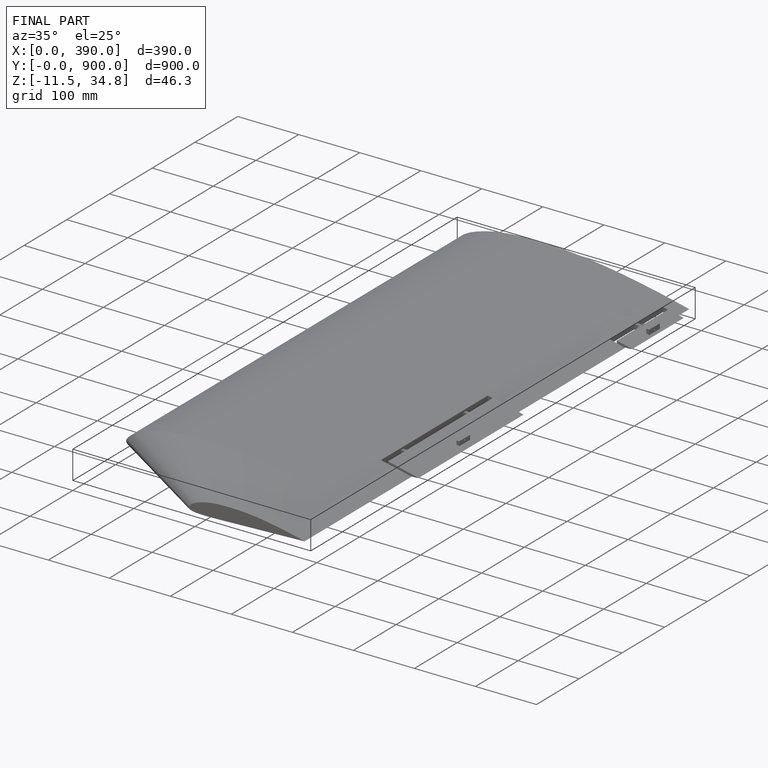
[diagram: finished part — iso view with bounding-box wireframe]
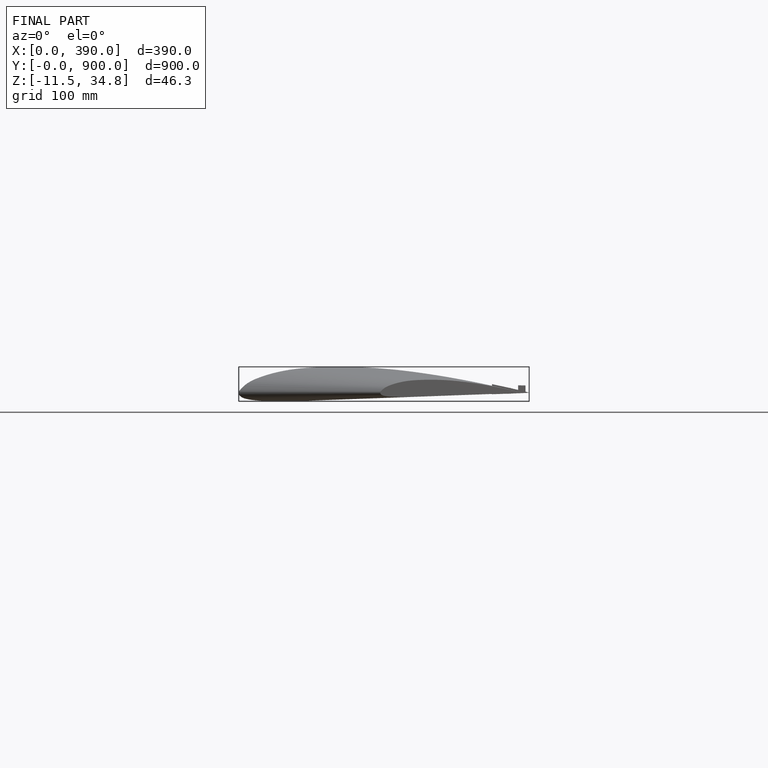
[diagram: finished part — front view with bounding-box wireframe]
